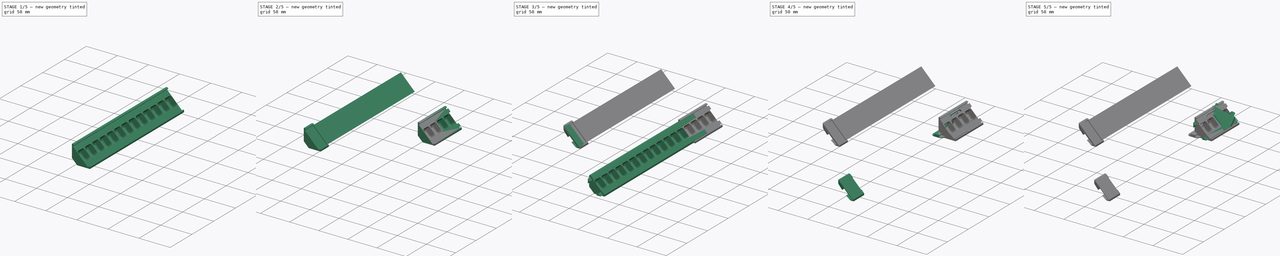
[diagram: build sequence overview — one tinted view per stage of 5, left to right]
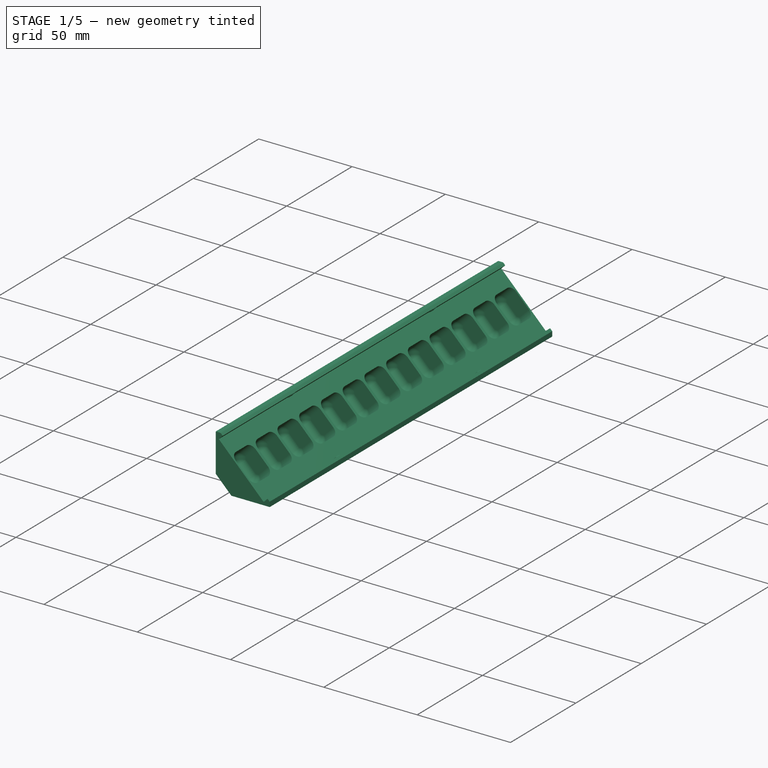
[diagram: stage 1 of 5 — iso view after this stage's code; geometry added in this stage tinted green]
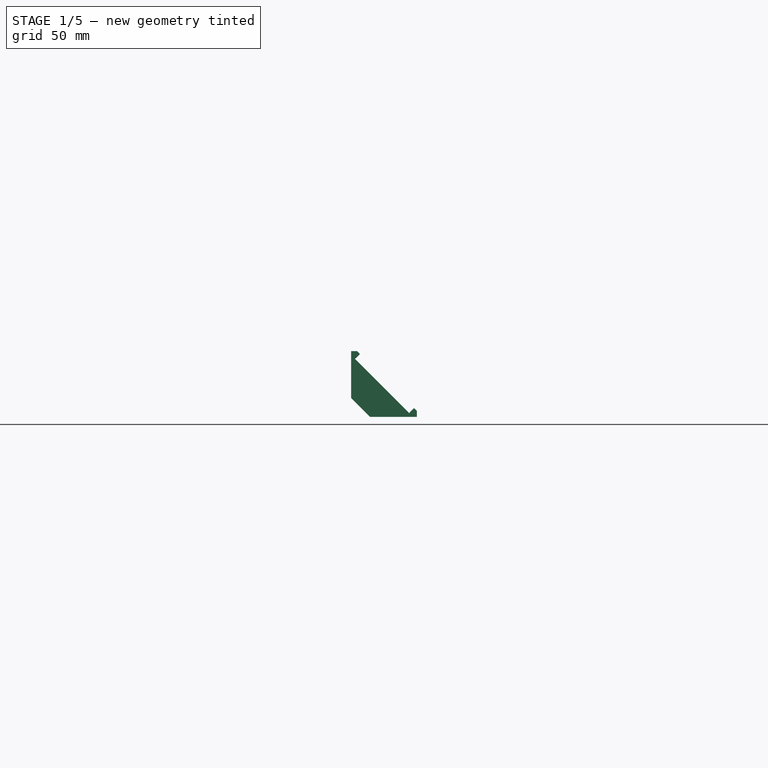
[diagram: stage 1 of 5 — front view after this stage's code; geometry added in this stage tinted green]
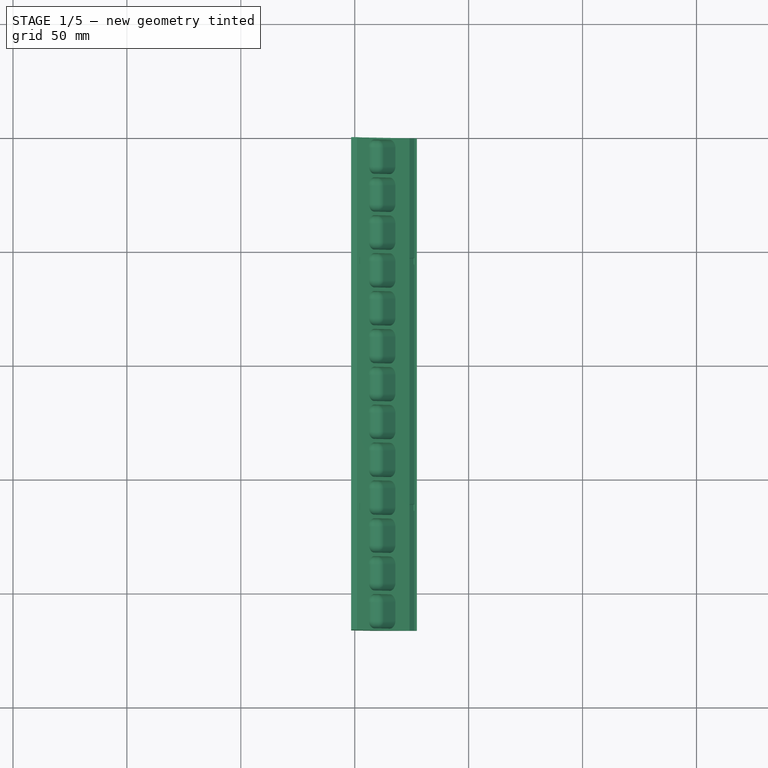
[diagram: stage 1 of 5 — top view after this stage's code; geometry added in this stage tinted green]
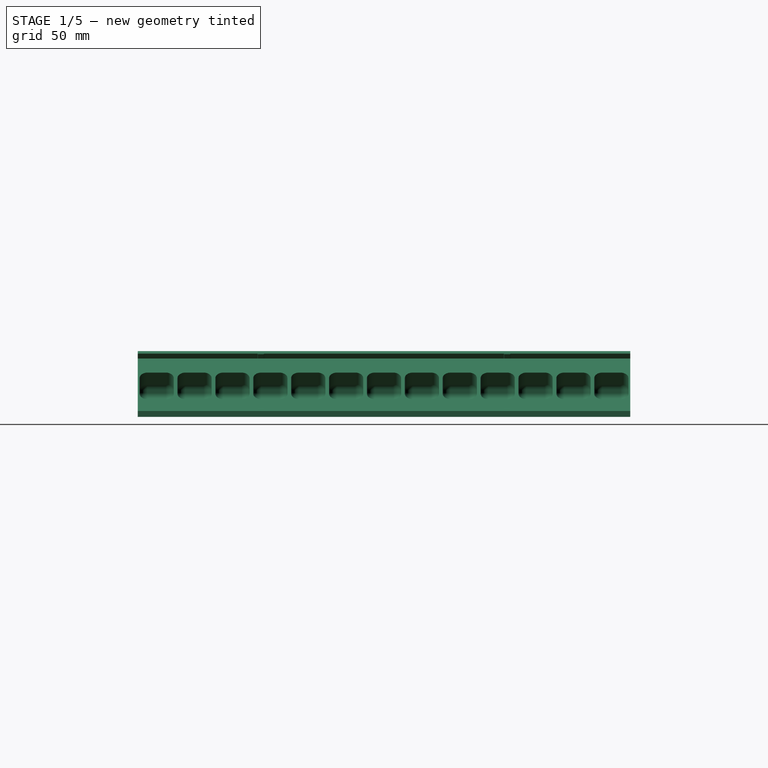
[diagram: stage 1 of 5 — right view after this stage's code; geometry added in this stage tinted green]
FCSTD DOCUMENT  (FreeCAD 1.1R20260325 (Git shallow))
Label: led-strip-mount-and-bracket-v3
License: All rights reserved
objects: Sketcher::SketchObject×45, PartDesign::Pad×23, PartDesign::Pocket×22, PartDesign::Chamfer×17, PartDesign::LinearPattern×13, App::Point×11, PartDesign::Body×11, PartDesign::Fillet×6, PartDesign::SubShapeBinder×4, PartDesign::Mirrored×4, Spreadsheet::Sheet×3, PartDesign::Plane×2, PartDesign::FeatureBase×2, PartDesign::MultiTransform×1
note: 351 computed .brp shape members not serialized (recipe doc carries the construction recipe); baked Part::Feature solids carry a one-line shape summary decoded from their .brp

FEATURE [PartDesign::Body] Body008  label="endcap-left-standard-clone"
  AllowCompound = false
  Group = -> [Clone]
  Origin = -> Origin016
  Placement = pos=(50,216.19,-50) rot=(0,0,1;0rad)
  Tip = -> Clone
  expr: .Placement.Base.y = 249.45 mm - <<globals001>>.led_count * <<globals001>>.led_cell_width
FEATURE [App::Point] Origin019
  Role = Origin
FEATURE [Sketcher::SketchObject] Sketch074
  ArcFitTolerance = 1e-06
  AttachmentSupport = -> [XZ_Plane009]
  ExternalTypes = [0]
  FullyConstrained = true
  MakeInternals = false
  MapMode = 5
  Placement = pos=(0,0,0) rot=(1,0,0;1.5708rad)
  _ExternalGeoVersion = 0
  sketch-geometry (21):
    g0: LineSegment StartX=0 StartY=11.6672 StartZ=0 EndX=0 EndY=7.42462 EndZ=0
    g1: GeomPoint [constr] X=0 Y=0 Z=0
    g2: LineSegment StartX=7.42462 StartY=0 StartZ=0 EndX=11.6673 EndY=0 EndZ=0
    g3: LineSegment StartX=-1.6 StartY=27.2943 StartZ=0 EndX=-1.6 EndY=6.76188 EndZ=0
    g4: LineSegment StartX=6.76188 StartY=-1.6 StartZ=0 EndX=27.2943 EndY=-1.6 EndZ=0
    g5: LineSegment StartX=0 StartY=7.42462 StartZ=0 EndX=7.42462 EndY=0 EndZ=0
    g6: LineSegment [constr] StartX=0 StartY=24.0416 StartZ=0 EndX=24.0416 EndY=0 EndZ=0
    g7: LineSegment [constr] StartX=0 StartY=24.0416 StartZ=0 EndX=2.12132 EndY=26.1629 EndZ=0
    g8: LineSegment [constr] StartX=2.12132 StartY=26.1629 StartZ=0 EndX=26.163 EndY=2.12132 EndZ=0
    g9: LineSegment [constr] StartX=26.163 StartY=2.12132 StartZ=0 EndX=24.0416 EndY=0 EndZ=0
    g10: LineSegment StartX=2.12132 StartY=26.1629 StartZ=0 EndX=0.989949 EndY=27.2943 EndZ=0
    g11: LineSegment StartX=0.989949 StartY=27.2943 StartZ=0 EndX=-1.6 EndY=27.2943 EndZ=0
    g12: LineSegment StartX=0 StartY=24.0416 StartZ=0 EndX=2.12132 EndY=26.1629 EndZ=0
    g13: LineSegment StartX=0 StartY=11.6672 StartZ=0 EndX=6.18719 EndY=17.8544 EndZ=0
    g14: LineSegment StartX=0 StartY=24.0416 StartZ=0 EndX=6.18719 EndY=17.8544 EndZ=0
    g15: LineSegment StartX=11.6673 StartY=0 StartZ=0 EndX=17.8545 EndY=6.18718 EndZ=0
    g16: LineSegment StartX=17.8545 StartY=6.18718 StartZ=0 EndX=24.0416 EndY=0 EndZ=0
    g17: LineSegment StartX=24.0416 StartY=0 StartZ=0 EndX=26.163 EndY=2.12132 EndZ=0
    g18: LineSegment StartX=26.163 StartY=2.12132 StartZ=0 EndX=27.2943 EndY=0.98995 EndZ=0
    g19: LineSegment StartX=27.2943 StartY=0.98995 StartZ=0 EndX=27.2943 EndY=-1.6 EndZ=0
    g20: LineSegment StartX=-1.6 StartY=6.76188 StartZ=0 EndX=6.76188 EndY=-1.6 EndZ=0
  constraints (57):
    c: Vertical(g0)
    c: Coincident(g1,g-1)
    c: Horizontal(g2)
    c: Vertical(g3)
    c: Horizontal(g4)
    c: Distance(g3,g0) = 1.6
    c: Distance(g4,g2) = 1.6
    c: Coincident(g0,g5)
    c: Coincident(g2,g5)
    c: Angle(g5,g-2,g0) = 2.35619
    c: PointOnObject(g2,g-1)
    c: PointOnObject(g0,g-2)
    c: Distance(g5,g5) = 10.5
    c: Parallel(g6,g5)
    c: Coincident(g6,g7)
    c: Coincident(g7,g8)
    c: Coincident(g8,g9)
    c: Coincident(g9,g6)
    c: Distance(g7,g7) = 3
    c: Equal(g7,g9)
    c: Equal(g8,g6)
    c: Angle(g7,g-2,g6) = 0.785398
    c: Coincident(g10,g11)
    c: Horizontal(g11)
    c: Coincident(g3,g11)
    c: Parallel(g10,g8)
    c: Coincident(g12,g10)
    c: Coincident(g10,g7)
    c: Coincident(g13,g0)
    c: PointOnObject(g13,g6)
    c: Coincident(g14,g12)
    c: Coincident(g14,g13)
    c: Perpendicular(g14,g13)
    c: Coincident(g12,g6)
    c: PointOnObject(g6,g-2)
    c: Coincident(g2,g15)
    c: PointOnObject(g15,g6)
    c: Coincident(g15,g16)
    c: PointOnObject(g16,g-1)
    c: Coincident(g16,g17)
    c: Coincident(g17,g8)
    c: Coincident(g17,g18)
    c: Coincident(g18,g19)
    c: Vertical(g19)
    c: Coincident(g19,g4)
    c: Coincident(g6,g16)
    c: Perpendicular(g15,g16)
    c: Parallel(g8,g18)
    c: Distance(g18,g18) = 1.6
    c: Coincident(g20,g3)
    c: Coincident(g20,g4)
    c: Parallel(g5,g20)
    c: Distance(g15,g13) = 16.5
    c: Equal(g14,g16)
    c: Distance(g20,g5) = 1.6
    c: Distance(g17,g12) = 34
    c: Equal(g10,g18)
FEATURE [PartDesign::Pad] Pad021  label="basic-bracket002"
  Direction = (0,-1,2e-16)
  Length = 215.67
  Length2 = 10
  Placement = pos=(0,0,0) rot=(1,0,0;1.5708rad)
  Profile = -> Sketch074
  ReferenceAxis = -> Sketch074 [N_Axis]
  Refine = true
  SideType = 0
  Suppressed = false
  Type = 0
  Type2 = 0
  expr: Length = <<globals-variant>>.led_cell_width * <<globals-variant>>.led_count
FEATURE [Sketcher::SketchObject] Sketch075
  ArcFitTolerance = 1e-06
  ExternalTypes = [0,0]
  FullyConstrained = true
  MakeInternals = false
  MapMode = 5
  Placement = pos=(3.71231,8e-16,3.71231) rot=(0.382683,0,0.92388;3.14159rad)
  _ExternalGeoVersion = 0
  sketch-geometry (8):
    g0: LineSegment StartX=-2.7 StartY=11.015 StartZ=0 EndX=-2.7 EndY=5.615 EndZ=0
    g1: LineSegment StartX=-2.7 StartY=5.615 StartZ=0 EndX=2.7 EndY=5.615 EndZ=0
    g2: LineSegment StartX=2.7 StartY=5.615 StartZ=0 EndX=2.7 EndY=11.015 EndZ=0
    g3: LineSegment StartX=2.7 StartY=11.015 StartZ=0 EndX=-2.7 EndY=11.015 EndZ=0
    g4: LineSegment [constr] StartX=-2.7 StartY=11.015 StartZ=0 EndX=-5.25 EndY=15.83 EndZ=0
    g5: LineSegment [constr] StartX=2.7 StartY=5.615 StartZ=0 EndX=5.25 EndY=0.8 EndZ=0
    g6: LineSegment [constr] StartX=2.7 StartY=11.015 StartZ=0 EndX=5.25 EndY=15.83 EndZ=0
    g7: LineSegment [constr] StartX=-2.7 StartY=5.615 StartZ=0 EndX=-5.25 EndY=0.8 EndZ=0
  constraints (20):
    c: Coincident(g0,g1)
    c: Coincident(g1,g2)
    c: Coincident(g2,g3)
    c: Coincident(g3,g0)
    c: Vertical(g0)
    c: Vertical(g2)
    c: Horizontal(g1)
    c: Horizontal(g3)
    c: DistanceX(g3,g3) = 5.4
    c: Equal(g3,g0)
    c: Coincident(g4,g0)
    c: Coincident(g5,g1)
    c: Coincident(g6,g2)
    c: Coincident(g7,g0)
    c: Equal(g4,g7)
    c: Coincident(g7,g-3)
    c: Coincident(g5,g-4)
    c: Coincident(g4,g-3)
    c: Coincident(g-4,g6)
    c: Equal(g7,g6)
FEATURE [Sketcher::SketchObject] Sketch077
  ArcFitTolerance = 1e-06
  AttachmentOffset = pos=(0,0,215.67) rot=(0,0,1;0rad)
  AttachmentSupport = -> [XZ_Plane009]
  ExternalTypes = [0]
  FullyConstrained = true
  MakeInternals = false
  MapMode = 5
  Placement = pos=(0,-215.67,4.79e-14) rot=(1,0,0;1.5708rad)
  _ExternalGeoVersion = 0
  expr: .AttachmentOffset.Base.z = <<globals-variant>>.led_cell_width * <<globals-variant>>.led_count
  expr: Constraints[14] = <<globals-variant>>.inner_wall_thickness
  expr: Constraints[15] = <<globals-variant>>.inner_wall_thickness
  expr: Constraints[16] = <<globals-variant>>.inner_wall_thickness
  expr: Constraints[17] = <<globals-variant>>.inner_wall_thickness
  expr: Constraints[30] = <<globals-variant>>.gap * 0.55
  expr: Constraints[31] = <<globals-variant>>.gap * 0.55
  expr: Constraints[32] = <<globals-variant>>.gap * 0.55
  expr: Constraints[33] = <<globals-variant>>.gap * 0.55
  expr: Constraints[34] = <<globals-variant>>.gap * 0.55
  expr: Constraints[35] = <<globals-variant>>.gap * 0.55
  sketch-geometry (12):
    g0: LineSegment [constr] StartX=0 StartY=22.1324 StartZ=0 EndX=4.10122 EndY=18.0312 EndZ=0
    g1: LineSegment [constr] StartX=4.10122 StartY=18.0312 StartZ=0 EndX=0 EndY=13.93 EndZ=0
    g2: LineSegment [constr] StartX=0 StartY=13.93 StartZ=0 EndX=0 EndY=22.1324 EndZ=0
    g3: LineSegment [constr] StartX=13.93 StartY=0 StartZ=0 EndX=18.0312 EndY=4.10122 EndZ=0
    g4: LineSegment [constr] StartX=18.0312 StartY=4.10122 StartZ=0 EndX=22.1324 EndY=0 EndZ=0
    g5: LineSegment [constr] StartX=22.1324 StartY=0 StartZ=0 EndX=13.93 EndY=0 EndZ=0
    g6: LineSegment StartX=0.11 StartY=21.8669 StartZ=0 EndX=0.11 EndY=14.1956 EndZ=0
    g7: LineSegment StartX=0.11 StartY=14.1956 StartZ=0 EndX=3.94566 EndY=18.0312 EndZ=0
    g8: LineSegment StartX=3.94566 StartY=18.0312 StartZ=0 EndX=0.11 EndY=21.8669 EndZ=0
    g9: LineSegment StartX=14.1956 StartY=0.11 StartZ=0 EndX=18.0312 EndY=3.94566 EndZ=0
    g10: LineSegment StartX=18.0312 StartY=3.94566 StartZ=0 EndX=21.8669 EndY=0.11 EndZ=0
    g11: LineSegment StartX=21.8669 StartY=0.11 StartZ=0 EndX=14.1956 EndY=0.11 EndZ=0
  constraints (36):
    c: PointOnObject(g0,g-2)
    c: Coincident(g0,g1)
    c: Coincident(g1,g2)
    c: Coincident(g2,g0)
    c: Vertical(g2)
    c: PointOnObject(g3,g-1)
    c: Coincident(g3,g4)
    c: PointOnObject(g4,g-1)
    c: Coincident(g4,g5)
    c: Coincident(g5,g3)
    c: Parallel(g-3,g0)
    c: Parallel(g-4,g1)
    c: Parallel(g3,g-5)
    c: Parallel(g4,g-6)
    c: Distance(g-3,g0) = 1.6
    c: Distance(g-4,g1) = 1.6
    c: Distance(g-5,g3) = 1.6
    c: Distance(g-6,g4) = 1.6
    c: Vertical(g6)
    c: Coincident(g6,g7)
    c: Coincident(g7,g8)
    c: Coincident(g8,g6)
    c: Coincident(g9,g10)
    c: Coincident(g10,g11)
    c: Coincident(g11,g9)
    c: Horizontal(g11)
    c: Parallel(g8,g0)
    c: Parallel(g7,g1)
    c: Parallel(g10,g4)
    c: Parallel(g9,g3)
    c: Distance(g0,g8) = 0.11
    c: Distance(g2,g6) = 0.11
    c: Distance(g1,g7) = 0.11
    c: Distance(g3,g9) = 0.11
    c: Distance(g4,g10) = 0.11
    c: Distance(g5,g11) = 0.11
FEATURE [Sketcher::SketchObject] Sketch078
  ArcFitTolerance = 1e-06
  AttachmentSupport = -> [Pad021]
  ExternalGeometry = -> [Pad021]
  ExternalTypes = [0,0]
  FullyConstrained = true
  MakeInternals = false
  MapMode = 5
  Placement = pos=(12.0208,2.7e-15,12.0208) rot=(0.382683,0,0.92388;3.14159rad)
  _ExternalGeoVersion = 1
  expr: Constraints[20] = <<globals-variant>>.led_cell_width
  sketch-geometry (8):
    g0: LineSegment StartX=8.24998 StartY=0 StartZ=0 EndX=8.24998 EndY=0.8 EndZ=0
    g1: LineSegment StartX=8.24998 StartY=0.8 StartZ=0 EndX=-8.25002 EndY=0.8 EndZ=0
    g2: LineSegment StartX=-8.25002 StartY=0.8 StartZ=0 EndX=-8.25002 EndY=0 EndZ=0
    g3: LineSegment StartX=-8.25002 StartY=0 StartZ=0 EndX=8.24998 EndY=0 EndZ=0
    g4: LineSegment StartX=8.24998 StartY=15.79 StartZ=0 EndX=8.24998 EndY=16.59 EndZ=0
    g5: LineSegment StartX=8.24998 StartY=16.59 StartZ=0 EndX=-8.25002 EndY=16.59 EndZ=0
    g6: LineSegment StartX=-8.25002 StartY=16.59 StartZ=0 EndX=-8.25002 EndY=15.79 EndZ=0
    g7: LineSegment StartX=-8.25002 StartY=15.79 StartZ=0 EndX=8.24998 EndY=15.79 EndZ=0
  constraints (24):
    c: Coincident(g0,g1)
    c: Coincident(g1,g2)
    c: Coincident(g2,g3)
    c: Coincident(g3,g0)
    c: Vertical(g0)
    c: Vertical(g2)
    c: Horizontal(g1)
    c: Horizontal(g3)
    c: DistanceY(g0,g0) = 0.8
    c: Coincident(g4,g5)
    c: Coincident(g5,g6)
    c: Coincident(g6,g7)
    c: Coincident(g7,g4)
    c: Vertical(g4)
    c: Vertical(g6)
    c: Horizontal(g5)
    c: Horizontal(g7)
    c: Equal(g0,g4)
    c: DistanceX(g5,g5) = 16.5
    c: PointOnObject(g0,g-1)
    c: Distance(g3,g5) = 16.59
    c: PointOnObject(g4,g-3)
    c: PointOnObject(g0,g-3)
    c: PointOnObject(g1,g-4)
FEATURE [PartDesign::Pad] Pad022  label="divider-wall002"
  BaseFeature = -> Pad021
  Direction = (0.707106,0,0.707107)
  Length = 1.6
  Length2 = 10
  Placement = pos=(0,0,0) rot=(1,0,0;1.5708rad)
  Profile = -> Sketch078
  ReferenceAxis = -> Sketch078 [N_Axis]
  Refine = true
  Reversed = true
  SideType = 0
  Suppressed = false
  Type = 2
  Type2 = 0
FEATURE [PartDesign::LinearPattern] LinearPattern007  label="wall-repeat002"
  BaseFeature = -> Pad022
  Direction = -> Y_Axis009
  Direction2 = -> Sketch078 [H_Axis]
  Length = 199.08
  Length2 = 100
  Mode = 1
  Mode2 = 0
  Occurrences = 13
  Occurrences2 = 1
  Offset = 16.59
  Offset2 = 100
  Originals = -> [Pad022]
  Placement = pos=(0,0,0) rot=(1,0,0;1.5708rad)
  Refine = true
  Reversed = true
  Reversed2 = false
  SpacingPattern = [16.63]
  SpacingPattern2 = [0]
  Spacings = [-1,-1,-1,-1,-1,-1,-1,-1,-1,-1,-1,-1]
  Suppressed = false
  TransformMode = 0
  expr: Occurrences = <<globals-variant>>.led_count
  expr: Offset = <<globals-variant>>.led_cell_width
FEATURE [PartDesign::Pocket] Pocket023  label="led-enclosure002"
  BaseFeature = -> LinearPattern007
  Direction = (-0.707107,0,-0.707107)
  Length = 5
  Length2 = 5
  Placement = pos=(0,0,0) rot=(1,0,0;1.5708rad)
  Profile = -> Sketch075
  ReferenceAxis = -> Sketch075 [N_Axis]
  Refine = true
  SideType = 0
  Suppressed = false
  Type = 1
  Type2 = 0
FEATURE [PartDesign::LinearPattern] LinearPattern006  label="led-enclosure-linear-pattern002"
  BaseFeature = -> Pocket023
  Direction = -> Y_Axis009
  Direction2 = -> Sketch075 [H_Axis]
  Length = 199.08
  Length2 = 100
  Mode = 1
  Mode2 = 0
  Occurrences = 13
  Occurrences2 = 1
  Offset = 16.59
  Offset2 = 100
  Originals = -> [Pocket023]
  Placement = pos=(0,0,0) rot=(1,0,0;1.5708rad)
  Refine = true
  Reversed = true
  Reversed2 = false
  SpacingPattern = [16.63]
  SpacingPattern2 = [0]
  Spacings = [-1,-1,-1,-1,-1,-1,-1,-1,-1,-1,-1,-1]
  Suppressed = false
  TransformMode = 0
  expr: Occurrences = <<globals-variant>>.led_count
  expr: Offset = <<globals-variant>>.led_cell_width
FEATURE [Sketcher::SketchObject] Sketch076
  ArcFitTolerance = 1e-06
  AttachmentSupport = -> [LinearPattern006]
  ExternalTypes = [0]
  FullyConstrained = true
  MakeInternals = false
  MapMode = 5
  Placement = pos=(0,2e-16,0) rot=(-1,0,0;1.5708rad)
  _ExternalGeoVersion = 0
  expr: Constraints[15] = <<globals-variant>>.inner_wall_thickness
  expr: Constraints[16] = <<globals-variant>>.inner_wall_thickness
  expr: Constraints[17] = <<globals-variant>>.inner_wall_thickness
  expr: Constraints[7] = <<globals-variant>>.inner_wall_thickness
  sketch-geometry (6):
    g0: LineSegment StartX=0 StartY=-13.93 StartZ=0 EndX=4.10122 EndY=-18.0312 EndZ=0
    g1: LineSegment StartX=4.10122 StartY=-18.0312 StartZ=0 EndX=0 EndY=-22.1324 EndZ=0
    g2: LineSegment StartX=0 StartY=-22.1324 StartZ=0 EndX=0 EndY=-13.93 EndZ=0
    g3: LineSegment StartX=13.93 StartY=0 StartZ=0 EndX=18.0312 EndY=-4.10122 EndZ=0
    g4: LineSegment StartX=18.0312 StartY=-4.10122 StartZ=0 EndX=22.1324 EndY=0 EndZ=0
    g5: LineSegment StartX=22.1324 StartY=0 StartZ=0 EndX=13.93 EndY=0 EndZ=0
  constraints (18):
    c: PointOnObject(g0,g-2)
    c: Coincident(g0,g1)
    c: PointOnObject(g1,g-2)
    c: Coincident(g1,g2)
    c: Coincident(g2,g0)
    c: Parallel(g-4,g0)
    c: Parallel(g1,g-3)
    c: Distance(g-3,g1) = 1.6
    c: PointOnObject(g3,g-1)
    c: Coincident(g3,g4)
    c: PointOnObject(g4,g-1)
    c: Coincident(g4,g5)
    c: Coincident(g5,g3)
    c: Parallel(g3,g-7)
    c: Parallel(g4,g-6)
    c: Distance(g3,g-7) = 1.6
    c: Distance(g-6,g4) = 1.6
    c: Distance(g0,g-4) = 1.6
FEATURE [PartDesign::Pocket] Pocket024  label="mating-hole002"
  BaseFeature = -> LinearPattern006
  Direction = (0,-1,-2e-16)
  Length = 7.5
  Length2 = 5
  Placement = pos=(0,0,0) rot=(1,0,0;1.5708rad)
  Profile = -> Sketch076
  ReferenceAxis = -> Sketch076 [N_Axis]
  Refine = true
  SideType = 0
  Suppressed = false
  Type = 0
  Type2 = 0
FEATURE [PartDesign::Pad] Pad023  label="mating-pin005"
  BaseFeature = -> Pocket024
  Direction = (0,-1,2e-16)
  Length = 6
  Length2 = 10
  Placement = pos=(0,0,0) rot=(1,0,0;1.5708rad)
  Profile = -> Sketch077
  ReferenceAxis = -> Sketch077 [N_Axis]
  Refine = true
  SideType = 0
  Suppressed = false
  Type = 0
  Type2 = 0
FEATURE [PartDesign::Chamfer] Chamfer019  label="mating-pin-chamfer005"
  Angle = 45
  Base = -> Pad023 [Edge455,Edge457,Edge458,Edge452,Edge449,Edge451]
  BaseFeature = -> Pad023
  ChamferType = 0
  FlipDirection = false
  Placement = pos=(0,0,0) rot=(1,0,0;1.5708rad)
  Refine = true
  Size = 0.6
  Size2 = 1
  SupportTransform = false
  Suppressed = false
  UseAllEdges = false
FEATURE [PartDesign::Chamfer] Chamfer020  label="mating-hole-chamfer002"
  Angle = 45
  Base = -> Chamfer019 [Edge286,Edge285,Edge287,Edge288,Edge289,Edge290]
  BaseFeature = -> Chamfer019
  ChamferType = 0
  FlipDirection = false
  Placement = pos=(0,0,0) rot=(1,0,0;1.5708rad)
  Refine = true
  Size = 1
  Size2 = 1
  SupportTransform = false
  Suppressed = false
  UseAllEdges = false
FEATURE [Sketcher::SketchObject] Sketch079
  ArcFitTolerance = 1e-06
  AttachmentSupport = -> [Origin018]
  ExternalTypes = [0,0,0,0]
  FullyConstrained = true
  MakeInternals = false
  MapMode = 5
  Placement = pos=(0,0,0) rot=(1,0,0;1.5708rad)
  _ExternalGeoVersion = 1
  sketch-geometry (6):
    g0: LineSegment StartX=-1.6 StartY=10.0673 StartZ=0 EndX=-1.6 EndY=9.02462 EndZ=0
    g1: LineSegment StartX=-1.6 StartY=9.02462 StartZ=0 EndX=-2.12132 EndY=9.54594 EndZ=0
    g2: LineSegment StartX=-2.12132 StartY=9.54594 StartZ=0 EndX=-1.6 EndY=10.0673 EndZ=0
    g3: LineSegment StartX=9.02462 StartY=-1.6 StartZ=0 EndX=10.0673 EndY=-1.6 EndZ=0
    g4: LineSegment StartX=10.0673 StartY=-1.6 StartZ=0 EndX=9.54594 EndY=-2.12132 EndZ=0
    g5: LineSegment StartX=9.54594 StartY=-2.12132 StartZ=0 EndX=9.02462 EndY=-1.6 EndZ=0
  constraints (12):
    c: Coincident(g-3,g0)
    c: Coincident(g0,g-4)
    c: Coincident(g0,g1)
    c: Coincident(g1,g-4)
    c: Coincident(g1,g2)
    c: Coincident(g2,g0)
    c: Coincident(g-5,g3)
    c: Coincident(g3,g-6)
    c: Coincident(g3,g4)
    c: Coincident(g4,g-6)
    c: Coincident(g4,g5)
    c: Coincident(g5,g3)
FEATURE [PartDesign::Pocket] Pocket025
  BaseFeature = -> Chamfer020
  Direction = (0,1,-2e-16)
  Length = 81
  Length2 = 5
  Placement = pos=(0,0,0) rot=(1,0,0;1.5708rad)
  Profile = -> Sketch079
  ReferenceAxis = -> Sketch079 [N_Axis]
  Refine = true
  Reversed = true
  SideType = 0
  Suppressed = false
  Type = 1
  Type2 = 0
FEATURE [Spreadsheet::Sheet] Spreadsheet002  label="globals-variant"
  cells = A1='Inner Wall Thickness; B1(inner_wall_thickness)==1.6 mm; A2='Outer Wall Thickness; B2(outer_wall_thickness)==3.2 mm; A3='Gap; B3(gap)==0.2 mm; A4='LED Cell Width; B4(led_cell_width)==16.59 mm; A5='LED Count; B5(led_count)=13; A6='Saddle Thickness; B6(saddle_thickness)==1.2 mm; A7='Has Mating Pin; B7(has_mating_pin)=0
FEATURE [PartDesign::Fillet] Fillet004
  Base = -> Pocket025 [Edge414,Edge415,Edge418,Edge417,Edge467,Edge410,Edge411,Edge412,Edge407,Edge409,Edge413,Edge468,Edge416,Edge408]
  BaseFeature = -> Pocket025
  Placement = pos=(0,0,0) rot=(1,0,0;1.5708rad)
  Radius = 3.5
  Refine = true
  SupportTransform = false
  Suppressed = false
  UseAllEdges = false
FEATURE [PartDesign::LinearPattern] LinearPattern008
  BaseFeature = -> Fillet004
  Direction = -> Y_Axis009
  Direction2 = -> X_Axis009
  Length = 199.08
  Length2 = 100
  Mode = 0
  Mode2 = 0
  Occurrences = 13
  Occurrences2 = 1
  Offset = 16.59
  Offset2 = 100
  Originals = -> [Fillet004]
  Placement = pos=(0,0,0) rot=(1,0,0;1.5708rad)
  Refine = true
  Reversed = true
  Reversed2 = false
  SpacingPattern = [0]
  SpacingPattern2 = [0]
  Spacings = [-1,-1,-1,-1,-1,-1,-1,-1,-1,-1,-1,-1]
  Suppressed = false
  TransformMode = 0
  expr: Length = <<globals-variant>>.led_cell_width * (<<globals-variant>>.led_count - 1)
  expr: Occurrences = <<globals-variant>>.led_count
FEATURE [Sketcher::SketchObject] Sketch081
  ArcFitTolerance = 1e-06
  ExternalTypes = [0,0]
  FullyConstrained = true
  MakeInternals = false
  MapMode = 5
  Placement = pos=(-1.6,0,0) rot=(0.707107,0,-0.707107;3.14159rad)
  _ExternalGeoVersion = 1
  expr: Constraints[2] = <<globals-variant>>.led_cell_width * 2
  sketch-geometry (1):
    g0: Circle CenterX=-17.7 CenterY=33.18 CenterZ=0 NormalX=0 NormalY=0 NormalZ=1 AngleXU=0 Radius=2.85
  constraints (3):
    c: Diameter(g0) = 5.7
    c: Distance(g0,g-2) = 17.7
    c: Distance(g0,g-1) = 33.18
FEATURE [PartDesign::Pocket] Pocket027
  BaseFeature = -> LinearPattern008
  Direction = (1,1e-16,2e-16)
  Length = 4
  Length2 = 5
  Placement = pos=(0,0,0) rot=(1,0,0;1.5708rad)
  Profile = -> Sketch081
  ReferenceAxis = -> Sketch081 [N_Axis]
  Refine = true
  SideType = 0
  Suppressed = false
  Type = 0
  Type2 = 0
FEATURE [PartDesign::Body] Body012  label="endcap-left-variant-clone"
  AllowCompound = false
  Group = -> [Clone001]
  Origin = -> Origin024
  Placement = pos=(-46,182.41,46) rot=(0,0,1;0rad)
  Tip = -> Clone001
FEATURE [Sketcher::SketchObject] Sketch091
  ArcFitTolerance = 1e-06
  AttachmentSupport = -> [Pocket027]
  ExternalGeometry = -> [Pocket027]
  ExternalTypes = [0,0]
  FullyConstrained = true
  MakeInternals = false
  MapMode = 5
  Placement = pos=(-12.0208,2.7e-15,12.0208) rot=(0.92388,0,0.382684;3.14159rad)
  _ExternalGeoVersion = 1
  expr: Constraints[17] = <<globals-variant>>.led_cell_width * <<globals-variant>>.led_count * 3 / 4
  expr: Constraints[35] = <<globals-variant>>.led_cell_width * <<globals-variant>>.led_count / 4
  sketch-geometry (14):
    g0: LineSegment StartX=17 StartY=163.252 StartZ=0 EndX=17 EndY=160.252 EndZ=0
    g1: LineSegment StartX=17 StartY=160.252 StartZ=0 EndX=20 EndY=160.252 EndZ=0
    g2: LineSegment StartX=20 StartY=160.252 StartZ=0 EndX=20 EndY=163.252 EndZ=0
    g3: LineSegment StartX=20 StartY=163.252 StartZ=0 EndX=17 EndY=163.252 EndZ=0
    g4: LineSegment [constr] StartX=17 StartY=163.252 StartZ=0 EndX=18.5 EndY=161.752 EndZ=0
    g5: LineSegment [constr] StartX=20 StartY=163.252 StartZ=0 EndX=18.5 EndY=161.752 EndZ=0
    g6: LineSegment [constr] StartX=17 StartY=160.252 StartZ=0 EndX=18.5 EndY=161.752 EndZ=0
    g7: LineSegment StartX=17 StartY=55.4175 StartZ=0 EndX=17 EndY=52.4175 EndZ=0
    g8: LineSegment StartX=17 StartY=52.4175 StartZ=0 EndX=20 EndY=52.4175 EndZ=0
    g9: LineSegment StartX=20 StartY=52.4175 StartZ=0 EndX=20 EndY=55.4175 EndZ=0
    g10: LineSegment StartX=20 StartY=55.4175 StartZ=0 EndX=17 EndY=55.4175 EndZ=0
    g11: LineSegment [constr] StartX=17 StartY=55.4175 StartZ=0 EndX=18.5 EndY=53.9175 EndZ=0
    g12: LineSegment [constr] StartX=20 StartY=55.4175 StartZ=0 EndX=18.5 EndY=53.9175 EndZ=0
    g13: LineSegment [constr] StartX=18.5 StartY=53.9175 StartZ=0 EndX=17 EndY=52.4175 EndZ=0
  constraints (38):
    c: Coincident(g0,g1)
    c: Coincident(g1,g2)
    c: Coincident(g2,g3)
    c: Coincident(g3,g0)
    c: Vertical(g0)
    c: Vertical(g2)
    c: Horizontal(g1)
    c: Horizontal(g3)
    c: PointOnObject(g0,g-3)
    c: PointOnObject(g2,g-4)
    c: Coincident(g4,g0)
    c: Coincident(g5,g2)
    c: Coincident(g5,g4)
    c: Coincident(g6,g0)
    c: Coincident(g6,g4)
    c: Equal(g4,g5)
    c: Equal(g4,g6)
    c: Distance(g4,g-1) = 161.752
    c: Coincident(g7,g8)
    c: Coincident(g8,g9)
    c: Coincident(g9,g10)
    c: Coincident(g10,g7)
    c: Vertical(g7)
    c: Vertical(g9)
    c: Horizontal(g8)
    c: Horizontal(g10)
    c: PointOnObject(g7,g-3)
    c: PointOnObject(g8,g-4)
    c: Coincident(g11,g7)
    c: Coincident(g12,g9)
    c: Coincident(g12,g11)
    c: Coincident(g13,g11)
    c: Coincident(g13,g7)
    c: Equal(g11,g12)
    c: Equal(g11,g13)
    c: Distance(g11,g-1) = 53.9175
    c: DistanceY(g9,g9) = 3
    c: Equal(g9,g2)
FEATURE [PartDesign::Pad] Pad029
  BaseFeature = -> Pocket027
  Direction = (0.707107,0,-0.707107)
  Length = 0.25
  Length2 = 10
  Placement = pos=(0,0,0) rot=(1,0,0;1.5708rad)
  Profile = -> Sketch091
  ReferenceAxis = -> Sketch091 [N_Axis]
  Refine = true
  SideType = 0
  Suppressed = false
  TaperAngle = -40
  Type = 0
  Type2 = 0
FEATURE [Sketcher::SketchObject] Sketch092
  ArcFitTolerance = 1e-06
  AttachmentSupport = -> [Pad029]
  ExternalGeometry = -> [Pad029]
  ExternalTypes = [0,0]
  FullyConstrained = true
  MakeInternals = false
  MapMode = 5
  Placement = pos=(12.0208,-2.7e-15,-12.0208) rot=(-0.382684,0,0.92388;3.14159rad)
  _ExternalGeoVersion = 1
  expr: Constraints[17] = <<globals-variant>>.led_cell_width * <<globals-variant>>.led_count * 3 / 4
  expr: Constraints[37] = <<globals-variant>>.led_cell_width * <<globals-variant>>.led_count / 4
  sketch-geometry (14):
    g0: LineSegment StartX=-20 StartY=163.252 StartZ=0 EndX=-20 EndY=160.252 EndZ=0
    g1: LineSegment StartX=-20 StartY=160.252 StartZ=0 EndX=-17 EndY=160.252 EndZ=0
    g2: LineSegment StartX=-17 StartY=160.252 StartZ=0 EndX=-17 EndY=163.252 EndZ=0
    g3: LineSegment StartX=-17 StartY=163.252 StartZ=0 EndX=-20 EndY=163.252 EndZ=0
    g4: LineSegment [constr] StartX=-20 StartY=163.252 StartZ=0 EndX=-18.5 EndY=161.752 EndZ=0
    g5: LineSegment [constr] StartX=-17 StartY=163.252 StartZ=0 EndX=-18.5 EndY=161.752 EndZ=0
    g6: LineSegment [constr] StartX=-18.5 StartY=161.752 StartZ=0 EndX=-20 EndY=160.252 EndZ=0
    g7: LineSegment StartX=-20 StartY=55.4175 StartZ=0 EndX=-20 EndY=52.4175 EndZ=0
    g8: LineSegment StartX=-20 StartY=52.4175 StartZ=0 EndX=-17 EndY=52.4175 EndZ=0
    g9: LineSegment StartX=-17 StartY=52.4175 StartZ=0 EndX=-17 EndY=55.4175 EndZ=0
    g10: LineSegment StartX=-17 StartY=55.4175 StartZ=0 EndX=-20 EndY=55.4175 EndZ=0
    g11: LineSegment [constr] StartX=-17 StartY=55.4175 StartZ=0 EndX=-18.5 EndY=53.9175 EndZ=0
    g12: LineSegment [constr] StartX=-20 StartY=55.4175 StartZ=0 EndX=-18.5 EndY=53.9175 EndZ=0
    g13: LineSegment [constr] StartX=-18.5 StartY=53.9175 StartZ=0 EndX=-20 EndY=52.4175 EndZ=0
  constraints (38):
    c: Coincident(g0,g1)
    c: Coincident(g1,g2)
    c: Coincident(g2,g3)
    c: Coincident(g3,g0)
    c: Vertical(g0)
    c: Vertical(g2)
    c: Horizontal(g1)
    c: Horizontal(g3)
    c: PointOnObject(g0,g-4)
    c: PointOnObject(g1,g-3)
    c: Coincident(g4,g0)
    c: Coincident(g5,g2)
    c: Coincident(g5,g4)
    c: Coincident(g6,g4)
    c: Coincident(g6,g0)
    c: Equal(g4,g5)
    c: Equal(g4,g6)
    c: Distance(g4,g-1) = 161.752
    c: DistanceY(g0,g0) = 3
    c: Coincident(g7,g8)
    c: Coincident(g8,g9)
    c: Coincident(g9,g10)
    c: Coincident(g10,g7)
    c: Vertical(g7)
    c: Vertical(g9)
    c: Horizontal(g8)
    c: Horizontal(g10)
    c: Distance(g8,g10) = 3
    c: PointOnObject(g7,g-4)
    c: PointOnObject(g8,g-3)
    c: Coincident(g11,g9)
    c: Coincident(g12,g7)
    c: Coincident(g12,g11)
    c: Coincident(g13,g11)
    c: Coincident(g13,g7)
    c: Equal(g12,g11)
    c: Equal(g12,g13)
    c: Distance(g11,g-1) = 53.9175
FEATURE [PartDesign::Pad] Pad030
  BaseFeature = -> Pad029
  Direction = (-0.707107,0,0.707107)
  Length = 0.25
  Length2 = 10
  Placement = pos=(0,0,0) rot=(1,0,0;1.5708rad)
  Profile = -> Sketch092
  ReferenceAxis = -> Sketch092 [N_Axis]
  Refine = true
  SideType = 0
  Suppressed = false
  TaperAngle = -40
  Type = 0
  Type2 = 0
FEATURE [PartDesign::Body] Body013  label="diffuser"
  AllowCompound = false
  Group = -> [Binder004,Sketch094,Pad031]
  Origin = -> Origin026
  Tip = -> Pad031
FEATURE [Sketcher::SketchObject] Sketch095
  ArcFitTolerance = 1e-06
  AttachmentSupport = -> [Pad030]
  ExternalGeometry = -> [Pad030]
  ExternalTypes = [0]
  FullyConstrained = true
  MakeInternals = false
  MapMode = 5
  Placement = pos=(12.0208,2.7e-15,12.0208) rot=(0.382683,0,0.92388;3.14159rad)
  _ExternalGeoVersion = 1
  expr: Constraints[13] = 10 mm * <<globals-variant>>.has_mating_pin
  sketch-geometry (5):
    g0: LineSegment StartX=-17 StartY=215.67 StartZ=0 EndX=17 EndY=215.67 EndZ=0
    g1: LineSegment StartX=17 StartY=215.67 StartZ=0 EndX=17 EndY=225.67 EndZ=0
    g2: LineSegment StartX=17 StartY=225.67 StartZ=0 EndX=-17 EndY=225.67 EndZ=0
    g3: LineSegment StartX=-17 StartY=225.67 StartZ=0 EndX=-17 EndY=215.67 EndZ=0
    g4: LineSegment [constr] StartX=-17 StartY=215.67 StartZ=0 EndX=-17 EndY=215.67 EndZ=0
  constraints (14):
    c: Coincident(g0,g1)
    c: Coincident(g1,g2)
    c: Coincident(g2,g3)
    c: Coincident(g3,g0)
    c: Horizontal(g2)
    c: Vertical(g1)
    c: Vertical(g3)
    c: DistanceY(g3,g3) = 10
    c: Horizontal(g0)
    c: Vertical(g-3,g0)
    c: Vertical(g-3,g0)
    c: Coincident(g4,g0)
    c: Coincident(g4,g-3)
    c: DistanceY(g4,g4) = 0
FEATURE [PartDesign::Pocket] Pocket033
  BaseFeature = -> Pad030
  Direction = (-0.707106,0,-0.707107)
  Length = 5
  Length2 = 5
  Placement = pos=(0,0,0) rot=(1,0,0;1.5708rad)
  Profile = -> Sketch095
  ReferenceAxis = -> Sketch095 [N_Axis]
  Refine = true
  SideType = 0
  Suppressed = false
  Type = 1
  Type2 = 0
FEATURE [PartDesign::LinearPattern] LinearPattern012
  BaseFeature = -> Pocket033
  Direction = -> Y_Axis009
  Direction2 = -> Sketch081 [V_Axis]
  Length = 33.18
  Length2 = 100
  Mode = 1
  Mode2 = 0
  Occurrences = 6
  Occurrences2 = 1
  Offset = 33.18
  Offset2 = 100
  Placement = pos=(0,0,0) rot=(1,0,0;1.5708rad)
  Refine = true
  Reversed = true
  Reversed2 = false
  SpacingPattern = [33.26]
  SpacingPattern2 = [0]
  Spacings = [-1,-1,-1,-1,-1]
  Suppressed = false
  TransformMode = 0
  expr: Length = <<globals-variant>>.led_cell_width * 2
  expr: Occurrences = floor(<<globals-variant>>.led_count / 2)
  expr: Offset = <<globals-variant>>.led_cell_width * 2
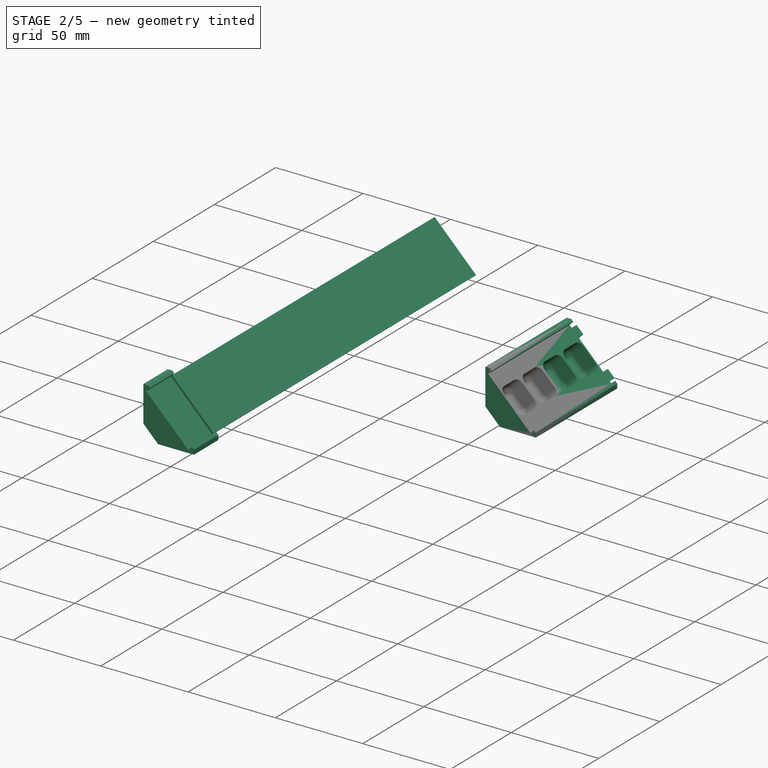
[diagram: stage 2 of 5 — iso view after this stage's code; geometry added in this stage tinted green]
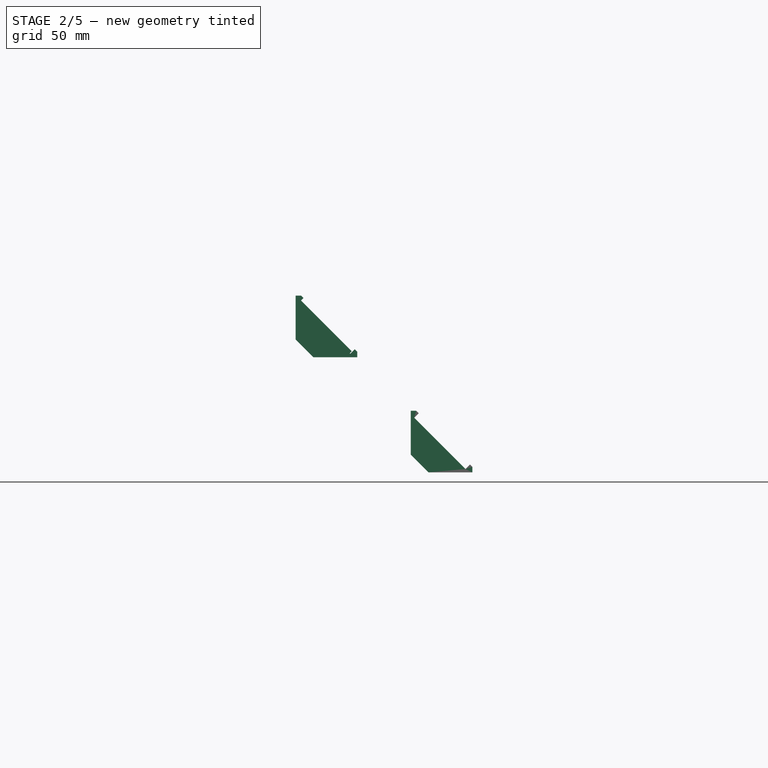
[diagram: stage 2 of 5 — front view after this stage's code; geometry added in this stage tinted green]
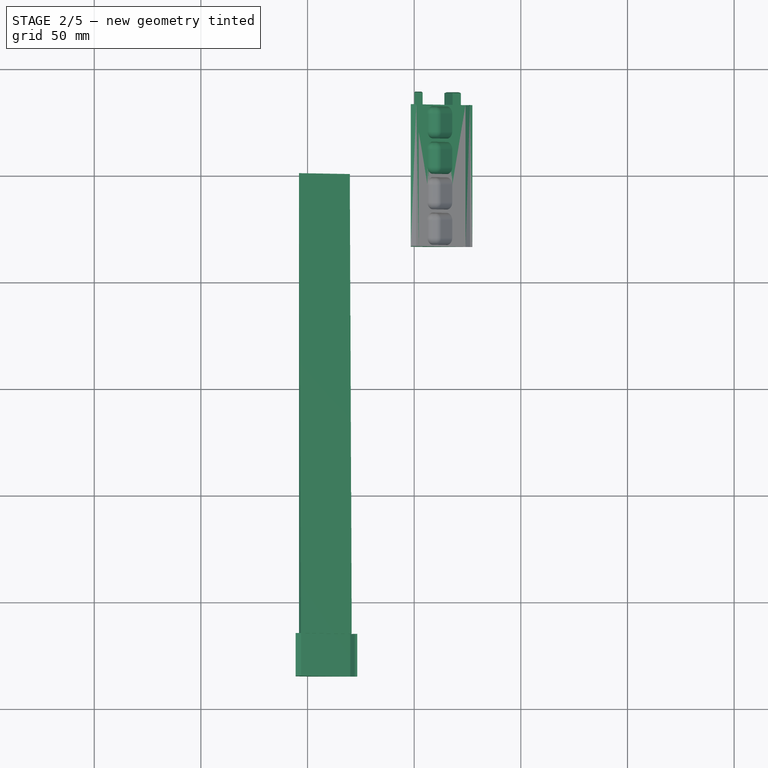
[diagram: stage 2 of 5 — top view after this stage's code; geometry added in this stage tinted green]
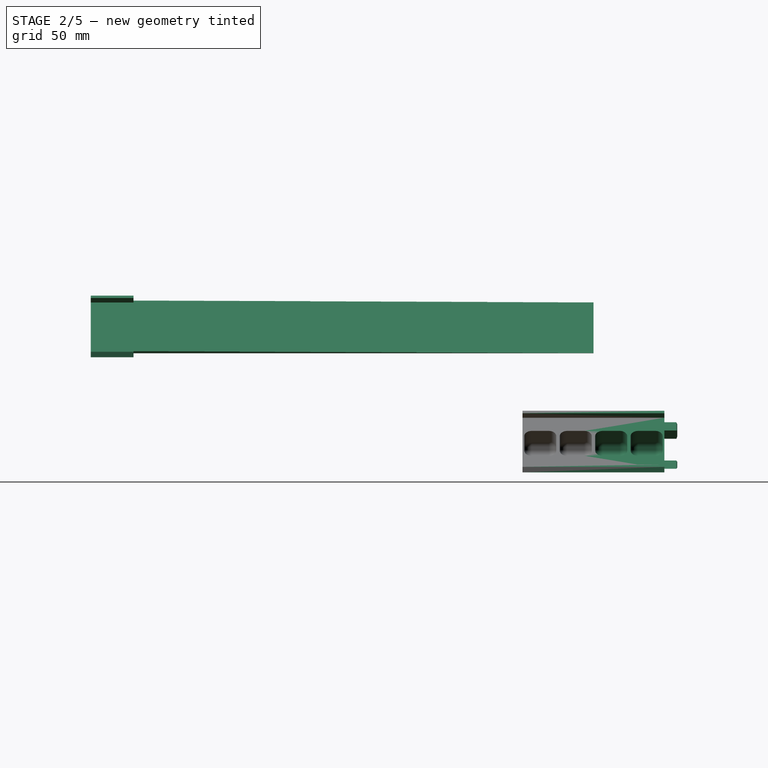
[diagram: stage 2 of 5 — right view after this stage's code; geometry added in this stage tinted green]
FEATURE [App::Point] Origin021  label="Origin024"
  Role = Origin
FEATURE [PartDesign::SubShapeBinder] Binder003
  BindCopyOnChange = 0
  BindMode = 0
  ClaimChildren = false
  Context = -> Body010 [Binder003.]
  Fuse = false
  MakeFace = true
  OffsetFill = false
  OffsetIntersection = false
  OffsetJoinType = 0
  OffsetOpenResult = false
  PartialLoad = false
  Refine = true
  Relative = true
  Support = -> [Body009]
  _Version = 2
FEATURE [Sketcher::SketchObject] Sketch082
  ArcFitTolerance = 1e-06
  AttachmentSupport = -> [Binder003]
  ExternalGeometry = -> [Binder003]
  ExternalTypes = [0,0,0,0,0]
  FullyConstrained = true
  MakeInternals = false
  MapMode = 5
  Placement = pos=(0,-215.67,-4.79e-14) rot=(1,0,0;1.5708rad)
  _ExternalGeoVersion = 1
  sketch-geometry (10):
    g0: LineSegment StartX=-29.9584 StartY=54 StartZ=0 EndX=-27.837 EndY=56.1213 EndZ=0
    g1: LineSegment StartX=-27.837 StartY=56.1213 StartZ=0 EndX=-26.7057 EndY=54.99 EndZ=0
    g2: LineSegment StartX=-26.7057 StartY=54.99 StartZ=0 EndX=-26.7057 EndY=52.4 EndZ=0
    g3: LineSegment StartX=-26.7057 StartY=52.4 StartZ=0 EndX=-47.2381 EndY=52.4 EndZ=0
    g4: LineSegment StartX=-47.2381 StartY=52.4 StartZ=0 EndX=-55.6 EndY=60.7619 EndZ=0
    g5: LineSegment StartX=-55.6 StartY=60.7619 StartZ=0 EndX=-55.6 EndY=81.2943 EndZ=0
    g6: LineSegment StartX=-55.6 StartY=81.2943 StartZ=0 EndX=-53.0101 EndY=81.2943 EndZ=0
    g7: LineSegment StartX=-53.0101 StartY=81.2943 StartZ=0 EndX=-51.8787 EndY=80.1629 EndZ=0
    g8: LineSegment StartX=-51.8787 StartY=80.1629 StartZ=0 EndX=-54 EndY=78.0416 EndZ=0
    g9: LineSegment StartX=-54 StartY=78.0416 StartZ=0 EndX=-29.9584 EndY=54 EndZ=0
  constraints (20):
    c: Coincident(g-3,g0)
    c: Coincident(g0,g-7)
    c: Coincident(g0,g1)
    c: Coincident(g1,g-7)
    c: Coincident(g1,g2)
    c: Coincident(g2,g-6)
    c: Coincident(g2,g3)
    c: Coincident(g3,g-6)
    c: Coincident(g3,g4)
    c: Coincident(g4,g-5)
    c: Coincident(g4,g5)
    c: Coincident(g5,g-5)
    c: Coincident(g5,g6)
    c: Coincident(g6,g-4)
    c: Coincident(g6,g7)
    c: Coincident(g7,g-4)
    c: Coincident(g7,g8)
    c: Coincident(g8,g-3)
    c: Coincident(g8,g9)
    c: Coincident(g9,g0)
FEATURE [PartDesign::Pad] Pad024
  Direction = (0,-1,2e-16)
  Length = 20
  Length2 = 10
  Profile = -> Sketch082
  ReferenceAxis = -> Sketch082 [N_Axis]
  Refine = true
  SideType = 0
  Suppressed = false
  Type = 0
  Type2 = 0
FEATURE [PartDesign::Body] Body010  label="endcap-left-variant"
  AllowCompound = false
  Group = -> [Binder003,Sketch082,Pad024,Sketch083,Pad025,Chamfer021,Sketch084,Pocket028,Chamfer022,Chamfer023]
  Origin = -> Origin020
  Tip = -> Chamfer023
FEATURE [App::Point] Origin023
  Role = Origin
FEATURE [Sketcher::SketchObject] Sketch085
  ArcFitTolerance = 1e-06
  AttachmentSupport = -> [XZ_Plane011]
  ExternalTypes = [0]
  FullyConstrained = true
  MakeInternals = false
  MapMode = 5
  Placement = pos=(0,0,0) rot=(1,0,0;1.5708rad)
  _ExternalGeoVersion = 0
  sketch-geometry (21):
    g0: LineSegment StartX=0 StartY=11.6672 StartZ=0 EndX=0 EndY=7.42462 EndZ=0
    g1: GeomPoint [constr] X=0 Y=0 Z=0
    g2: LineSegment StartX=7.42462 StartY=0 StartZ=0 EndX=11.6673 EndY=0 EndZ=0
    g3: LineSegment StartX=-1.6 StartY=27.2943 StartZ=0 EndX=-1.6 EndY=6.76188 EndZ=0
    g4: LineSegment StartX=6.76188 StartY=-1.6 StartZ=0 EndX=27.2943 EndY=-1.6 EndZ=0
    g5: LineSegment StartX=0 StartY=7.42462 StartZ=0 EndX=7.42462 EndY=9e-16 EndZ=0
    g6: LineSegment [constr] StartX=0 StartY=24.0416 StartZ=0 EndX=24.0416 EndY=0 EndZ=0
    g7: LineSegment [constr] StartX=0 StartY=24.0416 StartZ=0 EndX=2.12132 EndY=26.1629 EndZ=0
    g8: LineSegment [constr] StartX=2.12132 StartY=26.1629 StartZ=0 EndX=26.163 EndY=2.12132 EndZ=0
    g9: LineSegment [constr] StartX=26.163 StartY=2.12132 StartZ=0 EndX=24.0416 EndY=0 EndZ=0
    g10: LineSegment StartX=2.12132 StartY=26.1629 StartZ=0 EndX=0.989949 EndY=27.2943 EndZ=0
    g11: LineSegment StartX=0.989949 StartY=27.2943 StartZ=0 EndX=-1.6 EndY=27.2943 EndZ=0
    g12: LineSegment StartX=0 StartY=24.0416 StartZ=0 EndX=2.12132 EndY=26.1629 EndZ=0
    g13: LineSegment StartX=0 StartY=11.6672 StartZ=0 EndX=6.18719 EndY=17.8544 EndZ=0
    g14: LineSegment StartX=0 StartY=24.0416 StartZ=0 EndX=6.18719 EndY=17.8544 EndZ=0
    g15: LineSegment StartX=11.6673 StartY=0 StartZ=0 EndX=17.8545 EndY=6.18718 EndZ=0
    g16: LineSegment StartX=17.8545 StartY=6.18718 StartZ=0 EndX=24.0416 EndY=0 EndZ=0
    g17: LineSegment StartX=24.0416 StartY=0 StartZ=0 EndX=26.163 EndY=2.12132 EndZ=0
    g18: LineSegment StartX=26.163 StartY=2.12132 StartZ=0 EndX=27.2943 EndY=0.98995 EndZ=0
    g19: LineSegment StartX=27.2943 StartY=0.98995 StartZ=0 EndX=27.2943 EndY=-1.6 EndZ=0
    g20: LineSegment StartX=-1.6 StartY=6.76188 StartZ=0 EndX=6.76188 EndY=-1.6 EndZ=0
  constraints (57):
    c: Vertical(g0)
    c: Coincident(g1,g-1)
    c: Horizontal(g2)
    c: Vertical(g3)
    c: Horizontal(g4)
    c: Distance(g3,g0) = 1.6
    c: Distance(g4,g2) = 1.6
    c: Coincident(g0,g5)
    c: Coincident(g2,g5)
    c: Angle(g5,g-2,g0) = 2.35619
    c: PointOnObject(g2,g-1)
    c: PointOnObject(g0,g-2)
    c: Distance(g5,g5) = 10.5
    c: Parallel(g6,g5)
    c: Coincident(g6,g7)
    c: Coincident(g7,g8)
    c: Coincident(g8,g9)
    c: Coincident(g9,g6)
    c: Distance(g7,g7) = 3
    c: Equal(g7,g9)
    c: Equal(g8,g6)
    c: Angle(g7,g-2,g6) = 0.785398
    c: Coincident(g10,g11)
    c: Horizontal(g11)
    c: Coincident(g3,g11)
    c: Parallel(g10,g8)
    c: Coincident(g12,g10)
    c: Coincident(g10,g7)
    c: Coincident(g13,g0)
    c: PointOnObject(g13,g6)
    c: Coincident(g14,g12)
    c: Coincident(g14,g13)
    c: Perpendicular(g14,g13)
    c: Coincident(g12,g6)
    c: PointOnObject(g6,g-2)
    c: Coincident(g2,g15)
    c: PointOnObject(g15,g6)
    c: Coincident(g15,g16)
    c: PointOnObject(g16,g-1)
    c: Coincident(g16,g17)
    c: Coincident(g17,g8)
    c: Coincident(g17,g18)
    c: Coincident(g18,g19)
    c: Vertical(g19)
    c: Coincident(g19,g4)
    c: Coincident(g6,g16)
    c: Perpendicular(g15,g16)
    c: Parallel(g8,g18)
    c: Distance(g18,g18) = 1.6
    c: Coincident(g20,g3)
    c: Coincident(g20,g4)
    c: Parallel(g5,g20)
    c: Distance(g15,g13) = 16.5
    c: Equal(g14,g16)
    c: Distance(g20,g5) = 1.6
    c: Distance(g17,g12) = 34
    c: Equal(g10,g18)
FEATURE [PartDesign::Pad] Pad026  label="basic-bracket003"
  Direction = (0,-1,2e-16)
  Length = 33.26
  Length2 = 10
  Placement = pos=(0,0,0) rot=(1,0,0;1.5708rad)
  Profile = -> Sketch085
  ReferenceAxis = -> Sketch085 [N_Axis]
  Refine = true
  SideType = 0
  Suppressed = false
  Type = 0
  Type2 = 0
  expr: Length = <<globals001>>.led_cell_width * <<globals001>>.led_count
FEATURE [Sketcher::SketchObject] Sketch086
  ArcFitTolerance = 1e-06
  ExternalTypes = [0,0]
  FullyConstrained = true
  MakeInternals = false
  MapMode = 5
  Placement = pos=(3.71231,8e-16,3.71231) rot=(0.382683,0,0.92388;3.14159rad)
  _ExternalGeoVersion = 0
  sketch-geometry (8):
    g0: LineSegment StartX=-2.7 StartY=11.015 StartZ=0 EndX=-2.7 EndY=5.615 EndZ=0
    g1: LineSegment StartX=-2.7 StartY=5.615 StartZ=0 EndX=2.7 EndY=5.615 EndZ=0
    g2: LineSegment StartX=2.7 StartY=5.615 StartZ=0 EndX=2.7 EndY=11.015 EndZ=0
    g3: LineSegment StartX=2.7 StartY=11.015 StartZ=0 EndX=-2.7 EndY=11.015 EndZ=0
    g4: LineSegment [constr] StartX=-2.7 StartY=11.015 StartZ=0 EndX=-5.25 EndY=15.83 EndZ=0
    g5: LineSegment [constr] StartX=2.7 StartY=5.615 StartZ=0 EndX=5.25 EndY=0.8 EndZ=0
    g6: LineSegment [constr] StartX=2.7 StartY=11.015 StartZ=0 EndX=5.25 EndY=15.83 EndZ=0
    g7: LineSegment [constr] StartX=-2.7 StartY=5.615 StartZ=0 EndX=-5.25 EndY=0.8 EndZ=0
  constraints (20):
    c: Coincident(g0,g1)
    c: Coincident(g1,g2)
    c: Coincident(g2,g3)
    c: Coincident(g3,g0)
    c: Vertical(g0)
    c: Vertical(g2)
    c: Horizontal(g1)
    c: Horizontal(g3)
    c: DistanceX(g3,g3) = 5.4
    c: Equal(g3,g0)
    c: Coincident(g4,g0)
    c: Coincident(g5,g1)
    c: Coincident(g6,g2)
    c: Coincident(g7,g0)
    c: Equal(g4,g7)
    c: Coincident(g7,g-3)
    c: Coincident(g5,g-4)
    c: Coincident(g4,g-3)
    c: Coincident(g-4,g6)
    c: Equal(g7,g6)
FEATURE [Sketcher::SketchObject] Sketch089
  ArcFitTolerance = 1e-06
  AttachmentSupport = -> [Pad026]
  ExternalTypes = [0,0]
  FullyConstrained = true
  MakeInternals = false
  MapMode = 5
  Placement = pos=(12.0208,5.3e-15,12.0208) rot=(0.382683,0,0.92388;3.14159rad)
  _ExternalGeoVersion = 1
  expr: Constraints[20] = <<globals001>>.led_cell_width
  sketch-geometry (8):
    g0: LineSegment StartX=8.24998 StartY=0 StartZ=0 EndX=8.24998 EndY=0.8 EndZ=0
    g1: LineSegment StartX=8.24998 StartY=0.8 StartZ=0 EndX=-8.25002 EndY=0.8 EndZ=0
    g2: LineSegment StartX=-8.25002 StartY=0.8 StartZ=0 EndX=-8.25002 EndY=0 EndZ=0
    g3: LineSegment StartX=-8.25002 StartY=0 StartZ=0 EndX=8.24998 EndY=0 EndZ=0
    g4: LineSegment StartX=8.24998 StartY=15.83 StartZ=0 EndX=8.24998 EndY=16.63 EndZ=0
    g5: LineSegment StartX=8.24998 StartY=16.63 StartZ=0 EndX=-8.25002 EndY=16.63 EndZ=0
    g6: LineSegment StartX=-8.25002 StartY=16.63 StartZ=0 EndX=-8.25002 EndY=15.83 EndZ=0
    g7: LineSegment StartX=-8.25002 StartY=15.83 StartZ=0 EndX=8.24998 EndY=15.83 EndZ=0
  constraints (24):
    c: Coincident(g0,g1)
    c: Coincident(g1,g2)
    c: Coincident(g2,g3)
    c: Coincident(g3,g0)
    c: Vertical(g0)
    c: Vertical(g2)
    c: Horizontal(g1)
    c: Horizontal(g3)
    c: DistanceY(g0,g0) = 0.8
    c: Coincident(g4,g5)
    c: Coincident(g5,g6)
    c: Coincident(g6,g7)
    c: Coincident(g7,g4)
    c: Vertical(g4)
    c: Vertical(g6)
    c: Horizontal(g5)
    c: Horizontal(g7)
    c: Equal(g0,g4)
    c: DistanceX(g5,g5) = 16.5
    c: PointOnObject(g0,g-1)
    c: Distance(g3,g5) = 16.63
    c: PointOnObject(g4,g-3)
    c: PointOnObject(g0,g-3)
    c: PointOnObject(g1,g-4)
FEATURE [PartDesign::Pad] Pad027  label="divider-wall003"
  BaseFeature = -> Pad026
  Direction = (0.707106,0,0.707107)
  Length = 1.6
  Length2 = 10
  Placement = pos=(0,0,0) rot=(1,0,0;1.5708rad)
  Profile = -> Sketch089
  ReferenceAxis = -> Sketch089 [N_Axis]
  Refine = true
  Reversed = true
  SideType = 0
  Suppressed = false
  Type = 2
  Type2 = 0
FEATURE [PartDesign::LinearPattern] LinearPattern010  label="wall-repeat003"
  BaseFeature = -> Pad027
  Direction = -> Y_Axis011
  Direction2 = -> Sketch089 [H_Axis]
  Length = 16.63
  Length2 = 100
  Mode = 1
  Mode2 = 0
  Occurrences = 2
  Occurrences2 = 1
  Offset = 16.63
  Offset2 = 100
  Originals = -> [Pad027]
  Placement = pos=(0,0,0) rot=(1,0,0;1.5708rad)
  Refine = true
  Reversed = true
  Reversed2 = false
  SpacingPattern = [16.63]
  SpacingPattern2 = [0]
  Spacings = [-1]
  Suppressed = false
  TransformMode = 0
  expr: Occurrences = <<globals001>>.led_count
  expr: Offset = <<globals001>>.led_cell_width
FEATURE [PartDesign::Pocket] Pocket029  label="led-enclosure003"
  BaseFeature = -> LinearPattern010
  Direction = (-0.707107,0,-0.707107)
  Length = 5
  Length2 = 5
  Placement = pos=(0,0,0) rot=(1,0,0;1.5708rad)
  Profile = -> Sketch086
  ReferenceAxis = -> Sketch086 [N_Axis]
  Refine = true
  SideType = 0
  Suppressed = false
  Type = 1
  Type2 = 0
FEATURE [PartDesign::LinearPattern] LinearPattern009  label="led-enclosure-linear-pattern003"
  BaseFeature = -> Pocket029
  Direction = -> Y_Axis011
  Direction2 = -> Sketch086 [H_Axis]
  Length = 16.63
  Length2 = 100
  Mode = 1
  Mode2 = 0
  Occurrences = 2
  Occurrences2 = 1
  Offset = 16.63
  Offset2 = 100
  Originals = -> [Pocket029]
  Placement = pos=(0,0,0) rot=(1,0,0;1.5708rad)
  Refine = true
  Reversed = true
  Reversed2 = false
  SpacingPattern = [16.63]
  SpacingPattern2 = [0]
  Spacings = [-1]
  Suppressed = false
  TransformMode = 0
  expr: Occurrences = <<globals001>>.led_count
  expr: Offset = <<globals001>>.led_cell_width
FEATURE [Sketcher::SketchObject] Sketch087
  ArcFitTolerance = 1e-06
  AttachmentSupport = -> [LinearPattern009]
  ExternalTypes = [0]
  FullyConstrained = true
  MakeInternals = false
  MapMode = 5
  Placement = pos=(0,2e-16,0) rot=(-1,0,0;1.5708rad)
  _ExternalGeoVersion = 0
  expr: Constraints[15] = <<globals001>>.inner_wall_thickness
  expr: Constraints[16] = <<globals001>>.inner_wall_thickness
  expr: Constraints[17] = <<globals001>>.inner_wall_thickness
  expr: Constraints[7] = <<globals001>>.inner_wall_thickness
  sketch-geometry (6):
    g0: LineSegment StartX=0 StartY=-13.93 StartZ=0 EndX=4.10122 EndY=-18.0312 EndZ=0
    g1: LineSegment StartX=4.10122 StartY=-18.0312 StartZ=0 EndX=0 EndY=-22.1324 EndZ=0
    g2: LineSegment StartX=0 StartY=-22.1324 StartZ=0 EndX=0 EndY=-13.93 EndZ=0
    g3: LineSegment StartX=13.93 StartY=0 StartZ=0 EndX=18.0312 EndY=-4.10122 EndZ=0
    g4: LineSegment StartX=18.0312 StartY=-4.10122 StartZ=0 EndX=22.1324 EndY=0 EndZ=0
    g5: LineSegment StartX=22.1324 StartY=0 StartZ=0 EndX=13.93 EndY=0 EndZ=0
  constraints (18):
    c: PointOnObject(g0,g-2)
    c: Coincident(g0,g1)
    c: PointOnObject(g1,g-2)
    c: Coincident(g1,g2)
    c: Coincident(g2,g0)
    c: Parallel(g-4,g0)
    c: Parallel(g1,g-3)
    c: Distance(g-3,g1) = 1.6
    c: PointOnObject(g3,g-1)
    c: Coincident(g3,g4)
    c: PointOnObject(g4,g-1)
    c: Coincident(g4,g5)
    c: Coincident(g5,g3)
    c: Parallel(g3,g-7)
    c: Parallel(g4,g-6)
    c: Distance(g3,g-7) = 1.6
    c: Distance(g-6,g4) = 1.6
    c: Distance(g0,g-4) = 1.6
FEATURE [PartDesign::Pocket] Pocket030  label="mating-hole003"
  BaseFeature = -> LinearPattern009
  Direction = (0,-1,-2e-16)
  Length = 7.5
  Length2 = 5
  Placement = pos=(0,0,0) rot=(1,0,0;1.5708rad)
  Profile = -> Sketch087
  ReferenceAxis = -> Sketch087 [N_Axis]
  Refine = true
  SideType = 0
  Suppressed = false
  Type = 0
  Type2 = 0
FEATURE [Sketcher::SketchObject] Sketch088
  ArcFitTolerance = 1e-06
  AttachmentSupport = -> [Pocket030]
  ExternalTypes = [0]
  FullyConstrained = true
  MakeInternals = false
  MapMode = 5
  Placement = pos=(0,-33.26,1.63e-14) rot=(1,0,0;1.5708rad)
  _ExternalGeoVersion = 0
  expr: .Placement.Base.y = <<globals001>>.led_cell_width * <<globals001>>.led_count
  expr: Constraints[14] = <<globals001>>.inner_wall_thickness
  expr: Constraints[15] = <<globals001>>.inner_wall_thickness
  expr: Constraints[16] = <<globals001>>.inner_wall_thickness
  expr: Constraints[17] = <<globals001>>.inner_wall_thickness
  expr: Constraints[30] = <<globals001>>.gap / 2
  expr: Constraints[31] = <<globals001>>.gap / 2
  expr: Constraints[32] = <<globals001>>.gap / 2
  expr: Constraints[33] = <<globals001>>.gap / 2
  expr: Constraints[34] = <<globals001>>.gap / 2
  expr: Constraints[35] = <<globals001>>.gap / 2
  sketch-geometry (12):
    g0: LineSegment [constr] StartX=0 StartY=22.1324 StartZ=0 EndX=4.10122 EndY=18.0312 EndZ=0
    g1: LineSegment [constr] StartX=4.10122 StartY=18.0312 StartZ=0 EndX=0 EndY=13.93 EndZ=0
    g2: LineSegment [constr] StartX=0 StartY=13.93 StartZ=0 EndX=0 EndY=22.1324 EndZ=0
    g3: LineSegment [constr] StartX=13.93 StartY=0 StartZ=0 EndX=18.0312 EndY=4.10122 EndZ=0
    g4: LineSegment [constr] StartX=18.0312 StartY=4.10122 StartZ=0 EndX=22.1324 EndY=0 EndZ=0
    g5: LineSegment [constr] StartX=22.1324 StartY=0 StartZ=0 EndX=13.93 EndY=0 EndZ=0
    g6: LineSegment StartX=0.1 StartY=21.891 StartZ=0 EndX=0.1 EndY=14.1714 EndZ=0
    g7: LineSegment StartX=0.1 StartY=14.1714 StartZ=0 EndX=3.9598 EndY=18.0312 EndZ=0
    g8: LineSegment StartX=3.9598 StartY=18.0312 StartZ=0 EndX=0.1 EndY=21.891 EndZ=0
    g9: LineSegment StartX=14.1714 StartY=0.1 StartZ=0 EndX=18.0312 EndY=3.9598 EndZ=0
    g10: LineSegment StartX=18.0312 StartY=3.9598 StartZ=0 EndX=21.891 EndY=0.1 EndZ=0
    g11: LineSegment StartX=21.891 StartY=0.1 StartZ=0 EndX=14.1714 EndY=0.1 EndZ=0
  constraints (36):
    c: PointOnObject(g0,g-2)
    c: Coincident(g0,g1)
    c: Coincident(g1,g2)
    c: Coincident(g2,g0)
    c: Vertical(g2)
    c: PointOnObject(g3,g-1)
    c: Coincident(g3,g4)
    c: PointOnObject(g4,g-1)
    c: Coincident(g4,g5)
    c: Coincident(g5,g3)
    c: Parallel(g-3,g0)
    c: Parallel(g-4,g1)
    c: Parallel(g3,g-5)
    c: Parallel(g4,g-6)
    c: Distance(g-3,g0) = 1.6
    c: Distance(g-4,g1) = 1.6
    c: Distance(g-5,g3) = 1.6
    c: Distance(g-6,g4) = 1.6
    c: Vertical(g6)
    c: Coincident(g6,g7)
    c: Coincident(g7,g8)
    c: Coincident(g8,g6)
    c: Coincident(g9,g10)
    c: Coincident(g10,g11)
    c: Coincident(g11,g9)
    c: Horizontal(g11)
    c: Parallel(g8,g0)
    c: Parallel(g7,g1)
    c: Parallel(g10,g4)
    c: Parallel(g9,g3)
    c: Distance(g0,g8) = 0.1
    c: Distance(g2,g6) = 0.1
    c: Distance(g1,g7) = 0.1
    c: Distance(g3,g9) = 0.1
    c: Distance(g4,g10) = 0.1
    c: Distance(g5,g11) = 0.1
FEATURE [PartDesign::Pad] Pad028  label="mating-pin006"
  BaseFeature = -> Pocket030
  Direction = (0,-1,2e-16)
  Length = 6
  Length2 = 10
  Placement = pos=(0,0,0) rot=(1,0,0;1.5708rad)
  Profile = -> Sketch088
  ReferenceAxis = -> Sketch088 [N_Axis]
  Refine = true
  SideType = 0
  Suppressed = false
  Type = 0
  Type2 = 0
FEATURE [PartDesign::Chamfer] Chamfer024  label="mating-pin-chamfer006"
  Angle = 45
  Base = -> Pad028 [Edge150,Edge149,Edge147,Edge143,Edge144,Edge141]
  BaseFeature = -> Pad028
  ChamferType = 0
  FlipDirection = false
  Placement = pos=(0,0,0) rot=(1,0,0;1.5708rad)
  Refine = true
  Size = 0.4
  Size2 = 1
  SupportTransform = false
  Suppressed = false
  UseAllEdges = false
FEATURE [PartDesign::Chamfer] Chamfer025  label="mating-hole-chamfer003"
  Angle = 45
  Base = -> Chamfer024 [Edge111,Edge110,Edge109,Edge114,Edge113,Edge112]
  BaseFeature = -> Chamfer024
  ChamferType = 0
  FlipDirection = false
  Placement = pos=(0,0,0) rot=(1,0,0;1.5708rad)
  Refine = true
  Size = 0.4
  Size2 = 1
  SupportTransform = false
  Suppressed = false
  UseAllEdges = false
FEATURE [Sketcher::SketchObject] Sketch090
  ArcFitTolerance = 1e-06
  AttachmentSupport = -> [Origin022]
  ExternalTypes = [0,0,0,0]
  FullyConstrained = true
  MakeInternals = false
  MapMode = 5
  Placement = pos=(0,0,0) rot=(1,0,0;1.5708rad)
  _ExternalGeoVersion = 1
  sketch-geometry (6):
    g0: LineSegment StartX=-1.6 StartY=10.0673 StartZ=0 EndX=-1.6 EndY=9.02462 EndZ=0
    g1: LineSegment StartX=-1.6 StartY=9.02462 StartZ=0 EndX=-2.12132 EndY=9.54594 EndZ=0
    g2: LineSegment StartX=-2.12132 StartY=9.54594 StartZ=0 EndX=-1.6 EndY=10.0673 EndZ=0
    g3: LineSegment StartX=9.02462 StartY=-1.6 StartZ=0 EndX=10.0673 EndY=-1.6 EndZ=0
    g4: LineSegment StartX=10.0673 StartY=-1.6 StartZ=0 EndX=9.54594 EndY=-2.12132 EndZ=0
    g5: LineSegment StartX=9.54594 StartY=-2.12132 StartZ=0 EndX=9.02462 EndY=-1.6 EndZ=0
  constraints (12):
    c: Coincident(g-3,g0)
    c: Coincident(g0,g-4)
    c: Coincident(g0,g1)
    c: Coincident(g1,g-4)
    c: Coincident(g1,g2)
    c: Coincident(g2,g0)
    c: Coincident(g-5,g3)
    c: Coincident(g3,g-6)
    c: Coincident(g3,g4)
    c: Coincident(g4,g-6)
    c: Coincident(g4,g5)
    c: Coincident(g5,g3)
FEATURE [PartDesign::Pocket] Pocket031
  BaseFeature = -> Chamfer025
  Direction = (0,1,-2e-16)
  Length = 81
  Length2 = 5
  Placement = pos=(0,0,0) rot=(1,0,0;1.5708rad)
  Profile = -> Sketch090
  ReferenceAxis = -> Sketch090 [N_Axis]
  Refine = true
  Reversed = true
  SideType = 0
  Suppressed = false
  Type = 1
  Type2 = 0
FEATURE [PartDesign::Fillet] Fillet005
  Base = -> Pocket031 [Edge100,Edge101,Edge108,Edge138,Edge109,Edge110,Edge137,Edge99,Edge105,Edge104,Edge103,Edge106,Edge107,Edge102]
  BaseFeature = -> Pocket031
  Placement = pos=(0,0,0) rot=(1,0,0;1.5708rad)
  Radius = 3.5
  Refine = true
  SupportTransform = false
  Suppressed = false
  UseAllEdges = false
FEATURE [PartDesign::LinearPattern] LinearPattern011
  BaseFeature = -> Fillet005
  Direction = -> Y_Axis011
  Direction2 = -> X_Axis011
  Length = 16.63
  Length2 = 100
  Mode = 0
  Mode2 = 0
  Occurrences = 2
  Occurrences2 = 1
  Offset = 16.63
  Offset2 = 100
  Originals = -> [Fillet005]
  Placement = pos=(0,0,0) rot=(1,0,0;1.5708rad)
  Refine = true
  Reversed = true
  Reversed2 = false
  SpacingPattern = [0]
  SpacingPattern2 = [0]
  Spacings = [-1]
  Suppressed = false
  TransformMode = 0
  expr: Length = <<globals001>>.led_cell_width
  expr: Occurrences = <<globals001>>.led_count
FEATURE [PartDesign::Mirrored] Mirrored002
  BaseFeature = -> LinearPattern011
  MirrorPlane = -> XZ_Plane011
  Originals = -> [LinearPattern011]
  Placement = pos=(0,0,0) rot=(1,0,0;1.5708rad)
  Refine = true
  Suppressed = false
  TransformMode = 1
FEATURE [Sketcher::SketchObject] Sketch093
  ArcFitTolerance = 1e-06
  AttachmentSupport = -> [Mirrored002]
  ExternalGeometry = -> [Mirrored002]
  ExternalTypes = [0]
  FullyConstrained = false
  MakeInternals = false
  MapMode = 5
  Placement = pos=(0.1,0,0) rot=(0.707107,0,-0.707107;3.14159rad)
  _ExternalGeoVersion = 1
  sketch-geometry (4):
    g0: LineSegment StartX=-27.2943 StartY=33.26 StartZ=0 EndX=1.5238 EndY=33.26 EndZ=0
    g1: LineSegment StartX=1.5238 StartY=33.26 StartZ=0 EndX=1.5238 EndY=39.7568 EndZ=0
    g2: LineSegment StartX=1.5238 StartY=39.7568 StartZ=0 EndX=-27.2943 EndY=39.7568 EndZ=0
    g3: LineSegment StartX=-27.2943 StartY=39.7568 StartZ=0 EndX=-27.2943 EndY=33.26 EndZ=0
  constraints (9):
    c: Coincident(g0,g1)
    c: Coincident(g1,g2)
    c: Coincident(g2,g3)
    c: Coincident(g3,g0)
    c: Horizontal(g0)
    c: Horizontal(g2)
    c: Vertical(g1)
    c: Vertical(g3)
    c: Coincident(g0,g-3)
FEATURE [PartDesign::Pocket] Pocket032
  BaseFeature = -> Mirrored002
  Direction = (1,0,2e-16)
  Length = 5
  Length2 = 5
  Placement = pos=(0,0,0) rot=(1,0,0;1.5708rad)
  Profile = -> Sketch093
  ReferenceAxis = -> Sketch093 [N_Axis]
  Refine = true
  SideType = 0
  Suppressed = false
  Type = 1
  Type2 = 0
FEATURE [PartDesign::Body] Body011  label="bracket-mirrored-variant"
  AllowCompound = true
  Group = -> [Sketch085,Pad026,Sketch089,Pad027,LinearPattern010,Sketch086,Pocket029,LinearPattern009,Sketch087,Pocket030,Sketch088,Pad028,Chamfer024,Chamfer025,Sketch090,Pocket031,Fillet005,LinearPattern011,Mirrored002,Sketch093,Pocket032]
  Origin = -> Origin022
  Placement = pos=(-100,0,100) rot=(0,0,1;0rad)
  Tip = -> Pocket032
FEATURE [App::Point] Origin027  label="Origin031"
  Role = Origin
FEATURE [PartDesign::SubShapeBinder] Binder004
  BindCopyOnChange = 0
  BindMode = 0
  ClaimChildren = false
  Context = -> Body013 [Binder004.]
  Fuse = false
  MakeFace = true
  OffsetFill = false
  OffsetIntersection = false
  OffsetJoinType = 0
  OffsetOpenResult = false
  PartialLoad = false
  Refine = true
  Relative = true
  Support = -> [Body009]
  _Version = 2
FEATURE [Sketcher::SketchObject] Sketch094
  ArcFitTolerance = 1e-06
  AttachmentSupport = -> [Binder004]
  ExternalGeometry = -> [Binder004]
  ExternalTypes = [0,0]
  FullyConstrained = true
  MakeInternals = false
  MapMode = 5
  Placement = pos=(-66.0208,1.47e-14,66.0208) rot=(0.678598,0.678598,0.281085;2.59356rad)
  _ExternalGeoVersion = 1
  expr: Constraints[3] = <<globals-variant>>.led_cell_width
  sketch-geometry (28):
    g0: LineSegment StartX=-1.13e-14 StartY=17 StartZ=0 EndX=0 EndY=17.1 EndZ=0
    g1: LineSegment StartX=0 StartY=17.1 StartZ=0 EndX=-16.59 EndY=17.1 EndZ=0
    g2: LineSegment StartX=-1.13e-14 StartY=17 StartZ=0 EndX=-215.67 EndY=17 EndZ=0
    g3: LineSegment StartX=-16.59 StartY=17.1 StartZ=0 EndX=-16.59 EndY=17.2 EndZ=0
    g4: LineSegment StartX=-16.59 StartY=17.2 StartZ=0 EndX=-33.18 EndY=17.2 EndZ=0
    g5: LineSegment StartX=-33.18 StartY=17.2 StartZ=0 EndX=-33.18 EndY=17.3 EndZ=0
    g6: LineSegment StartX=-33.18 StartY=17.3 StartZ=0 EndX=-49.77 EndY=17.3 EndZ=0
    g7: LineSegment StartX=-49.77 StartY=17.3 StartZ=0 EndX=-49.77 EndY=17.4 EndZ=0
    g8: LineSegment StartX=-49.77 StartY=17.4 StartZ=0 EndX=-66.36 EndY=17.4 EndZ=0
    g9: LineSegment StartX=-66.36 StartY=17.4 StartZ=0 EndX=-66.36 EndY=17.5 EndZ=0
    g10: LineSegment StartX=-66.36 StartY=17.5 StartZ=0 EndX=-82.95 EndY=17.5 EndZ=0
    g11: LineSegment StartX=-82.95 StartY=17.5 StartZ=0 EndX=-82.95 EndY=17.6 EndZ=0
    g12: LineSegment StartX=-82.95 StartY=17.6 StartZ=0 EndX=-99.54 EndY=17.6 EndZ=0
    g13: LineSegment StartX=-99.54 StartY=17.6 StartZ=0 EndX=-99.54 EndY=17.7 EndZ=0
    g14: LineSegment StartX=-99.54 StartY=17.7 StartZ=0 EndX=-116.13 EndY=17.7 EndZ=0
    g15: LineSegment StartX=-116.13 StartY=17.7 StartZ=0 EndX=-116.13 EndY=17.8 EndZ=0
    g16: LineSegment StartX=-116.13 StartY=17.8 StartZ=0 EndX=-132.72 EndY=17.8 EndZ=0
    g17: LineSegment StartX=-132.72 StartY=17.8 StartZ=0 EndX=-132.72 EndY=17.9 EndZ=0
    g18: LineSegment StartX=-132.72 StartY=17.9 StartZ=0 EndX=-149.31 EndY=17.9 EndZ=0
    g19: LineSegment StartX=-149.31 StartY=17.9 StartZ=0 EndX=-149.31 EndY=18 EndZ=0
    g20: LineSegment StartX=-149.31 StartY=18 StartZ=0 EndX=-165.9 EndY=18 EndZ=0
    g21: LineSegment StartX=-165.9 StartY=18 StartZ=0 EndX=-165.9 EndY=18.1 EndZ=0
    g22: LineSegment StartX=-165.9 StartY=18.1 StartZ=0 EndX=-182.49 EndY=18.1 EndZ=0
    g23: LineSegment StartX=-182.49 StartY=18.1 StartZ=0 EndX=-182.49 EndY=18.2 EndZ=0
    g24: LineSegment StartX=-182.49 StartY=18.2 StartZ=0 EndX=-199.08 EndY=18.2 EndZ=0
    g25: LineSegment StartX=-199.08 StartY=18.2 StartZ=0 EndX=-199.08 EndY=18.3 EndZ=0
    g26: LineSegment StartX=-199.08 StartY=18.3 StartZ=0 EndX=-215.67 EndY=18.3 EndZ=0
    g27: LineSegment StartX=-215.67 StartY=18.3 StartZ=0 EndX=-215.67 EndY=17 EndZ=0
  constraints (82):
    c: Coincident(g0,g-3)
    c: PointOnObject(g0,g-2)
    c: Horizontal(g1)
    c: DistanceX(g1,g1) = 16.59
    c: Coincident(g2,g0)
    c: Coincident(g-4,g2)
    c: DistanceY(g0,g0) = 0.1
    c: Coincident(g1,g0)
    c: Coincident(g1,g3)
    c: Vertical(g3)
    c: Coincident(g4,g3)
    c: Horizontal(g4)
    c: Equal(g1,g4)
    c: Coincident(g5,g4)
    c: Coincident(g6,g5)
    c: Horizontal(g6)
    c: Equal(g5,g0)
    c: Equal(g0,g3)
    c: Equal(g4,g6)
    c: Vertical(g5)
    c: Coincident(g7,g6)
    c: Vertical(g7)
    c: Equal(g7,g5)
    c: Coincident(g8,g7)
    c: Horizontal(g8)
    c: Equal(g8,g6)
    c: Coincident(g9,g8)
    c: Vertical(g9)
    c: Equal(g9,g7)
    c: Coincident(g10,g9)
    c: Horizontal(g10)
    c: Equal(g8,g10)
    c: Coincident(g11,g10)
    c: Vertical(g11)
    c: Equal(g11,g9)
    c: Coincident(g12,g11)
    c: Horizontal(g12)
    c: Equal(g10,g12)
    c: Coincident(g13,g12)
    c: Vertical(g13)
    c: Equal(g13,g11)
    c: Coincident(g14,g13)
    c: Horizontal(g14)
    c: Equal(g12,g14)
    c: Coincident(g15,g14)
    c: Vertical(g15)
    c: Equal(g13,g15)
    c: Coincident(g16,g15)
    c: Horizontal(g16)
    c: Equal(g14,g16)
    c: Coincident(g17,g16)
    c: Vertical(g17)
    c: Equal(g17,g15)
    c: Coincident(g18,g17)
    c: Horizontal(g18)
    c: Equal(g16,g18)
    c: Coincident(g19,g18)
    c: Vertical(g19)
    c: Equal(g19,g15)
    c: Coincident(g20,g19)
    c: Horizontal(g20)
    c: Equal(g18,g20)
    c: Coincident(g21,g20)
    c: Vertical(g21)
    c: Equal(g21,g19)
    c: Coincident(g22,g21)
    c: Horizontal(g22)
    c: Equal(g22,g20)
    c: Coincident(g23,g22)
    c: Vertical(g23)
    c: Equal(g23,g21)
    c: Coincident(g24,g23)
    c: Horizontal(g24)
    c: Equal(g22,g24)
    c: Coincident(g25,g24)
    c: Vertical(g25)
    c: Equal(g25,g23)
    c: Coincident(g26,g25)
    c: Horizontal(g26)
    c: Equal(g24,g26)
    c: Coincident(g27,g26)
    c: Coincident(g27,g2)
FEATURE [PartDesign::Pad] Pad031
  Direction = (0.707107,1e-16,-0.707107)
  Length = 33.6
  Length2 = 10
  Profile = -> Sketch094
  ReferenceAxis = -> Sketch094 [N_Axis]
  Refine = true
  SideType = 0
  Suppressed = false
  Type = 0
  Type2 = 0
FEATURE [PartDesign::Plane] DatumPlane001
  AttachmentOffset = pos=(0,0,0) rot=(0,1,0;1.5708rad)
  AttachmentSupport = -> [Pocket033]
  Length = 82.6027
  MapMode = 5
  Placement = pos=(2.58094,6e-16,2.58094) rot=(0.923879,0,0.382684;3.14159rad)
  ResizeMode = 0
  Width = 61.8921
FEATURE [PartDesign::Mirrored] Mirror
  MirrorPlane = -> DatumPlane001
  Placement = pos=(0,0,0) rot=(1,0,0;1.5708rad)
  Refine = true
  Suppressed = false
  TransformMode = 0
FEATURE [PartDesign::MultiTransform] MultiTransform
  BaseFeature = -> Pocket033
  Originals = -> [Pocket027]
  Placement = pos=(0,0,0) rot=(1,0,0;1.5708rad)
  Refine = true
  Suppressed = false
  TransformMode = 0
  Transformations = -> [LinearPattern012,Mirror]
FEATURE [Sketcher::SketchObject] Sketch096
  ArcFitTolerance = 1e-06
  AttachmentSupport = -> [MultiTransform]
  ExternalGeometry = -> [MultiTransform]
  ExternalTypes = [0,0,0,0,0,0]
  FullyConstrained = true
  MakeInternals = false
  MapMode = 5
  Placement = pos=(0,-4e-16,-1.6) rot=(1,0,0;3.14159rad)
  _ExternalGeoVersion = 1
FEATURE [PartDesign::Pad] Pad032
  BaseFeature = -> MultiTransform
  Direction = (0,0,-1)
  Length = 4
  Length2 = 10
  Placement = pos=(0,0,0) rot=(1,0,0;1.5708rad)
  Profile = -> Sketch096
  ReferenceAxis = -> Sketch096 [N_Axis]
  Refine = true
  Reversed = true
  SideType = 0
  Suppressed = false
  Type = 0
  Type2 = 0
FEATURE [PartDesign::Body] Body009  label="bracket-variant"
  AllowCompound = true
  Group = -> [DatumPlane001,Sketch074,Pad021,Sketch078,Pad022,LinearPattern007,Sketch075,Pocket023,LinearPattern006,Sketch076,Pocket024,Sketch077,Pad023,Chamfer019,Chamfer020,Sketch079,Pocket025,Fillet004,LinearPattern008,Sketch081,Pocket027,Sketch091,Pad029,Sketch092,Pad030,Sketch095,Pocket033,Mirror,MultiTransform,LinearPattern012,Sketch096,Pad032]
  Origin = -> Origin018
  Placement = pos=(-54,0,54) rot=(0,0,1;0rad)
  Tip = -> Pad032
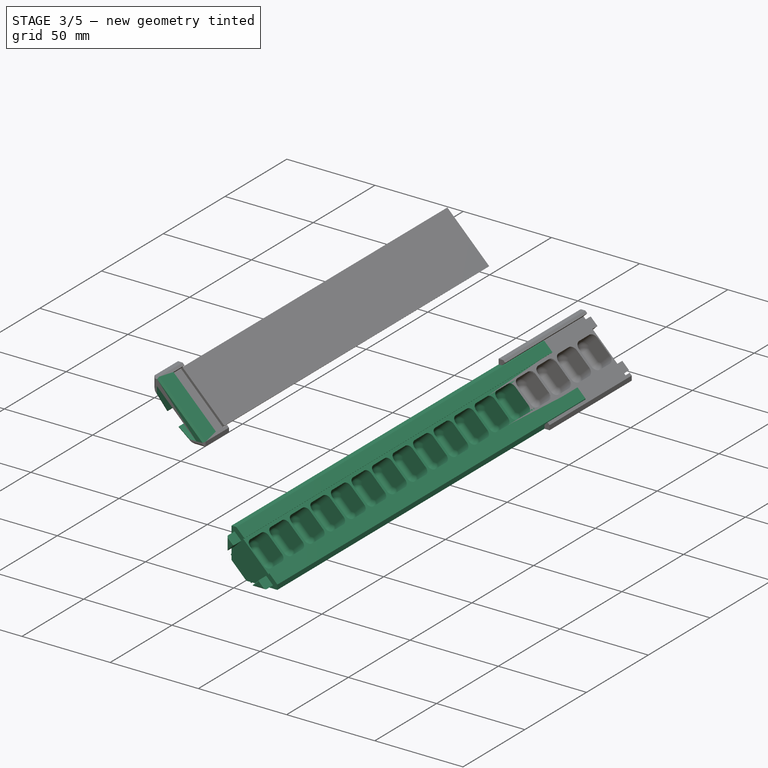
[diagram: stage 3 of 5 — iso view after this stage's code; geometry added in this stage tinted green]
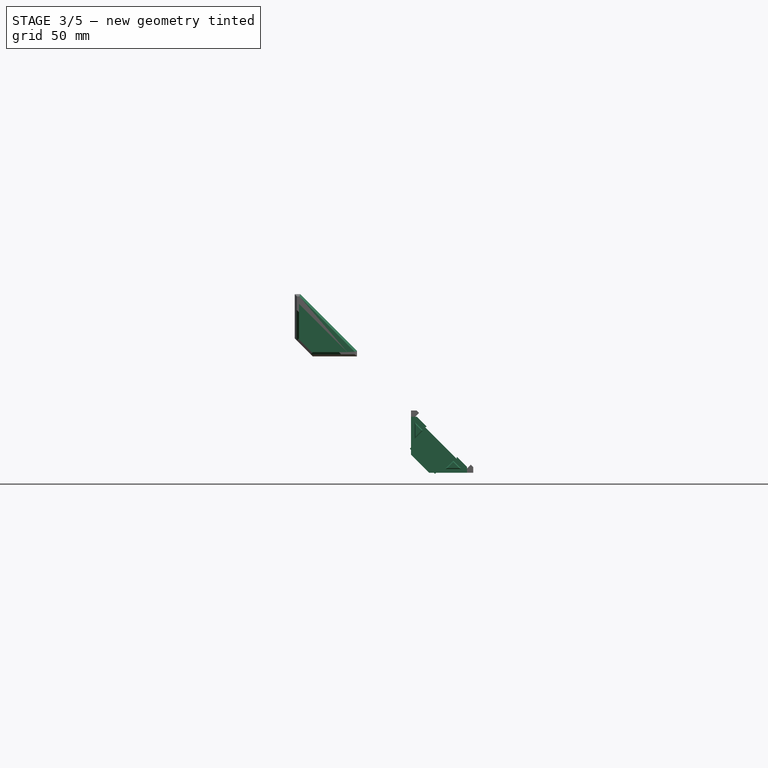
[diagram: stage 3 of 5 — front view after this stage's code; geometry added in this stage tinted green]
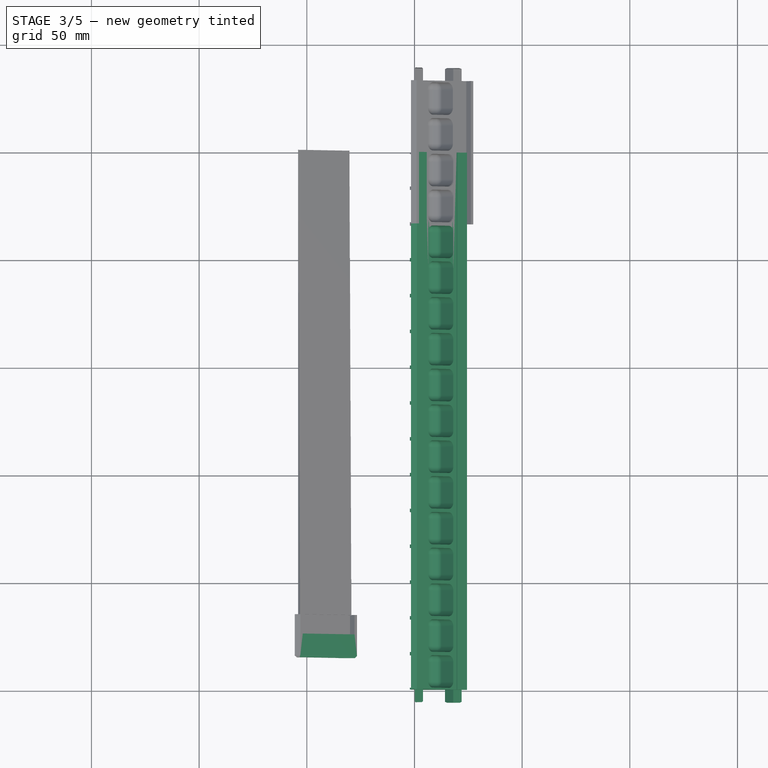
[diagram: stage 3 of 5 — top view after this stage's code; geometry added in this stage tinted green]
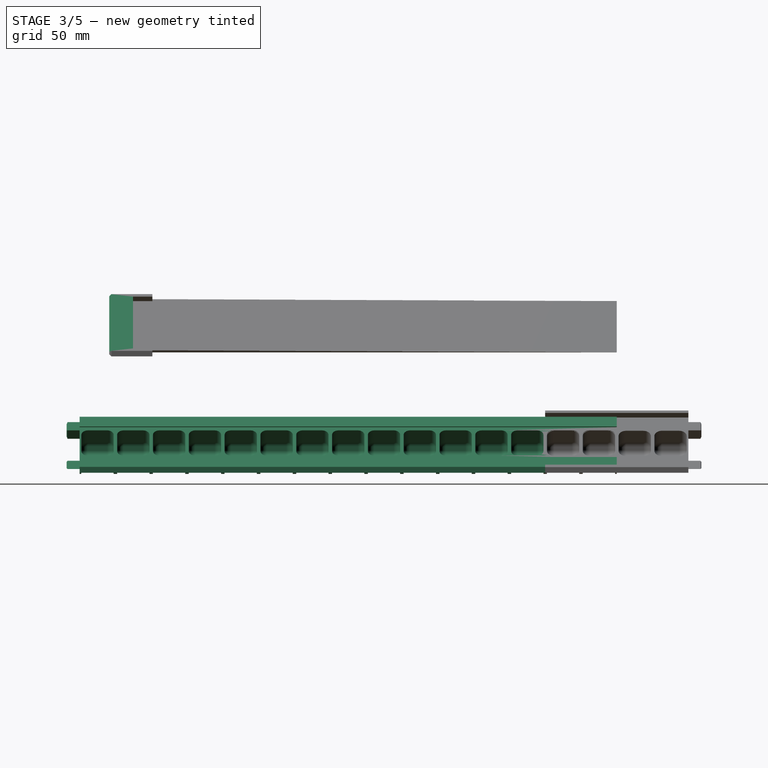
[diagram: stage 3 of 5 — right view after this stage's code; geometry added in this stage tinted green]
FEATURE [Spreadsheet::Sheet] Spreadsheet  label="globals"
  cells = A1='Inner Wall Thickness; B1(inner_wall_thickness)==1.6 mm; A2='Outer Wall Thickness; B2(outer_wall_thickness)==3.2 mm; A3='Gap; B3(gap)==0.2 mm; A4='LED Cell Width; B4(led_cell_width)==16.63 mm; A5='LED Count; B5(led_count)=15; A6='Saddle Thickness; B6(saddle_thickness)==1.2 mm
FEATURE [Sketcher::SketchObject] Sketch
  ArcFitTolerance = 1e-06
  AttachmentSupport = -> [XZ_Plane]
  ExternalTypes = [0]
  FullyConstrained = false
  MakeInternals = false
  MapMode = 5
  Placement = pos=(0,0,0) rot=(1,0,0;1.5708rad)
  _ExternalGeoVersion = 0
  expr: Constraints[22] = <<globals>>.inner_wall_thickness
  sketch-geometry (21):
    g0: LineSegment StartX=0 StartY=11.6673 StartZ=0 EndX=0 EndY=7.42462 EndZ=0
    g1: GeomPoint [constr] X=0 Y=0 Z=0
    g2: LineSegment StartX=7.42462 StartY=0 StartZ=0 EndX=11.6673 EndY=0 EndZ=0
    g3: LineSegment StartX=-1.6 StartY=24.3952 StartZ=0 EndX=-1.6 EndY=6.76188 EndZ=0
    g4: LineSegment StartX=0 StartY=7.42462 StartZ=0 EndX=7.42462 EndY=0 EndZ=0
    g5: LineSegment [constr] StartX=0 StartY=24.3952 StartZ=0 EndX=24.3952 EndY=0 EndZ=0
    g6: LineSegment StartX=0 StartY=11.6673 StartZ=0 EndX=6.36396 EndY=18.0312 EndZ=0
    g7: LineSegment StartX=11.6673 StartY=0 StartZ=0 EndX=18.0312 EndY=6.36396 EndZ=0
    g8: LineSegment StartX=-1.6 StartY=6.76188 StartZ=0 EndX=6.76188 EndY=-1.6 EndZ=0
    g9: LineSegment StartX=-1.6 StartY=24.3952 StartZ=0 EndX=1.12 EndY=24.3952 EndZ=0
    g10: LineSegment StartX=1.12 StartY=24.3952 StartZ=0 EndX=5.67377 EndY=19.8414 EndZ=0
    g11: LineSegment StartX=5.38877 StartY=19.5564 StartZ=0 EndX=5.67377 EndY=19.8414 EndZ=0
    g12: LineSegment StartX=5.38877 StartY=19.5564 StartZ=0 EndX=4.83877 EndY=19.5564 EndZ=0
    g13: LineSegment StartX=4.83877 StartY=19.5564 StartZ=0 EndX=6.36396 EndY=18.0312 EndZ=0
    g14: LineSegment [constr] StartX=0 StartY=0 StartZ=0 EndX=21.3391 EndY=21.3391 EndZ=0
    g15: LineSegment StartX=24.3952 StartY=-1.6 StartZ=0 EndX=6.76188 EndY=-1.6 EndZ=0
    g16: LineSegment StartX=24.3952 StartY=-1.6 StartZ=0 EndX=24.3952 EndY=1.12 EndZ=0
    g17: LineSegment StartX=24.3952 StartY=1.12 StartZ=0 EndX=19.8414 EndY=5.67377 EndZ=0
    g18: LineSegment StartX=19.5564 StartY=5.38877 StartZ=0 EndX=19.8414 EndY=5.67377 EndZ=0
    g19: LineSegment StartX=19.5564 StartY=5.38877 StartZ=0 EndX=19.5564 EndY=4.83877 EndZ=0
    g20: LineSegment StartX=19.5564 StartY=4.83877 StartZ=0 EndX=18.0312 EndY=6.36396 EndZ=0
  constraints (55):
    c: Vertical(g0)
    c: Coincident(g1,g-1)
    c: Horizontal(g2)
    c: Distance(g8,g2) = 1.6
    c: Coincident(g0,g4)
    c: Coincident(g2,g4)
    c: Angle(g4,g-2,g0) = 2.35619
    c: PointOnObject(g2,g-1)
    c: PointOnObject(g0,g-2)
    c: Distance(g4,g4) = 10.5
    c: Parallel(g5,g4)
    c: Distance(g4,g5) = 12
    c: Coincident(g6,g0)
    c: PointOnObject(g6,g5)
    c: Coincident(g13,g6)
    c: PointOnObject(g5,g-2)
    c: Coincident(g2,g7)
    c: PointOnObject(g7,g5)
    c: PointOnObject(g5,g-1)
    c: Coincident(g8,g3)
    c: Parallel(g4,g8)
    c: Distance(g7,g6) = 16.5
    c: Distance(g8,g4) = 1.6
    c: Horizontal(g9)
    c: Coincident(g10,g9)
    c: Coincident(g11,g10)
    c: Perpendicular(g11,g10)
    c: Coincident(g12,g11)
    c: Horizontal(g12)
    c: Vertical(g3)
    c: Coincident(g9,g3)
    c: Perpendicular(g13,g6)
    c: Coincident(g12,g13)
    c: Parallel(g4,g10)
    c: Coincident(g14,g1)
    c: Symmetric(g3,g15,g14)
    c: Symmetric(g3,g15,g14)
    c: Symmetric(g9,g16,g14)
    c: Symmetric(g9,g16,g14)
    c: Symmetric(g10,g17,g14)
    c: Symmetric(g10,g17,g14)
    c: Symmetric(g11,g18,g14)
    c: Symmetric(g11,g18,g14)
    c: Symmetric(g12,g19,g14)
    c: Symmetric(g12,g19,g14)
    c: Symmetric(g13,g20,g14)
    c: Symmetric(g13,g20,g14)
    c: PointOnObject(g5,g9)
    c: PointOnObject(g20,g7)
    c: Coincident(g8,g15)
    c: PointOnObject(g12,g5)
    c: Parallel(g6,g7)
    c: Distance(g10,g10) = 6.44
    c: Distance(g9,g9) = 2.72
    c: DistanceX(g12,g12) = 0.55
FEATURE [PartDesign::Pad] Pad  label="basic-bracket"
  Direction = (0,-1,2e-16)
  Length = 249.45
  Length2 = 10
  Placement = pos=(0,0,0) rot=(1,0,0;1.5708rad)
  Profile = -> Sketch
  ReferenceAxis = -> Sketch [N_Axis]
  Refine = true
  SideType = 0
  Suppressed = false
  Type = 0
  Type2 = 0
  expr: Length = <<globals>>.led_cell_width * <<globals>>.led_count
FEATURE [App::Point] Origin009  label="Origin011"
  Role = Origin
FEATURE [Sketcher::SketchObject] Sketch033
  ArcFitTolerance = 1e-06
  AttachmentOffset = pos=(0,0,-248.7) rot=(0,0,1;0rad)
  ExternalTypes = [0]
  FullyConstrained = true
  MakeInternals = false
  MapMode = 5
  Placement = pos=(0,0,-5e-16) rot=(1,0,0;1.5708rad)
  _ExternalGeoVersion = 0
  expr: Constraints[14] = <<globals>>.inner_wall_thickness
  expr: Constraints[15] = <<globals>>.inner_wall_thickness
  expr: Constraints[16] = <<globals>>.inner_wall_thickness
  expr: Constraints[17] = <<globals>>.inner_wall_thickness
  expr: Constraints[30] = <<globals>>.gap / 2
  expr: Constraints[31] = <<globals>>.gap / 2
  expr: Constraints[32] = <<globals>>.gap / 2
  expr: Constraints[33] = <<globals>>.gap / 2
  expr: Constraints[34] = <<globals>>.gap / 2
  expr: Constraints[35] = <<globals>>.gap / 2
  sketch-geometry (12):
    g0: LineSegment [constr] StartX=0 StartY=22.1324 StartZ=0 EndX=4.10122 EndY=18.0312 EndZ=0
    g1: LineSegment [constr] StartX=4.10122 StartY=18.0312 StartZ=0 EndX=0 EndY=13.93 EndZ=0
    g2: LineSegment [constr] StartX=0 StartY=13.93 StartZ=0 EndX=0 EndY=22.1324 EndZ=0
    g3: LineSegment [constr] StartX=13.93 StartY=0 StartZ=0 EndX=18.0312 EndY=4.10122 EndZ=0
    g4: LineSegment [constr] StartX=18.0312 StartY=4.10122 StartZ=0 EndX=22.1324 EndY=0 EndZ=0
    g5: LineSegment [constr] StartX=22.1324 StartY=0 StartZ=0 EndX=13.93 EndY=0 EndZ=0
    g6: LineSegment StartX=0.1 StartY=21.891 StartZ=0 EndX=0.1 EndY=14.1714 EndZ=0
    g7: LineSegment StartX=0.1 StartY=14.1714 StartZ=0 EndX=3.9598 EndY=18.0312 EndZ=0
    g8: LineSegment StartX=3.9598 StartY=18.0312 StartZ=0 EndX=0.1 EndY=21.891 EndZ=0
    g9: LineSegment StartX=14.1714 StartY=0.1 StartZ=0 EndX=18.0312 EndY=3.9598 EndZ=0
    g10: LineSegment StartX=18.0312 StartY=3.9598 StartZ=0 EndX=21.891 EndY=0.1 EndZ=0
    g11: LineSegment StartX=21.891 StartY=0.1 StartZ=0 EndX=14.1714 EndY=0.1 EndZ=0
  constraints (36):
    c: PointOnObject(g0,g-2)
    c: Coincident(g0,g1)
    c: Coincident(g1,g2)
    c: Coincident(g2,g0)
    c: Vertical(g2)
    c: PointOnObject(g3,g-1)
    c: Coincident(g3,g4)
    c: PointOnObject(g4,g-1)
    c: Coincident(g4,g5)
    c: Coincident(g5,g3)
    c: Parallel(g-3,g0)
    c: Parallel(g-4,g1)
    c: Parallel(g3,g-5)
    c: Parallel(g4,g-6)
    c: Distance(g-3,g0) = 1.6
    c: Distance(g-4,g1) = 1.6
    c: Distance(g-5,g3) = 1.6
    c: Distance(g-6,g4) = 1.6
    c: Vertical(g6)
    c: Coincident(g6,g7)
    c: Coincident(g7,g8)
    c: Coincident(g8,g6)
    c: Coincident(g9,g10)
    c: Coincident(g10,g11)
    c: Coincident(g11,g9)
    c: Horizontal(g11)
    c: Parallel(g8,g0)
    c: Parallel(g7,g1)
    c: Parallel(g10,g4)
    c: Parallel(g9,g3)
    c: Distance(g0,g8) = 0.1
    c: Distance(g2,g6) = 0.1
    c: Distance(g1,g7) = 0.1
    c: Distance(g3,g9) = 0.1
    c: Distance(g4,g10) = 0.1
    c: Distance(g5,g11) = 0.1
FEATURE [PartDesign::Plane] DatumPlane
  AttachmentOffset = pos=(0,20,0) rot=(1,0,1;-0.392699rad)
  Length = 62.0844
  MapMode = 5
  Placement = pos=(0,16,0) rot=(1,0,0;-1.1781rad)
  ResizeMode = 0
  Width = 85.1012
FEATURE [Sketcher::SketchObject] Sketch048
  ArcFitTolerance = 1e-06
  ExternalGeometry = -> [Pad]
  ExternalTypes = [0]
  FullyConstrained = false
  MakeInternals = false
  MapMode = 5
  Placement = pos=(12.1976,2.7e-15,12.1976) rot=(0.382683,0,0.92388;3.14159rad)
  _ExternalGeoVersion = 1
  expr: Constraints[20] = <<globals>>.led_cell_width
  sketch-geometry (8):
    g0: LineSegment StartX=8.25 StartY=0 StartZ=0 EndX=8.25 EndY=0.8 EndZ=0
    g1: LineSegment StartX=8.25 StartY=0.8 StartZ=0 EndX=-8.25 EndY=0.8 EndZ=0
    g2: LineSegment StartX=-8.25 StartY=0.8 StartZ=0 EndX=-8.25 EndY=0 EndZ=0
    g3: LineSegment StartX=-8.25 StartY=0 StartZ=0 EndX=8.25 EndY=0 EndZ=0
    g4: LineSegment StartX=8.25 StartY=15.83 StartZ=0 EndX=8.25 EndY=16.63 EndZ=0
    g5: LineSegment StartX=8.25 StartY=16.63 StartZ=0 EndX=-8.25 EndY=16.63 EndZ=0
    g6: LineSegment StartX=-8.25 StartY=16.63 StartZ=0 EndX=-8.25 EndY=15.83 EndZ=0
    g7: LineSegment StartX=-8.25 StartY=15.83 StartZ=0 EndX=8.25 EndY=15.83 EndZ=0
  constraints (21):
    c: Coincident(g0,g1)
    c: Coincident(g1,g2)
    c: Coincident(g2,g3)
    c: Coincident(g3,g0)
    c: Vertical(g0)
    c: Vertical(g2)
    c: Horizontal(g1)
    c: Horizontal(g3)
    c: DistanceY(g0,g0) = 0.8
    c: Coincident(g4,g5)
    c: Coincident(g5,g6)
    c: Coincident(g6,g7)
    c: Coincident(g7,g4)
    c: Vertical(g4)
    c: Vertical(g6)
    c: Horizontal(g5)
    c: Horizontal(g7)
    c: Equal(g0,g4)
    c: DistanceX(g5,g5) = 16.5
    c: PointOnObject(g0,g-1)
    c: Distance(g3,g5) = 16.63
FEATURE [PartDesign::Pad] Pad003  label="divider-wall"
  BaseFeature = -> Pad
  Direction = (0.707107,0,0.707107)
  Length = 1.6
  Length2 = 10
  Placement = pos=(0,0,0) rot=(1,0,0;1.5708rad)
  Profile = -> Sketch048
  ReferenceAxis = -> Sketch048 [N_Axis]
  Refine = true
  Reversed = true
  SideType = 0
  Suppressed = false
  Type = 2
  Type2 = 0
FEATURE [PartDesign::LinearPattern] LinearPattern001  label="wall-repeat"
  BaseFeature = -> Pad003
  Direction = -> Y_Axis
  Direction2 = -> Sketch048 [H_Axis]
  Length = 232.82
  Length2 = 100
  Mode = 1
  Mode2 = 0
  Occurrences = 15
  Occurrences2 = 1
  Offset = 16.63
  Offset2 = 100
  Originals = -> [Pad003]
  Placement = pos=(0,0,0) rot=(1,0,0;1.5708rad)
  Refine = true
  Reversed = true
  Reversed2 = false
  SpacingPattern = [16.63]
  SpacingPattern2 = [0]
  Spacings = [-1,-1,-1,-1,-1,-1,-1,-1,-1,-1,-1,-1,-1,-1]
  Suppressed = false
  TransformMode = 0
  expr: Occurrences = <<globals>>.led_count
  expr: Offset = <<globals>>.led_cell_width
FEATURE [Sketcher::SketchObject] Sketch005
  ArcFitTolerance = 1e-06
  ExternalGeometry = -> [LinearPattern001]
  ExternalTypes = [0,0]
  FullyConstrained = true
  MakeInternals = false
  MapMode = 5
  Placement = pos=(3.71231,8e-16,3.71231) rot=(0.382683,0,0.92388;3.14159rad)
  _ExternalGeoVersion = 0
  sketch-geometry (8):
    g0: LineSegment StartX=-2.7 StartY=11.015 StartZ=0 EndX=-2.7 EndY=5.615 EndZ=0
    g1: LineSegment StartX=-2.7 StartY=5.615 StartZ=0 EndX=2.7 EndY=5.615 EndZ=0
    g2: LineSegment StartX=2.7 StartY=5.615 StartZ=0 EndX=2.7 EndY=11.015 EndZ=0
    g3: LineSegment StartX=2.7 StartY=11.015 StartZ=0 EndX=-2.7 EndY=11.015 EndZ=0
    g4: LineSegment [constr] StartX=-2.7 StartY=11.015 StartZ=0 EndX=-5.25 EndY=15.83 EndZ=0
    g5: LineSegment [constr] StartX=2.7 StartY=5.615 StartZ=0 EndX=5.25 EndY=0.8 EndZ=0
    g6: LineSegment [constr] StartX=2.7 StartY=11.015 StartZ=0 EndX=5.25 EndY=15.83 EndZ=0
    g7: LineSegment [constr] StartX=-2.7 StartY=5.615 StartZ=0 EndX=-5.25 EndY=0.8 EndZ=0
  constraints (20):
    c: Coincident(g0,g1)
    c: Coincident(g1,g2)
    c: Coincident(g2,g3)
    c: Coincident(g3,g0)
    c: Vertical(g0)
    c: Vertical(g2)
    c: Horizontal(g1)
    c: Horizontal(g3)
    c: DistanceX(g3,g3) = 5.4
    c: Equal(g3,g0)
    c: Coincident(g4,g0)
    c: Coincident(g5,g1)
    c: Coincident(g6,g2)
    c: Coincident(g7,g0)
    c: Equal(g4,g7)
    c: Coincident(g7,g-3)
    c: Coincident(g5,g-4)
    c: Coincident(g4,g-3)
    c: Coincident(g-4,g6)
    c: Equal(g7,g6)
FEATURE [PartDesign::Pocket] Pocket  label="led-enclosure"
  BaseFeature = -> LinearPattern001
  Direction = (-0.707107,0,-0.707107)
  Length = 5
  Length2 = 5
  Placement = pos=(0,0,0) rot=(1,0,0;1.5708rad)
  Profile = -> Sketch005
  ReferenceAxis = -> Sketch005 [N_Axis]
  Refine = true
  SideType = 0
  Suppressed = false
  Type = 1
  Type2 = 0
FEATURE [PartDesign::LinearPattern] LinearPattern  label="led-enclosure-linear-pattern"
  BaseFeature = -> Pocket
  Direction = -> Y_Axis
  Direction2 = -> Sketch005 [H_Axis]
  Length = 232.82
  Length2 = 100
  Mode = 1
  Mode2 = 0
  Occurrences = 15
  Occurrences2 = 1
  Offset = 16.63
  Offset2 = 100
  Originals = -> [Pocket]
  Placement = pos=(0,0,0) rot=(1,0,0;1.5708rad)
  Refine = true
  Reversed = true
  Reversed2 = false
  SpacingPattern = [16.63]
  SpacingPattern2 = [0]
  Spacings = [-1,-1,-1,-1,-1,-1,-1,-1,-1,-1,-1,-1,-1,-1]
  Suppressed = false
  TransformMode = 0
  expr: Occurrences = <<globals>>.led_count
  expr: Offset = <<globals>>.led_cell_width
FEATURE [PartDesign::Pocket] Pocket001  label="mating-hole"
  BaseFeature = -> LinearPattern
  Direction = (0,-1,-2e-16)
  Length = 7.5
  Length2 = 5
  Placement = pos=(0,0,0) rot=(1,0,0;1.5708rad)
  Profile = -> Sketch006
  ReferenceAxis = -> Sketch006 [N_Axis]
  Refine = true
  SideType = 0
  Suppressed = false
  Type = 0
  Type2 = 0
FEATURE [PartDesign::Pad] Pad004  label="mating-pin"
  BaseFeature = -> Pocket001
  Direction = (0,-1,2e-16)
  Length = 6
  Length2 = 10
  Placement = pos=(0,0,0) rot=(1,0,0;1.5708rad)
  Profile = -> Sketch007
  ReferenceAxis = -> Sketch007 [N_Axis]
  Refine = true
  SideType = 0
  Suppressed = false
  Type = 0
  Type2 = 0
FEATURE [PartDesign::Chamfer] Chamfer  label="mating-pin-chamfer"
  Angle = 45
  Base = -> Pad004 [Edge519,Edge520,Edge517,Edge514,Edge513,Edge511]
  BaseFeature = -> Pad004
  ChamferType = 0
  FlipDirection = false
  Placement = pos=(0,0,0) rot=(1,0,0;1.5708rad)
  Refine = true
  Size = 0.4
  Size2 = 1
  SupportTransform = false
  Suppressed = false
  UseAllEdges = false
FEATURE [PartDesign::Chamfer] Chamfer001  label="mating-hole-chamfer"
  Angle = 45
  Base = -> Chamfer [Edge324,Edge323,Edge325,Edge326,Edge327,Edge328]
  BaseFeature = -> Chamfer
  ChamferType = 0
  FlipDirection = false
  Placement = pos=(0,0,0) rot=(1,0,0;1.5708rad)
  Refine = true
  Size = 0.4
  Size2 = 1
  SupportTransform = false
  Suppressed = false
  UseAllEdges = false
FEATURE [PartDesign::Fillet] Fillet
  Base = -> Chamfer001 [Edge498,Edge499,Edge506,Edge821,Edge507,Edge497,Edge503,Edge502,Edge504,Edge505,Edge508,Edge822,Edge501,Edge500]
  BaseFeature = -> Chamfer001
  Placement = pos=(0,0,0) rot=(1,0,0;1.5708rad)
  Radius = 3
  Refine = true
  SupportTransform = false
  Suppressed = false
  UseAllEdges = false
FEATURE [PartDesign::LinearPattern] LinearPattern002
  BaseFeature = -> Fillet
  Direction = -> Y_Axis
  Direction2 = -> X_Axis
  Length = 232.82
  Length2 = 100
  Mode = 0
  Mode2 = 0
  Occurrences = 15
  Occurrences2 = 1
  Offset = 16.63
  Offset2 = 100
  Originals = -> [Fillet]
  Placement = pos=(0,0,0) rot=(1,0,0;1.5708rad)
  Refine = true
  Reversed = true
  Reversed2 = false
  SpacingPattern = [0]
  SpacingPattern2 = [0]
  Spacings = [-1,-1,-1,-1,-1,-1,-1,-1,-1,-1,-1,-1,-1,-1]
  Suppressed = false
  TransformMode = 0
  expr: Length = <<globals>>.led_cell_width * (<<globals>>.led_count - 1)
  expr: Occurrences = <<globals>>.led_count
FEATURE [Sketcher::SketchObject] Sketch083
  ArcFitTolerance = 1e-06
  AttachmentSupport = -> [Pad024]
  ExternalGeometry = -> [Pad024]
  ExternalTypes = [0,0]
  FullyConstrained = true
  MakeInternals = false
  MapMode = 5
  Placement = pos=(0,-235.67,2.878e-13) rot=(1,0,0;1.5708rad)
  _ExternalGeoVersion = 1
  sketch-geometry (4):
    g0: LineSegment StartX=-51.8787 StartY=80.1629 StartZ=0 EndX=-27.837 EndY=56.1213 EndZ=0
    g1: LineSegment StartX=-27.837 StartY=56.1213 StartZ=0 EndX=-29.9584 EndY=54 EndZ=0
    g2: LineSegment StartX=-29.9584 StartY=54 StartZ=0 EndX=-54 EndY=78.0416 EndZ=0
    g3: LineSegment StartX=-54 StartY=78.0416 StartZ=0 EndX=-51.8787 EndY=80.1629 EndZ=0
  constraints (8):
    c: Coincident(g-3,g0)
    c: Coincident(g0,g-4)
    c: Coincident(g0,g1)
    c: Coincident(g1,g-4)
    c: Coincident(g1,g2)
    c: Coincident(g2,g-3)
    c: Coincident(g2,g3)
    c: Coincident(g3,g0)
FEATURE [PartDesign::Pad] Pad025
  BaseFeature = -> Pad024
  Direction = (0,-1,1.4e-15)
  Length = 11
  Length2 = 10
  Profile = -> Sketch083
  ReferenceAxis = -> Sketch083 [N_Axis]
  Refine = true
  Reversed = true
  SideType = 0
  Suppressed = false
  Type = 0
  Type2 = 0
FEATURE [PartDesign::Chamfer] Chamfer021
  Angle = 45
  Base = -> Pad025 [Edge24]
  BaseFeature = -> Pad025
  ChamferType = 0
  FlipDirection = false
  Refine = true
  Size = 10
  Size2 = 1
  SupportTransform = false
  Suppressed = false
  UseAllEdges = false
FEATURE [Sketcher::SketchObject] Sketch084
  ArcFitTolerance = 1e-06
  AttachmentOffset = pos=(0,0,-4) rot=(0,0,1;0rad)
  AttachmentSupport = -> [Chamfer021]
  ExternalGeometry = -> [Chamfer021]
  ExternalTypes = [0,0,0,0,0]
  FullyConstrained = true
  MakeInternals = false
  MapMode = 5
  Placement = pos=(0,-219.67,2.69e-13) rot=(0,0.707107,0.707107;3.14159rad)
  _ExternalGeoVersion = 1
  sketch-geometry (8):
    g0: LineSegment StartX=48.2381 StartY=53.4 StartZ=0 EndX=47.2381 EndY=54.4 EndZ=0
    g1: LineSegment StartX=47.2381 StartY=54.4 StartZ=0 EndX=31.2069 EndY=54.4 EndZ=0
    g2: LineSegment StartX=31.2069 StartY=54.4 StartZ=0 EndX=53.6 EndY=76.7931 EndZ=0
    g3: LineSegment StartX=53.6 StartY=76.7931 StartZ=0 EndX=53.6 EndY=60.7619 EndZ=0
    g4: LineSegment StartX=53.6 StartY=60.7619 StartZ=0 EndX=54.6 EndY=59.7619 EndZ=0
    g5: LineSegment StartX=48.2381 StartY=53.4 StartZ=0 EndX=54.6 EndY=59.7619 EndZ=0
    g6: LineSegment [constr] StartX=48.2381 StartY=53.4 StartZ=0 EndX=47.2381 EndY=52.4 EndZ=0
    g7: LineSegment [constr] StartX=54.6 StartY=59.7619 StartZ=0 EndX=55.6 EndY=60.7619 EndZ=0
  constraints (22):
    c: Coincident(g0,g1)
    c: Horizontal(g1)
    c: Coincident(g1,g2)
    c: Coincident(g2,g3)
    c: Vertical(g3)
    c: Coincident(g3,g4)
    c: Parallel(g-3,g2)
    c: Distance(g-5,g1) = 2
    c: Distance(g-7,g3) = 2
    c: Coincident(g5,g0)
    c: Coincident(g5,g4)
    c: Coincident(g6,g0)
    c: Coincident(g6,g-6)
    c: Coincident(g7,g4)
    c: Coincident(g7,g-7)
    c: Equal(g6,g7)
    c: Parallel(g6,g2)
    c: Parallel(g6,g7)
    c: Perpendicular(g0,g2)
    c: Perpendicular(g4,g2)
    c: Vertical(g6,g0)
    c: Distance(g-3,g2) = 3.6
FEATURE [PartDesign::Pocket] Pocket028
  BaseFeature = -> Chamfer021
  Direction = (0,-1,1.4e-15)
  Length = 5
  Length2 = 5
  Profile = -> Sketch084
  ReferenceAxis = -> Sketch084 [N_Axis]
  Refine = true
  SideType = 0
  Suppressed = false
  Type = 1
  Type2 = 0
FEATURE [PartDesign::Chamfer] Chamfer022
  Angle = 45
  Base = -> Pocket028 [Edge2,Edge4,Edge27,Edge26,Edge33,Edge24,Edge25]
  BaseFeature = -> Pocket028
  ChamferType = 0
  FlipDirection = false
  Refine = true
  Size = 1
  Size2 = 1
  SupportTransform = false
  Suppressed = false
  UseAllEdges = false
FEATURE [PartDesign::Chamfer] Chamfer023
  Angle = 45
  Base = -> Chamfer022 [Edge12]
  BaseFeature = -> Chamfer022
  ChamferType = 1
  FlipDirection = false
  Refine = true
  Size = 3.99
  Size2 = 1
  SupportTransform = false
  Suppressed = false
  UseAllEdges = false
FEATURE [App::Point] Origin025  label="Origin028"
  Role = Origin
FEATURE [PartDesign::FeatureBase] Clone001
  BaseFeature = -> Body010
  Suppressed = false
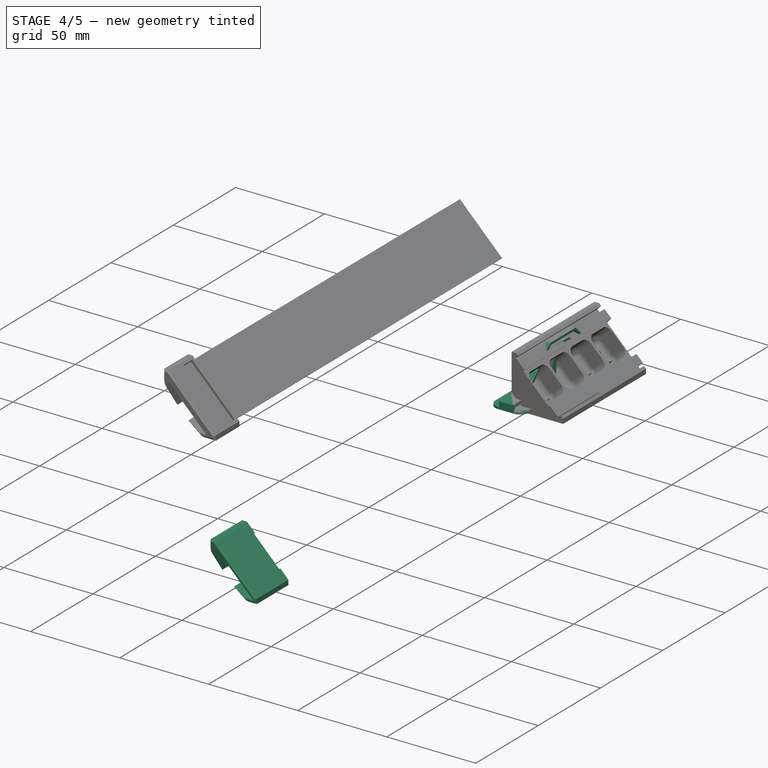
[diagram: stage 4 of 5 — iso view after this stage's code; geometry added in this stage tinted green]
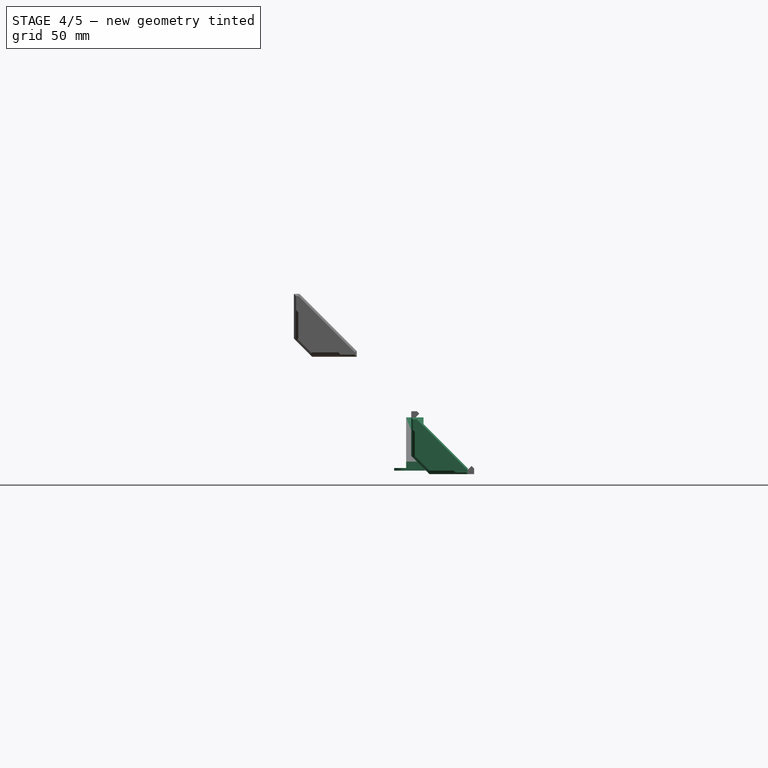
[diagram: stage 4 of 5 — front view after this stage's code; geometry added in this stage tinted green]
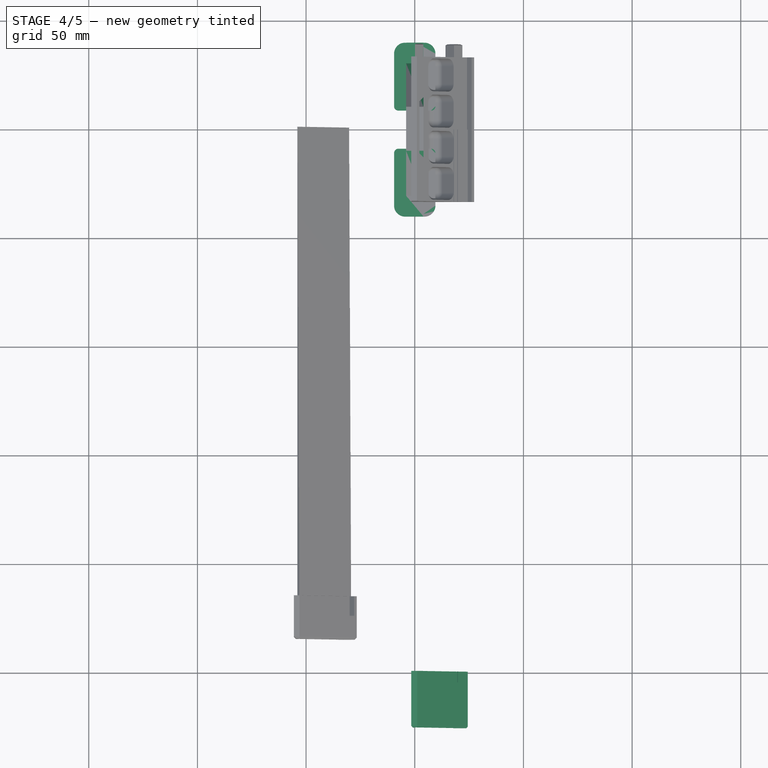
[diagram: stage 4 of 5 — top view after this stage's code; geometry added in this stage tinted green]
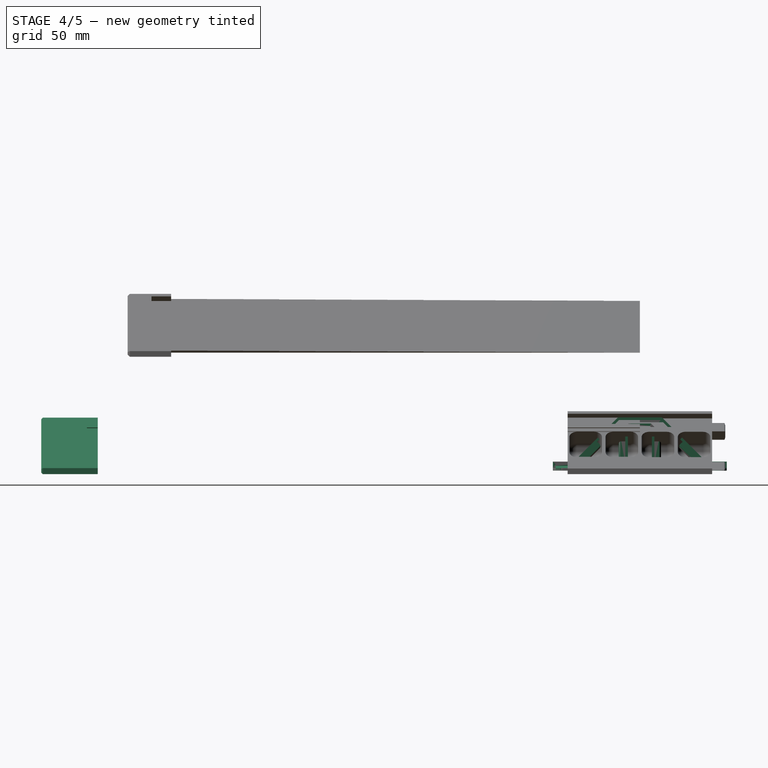
[diagram: stage 4 of 5 — right view after this stage's code; geometry added in this stage tinted green]
FEATURE [Sketcher::SketchObject] Sketch006
  ArcFitTolerance = 1e-06
  AttachmentSupport = -> [Pad]
  ExternalGeometry = -> [Pad]
  ExternalTypes = [0]
  FullyConstrained = true
  MakeInternals = false
  MapMode = 5
  Placement = pos=(0,1.7e-15,0) rot=(-1,0,0;1.5708rad)
  _ExternalGeoVersion = 0
  expr: Constraints[15] = <<globals>>.inner_wall_thickness
  expr: Constraints[16] = <<globals>>.inner_wall_thickness
  expr: Constraints[17] = <<globals>>.inner_wall_thickness
  expr: Constraints[7] = <<globals>>.inner_wall_thickness
  sketch-geometry (6):
    g0: LineSegment StartX=0 StartY=-13.93 StartZ=0 EndX=4.10122 EndY=-18.0312 EndZ=0
    g1: LineSegment StartX=4.10122 StartY=-18.0312 StartZ=0 EndX=0 EndY=-22.1324 EndZ=0
    g2: LineSegment StartX=0 StartY=-22.1324 StartZ=0 EndX=0 EndY=-13.93 EndZ=0
    g3: LineSegment StartX=13.93 StartY=0 StartZ=0 EndX=18.0312 EndY=-4.10122 EndZ=0
    g4: LineSegment StartX=18.0312 StartY=-4.10122 StartZ=0 EndX=22.1324 EndY=0 EndZ=0
    g5: LineSegment StartX=22.1324 StartY=0 StartZ=0 EndX=13.93 EndY=0 EndZ=0
  constraints (18):
    c: PointOnObject(g0,g-2)
    c: Coincident(g0,g1)
    c: PointOnObject(g1,g-2)
    c: Coincident(g1,g2)
    c: Coincident(g2,g0)
    c: Parallel(g-4,g0)
    c: Parallel(g1,g-3)
    c: Distance(g-3,g1) = 1.6
    c: PointOnObject(g3,g-1)
    c: Coincident(g3,g4)
    c: PointOnObject(g4,g-1)
    c: Coincident(g4,g5)
    c: Coincident(g5,g3)
    c: Parallel(g3,g-7)
    c: Parallel(g4,g-6)
    c: Distance(g3,g-7) = 1.6
    c: Distance(g-6,g4) = 1.6
    c: Distance(g0,g-4) = 1.6
FEATURE [Sketcher::SketchObject] Sketch007
  ArcFitTolerance = 1e-06
  AttachmentOffset = pos=(0,0,249.45) rot=(0,0,1;0rad)
  AttachmentSupport = -> [XZ_Plane001]
  ExternalTypes = [0]
  FullyConstrained = true
  MakeInternals = false
  MapMode = 5
  Placement = pos=(0,-249.45,5.54e-14) rot=(1,0,0;1.5708rad)
  _ExternalGeoVersion = 0
  expr: .AttachmentOffset.Base.z = <<globals>>.led_cell_width * <<globals>>.led_count
  expr: Constraints[14] = <<globals>>.inner_wall_thickness
  expr: Constraints[15] = <<globals>>.inner_wall_thickness
  expr: Constraints[16] = <<globals>>.inner_wall_thickness
  expr: Constraints[17] = <<globals>>.inner_wall_thickness
  expr: Constraints[30] = <<globals>>.gap / 2
  expr: Constraints[31] = <<globals>>.gap / 2
  expr: Constraints[32] = <<globals>>.gap / 2
  expr: Constraints[33] = <<globals>>.gap / 2
  expr: Constraints[34] = <<globals>>.gap / 2
  expr: Constraints[35] = <<globals>>.gap / 2
  sketch-geometry (12):
    g0: LineSegment [constr] StartX=0 StartY=22.1324 StartZ=0 EndX=4.10122 EndY=18.0312 EndZ=0
    g1: LineSegment [constr] StartX=4.10122 StartY=18.0312 StartZ=0 EndX=0 EndY=13.93 EndZ=0
    g2: LineSegment [constr] StartX=0 StartY=13.93 StartZ=0 EndX=0 EndY=22.1324 EndZ=0
    g3: LineSegment [constr] StartX=13.93 StartY=0 StartZ=0 EndX=18.0312 EndY=4.10122 EndZ=0
    g4: LineSegment [constr] StartX=18.0312 StartY=4.10122 StartZ=0 EndX=22.1324 EndY=0 EndZ=0
    g5: LineSegment [constr] StartX=22.1324 StartY=0 StartZ=0 EndX=13.93 EndY=0 EndZ=0
    g6: LineSegment StartX=0.1 StartY=21.891 StartZ=0 EndX=0.1 EndY=14.1714 EndZ=0
    g7: LineSegment StartX=0.1 StartY=14.1714 StartZ=0 EndX=3.9598 EndY=18.0312 EndZ=0
    g8: LineSegment StartX=3.9598 StartY=18.0312 StartZ=0 EndX=0.1 EndY=21.891 EndZ=0
    g9: LineSegment StartX=14.1714 StartY=0.1 StartZ=0 EndX=18.0312 EndY=3.9598 EndZ=0
    g10: LineSegment StartX=18.0312 StartY=3.9598 StartZ=0 EndX=21.891 EndY=0.1 EndZ=0
    g11: LineSegment StartX=21.891 StartY=0.1 StartZ=0 EndX=14.1714 EndY=0.1 EndZ=0
  constraints (36):
    c: PointOnObject(g0,g-2)
    c: Coincident(g0,g1)
    c: Coincident(g1,g2)
    c: Coincident(g2,g0)
    c: Vertical(g2)
    c: PointOnObject(g3,g-1)
    c: Coincident(g3,g4)
    c: PointOnObject(g4,g-1)
    c: Coincident(g4,g5)
    c: Coincident(g5,g3)
    c: Parallel(g-3,g0)
    c: Parallel(g-4,g1)
    c: Parallel(g3,g-5)
    c: Parallel(g4,g-6)
    c: Distance(g-3,g0) = 1.6
    c: Distance(g-4,g1) = 1.6
    c: Distance(g-5,g3) = 1.6
    c: Distance(g-6,g4) = 1.6
    c: Vertical(g6)
    c: Coincident(g6,g7)
    c: Coincident(g7,g8)
    c: Coincident(g8,g6)
    c: Coincident(g9,g10)
    c: Coincident(g10,g11)
    c: Coincident(g11,g9)
    c: Horizontal(g11)
    c: Parallel(g8,g0)
    c: Parallel(g7,g1)
    c: Parallel(g10,g4)
    c: Parallel(g9,g3)
    c: Distance(g0,g8) = 0.1
    c: Distance(g2,g6) = 0.1
    c: Distance(g1,g7) = 0.1
    c: Distance(g3,g9) = 0.1
    c: Distance(g4,g10) = 0.1
    c: Distance(g5,g11) = 0.1
FEATURE [App::Point] Origin001  label="Origin"
  Role = Origin
FEATURE [App::Point] Origin003
  Role = Origin
FEATURE [PartDesign::SubShapeBinder] Binder  label="bracker-reference-binder"
  BindCopyOnChange = 0
  BindMode = 0
  ClaimChildren = false
  Context = -> Body001 [Binder.]
  Fuse = false
  MakeFace = true
  OffsetFill = false
  OffsetIntersection = false
  OffsetJoinType = 0
  OffsetOpenResult = false
  PartialLoad = false
  Refine = true
  Relative = true
  Support = -> [Body]
  _Version = 2
FEATURE [Sketcher::SketchObject] Sketch008
  ArcFitTolerance = 1e-06
  AttachmentOffset = pos=(0,249.45,0) rot=(0,0,1;0rad)
  AttachmentSupport = -> [XZ_Plane001]
  ExternalGeometry = -> [Binder]
  ExternalTypes = [0,0,0,0,0,0,0]
  FullyConstrained = true
  MakeInternals = false
  MapMode = 5
  Placement = pos=(0,5.54e-14,249.45) rot=(1,0,0;1.5708rad)
  _ExternalGeoVersion = 1
  expr: .AttachmentOffset.Base.y = <<globals>>.led_cell_width * <<globals>>.led_count
  expr: .Placement.Base.y = -<<globals>>.led_cell_width * <<globals>>.led_count
  sketch-geometry (8):
    g0: LineSegment StartX=-1.6 StartY=-225.055 StartZ=0 EndX=1.12 EndY=-225.055 EndZ=0
    g1: LineSegment StartX=1.12 StartY=-225.055 StartZ=0 EndX=5.67377 EndY=-229.609 EndZ=0
    g2: LineSegment StartX=5.67377 StartY=-229.609 StartZ=0 EndX=19.8414 EndY=-243.776 EndZ=0
    g3: LineSegment StartX=19.8414 StartY=-243.776 StartZ=0 EndX=24.3952 EndY=-248.33 EndZ=0
    g4: LineSegment StartX=-1.6 StartY=-225.055 StartZ=0 EndX=-1.6 EndY=-242.688 EndZ=0
    g5: LineSegment StartX=-1.6 StartY=-242.688 StartZ=0 EndX=6.76188 EndY=-251.05 EndZ=0
    g6: LineSegment StartX=6.76188 StartY=-251.05 StartZ=0 EndX=24.3952 EndY=-251.05 EndZ=0
    g7: LineSegment StartX=24.3952 StartY=-248.33 StartZ=0 EndX=24.3952 EndY=-251.05 EndZ=0
  constraints (16):
    c: Coincident(g-4,g0)
    c: Coincident(g0,g-5)
    c: Coincident(g0,g1)
    c: Coincident(g1,g-5)
    c: Coincident(g1,g2)
    c: Coincident(g2,g-6)
    c: Coincident(g2,g3)
    c: Coincident(g3,g-7)
    c: Coincident(g4,g0)
    c: Coincident(g4,g-3)
    c: Coincident(g5,g4)
    c: Coincident(g5,g-3)
    c: Coincident(g6,g5)
    c: Coincident(g6,g-7)
    c: Coincident(g7,g3)
    c: Coincident(g7,g6)
FEATURE [PartDesign::Pad] Pad005  label="endcap-shape"
  Direction = (0,-1,2e-16)
  Length = 26
  Length2 = 10
  Placement = pos=(0,0,0) rot=(1,0,0;1.5708rad)
  Profile = -> Sketch008
  ReferenceAxis = -> Sketch008 [N_Axis]
  Refine = true
  SideType = 0
  Suppressed = false
  Type = 0
  Type2 = 0
FEATURE [Sketcher::SketchObject] Sketch050
  ArcFitTolerance = 1e-06
  AttachmentOffset = pos=(0,249.45,0) rot=(0,0,1;0rad)
  AttachmentSupport = -> [XZ_Plane]
  ExternalGeometry = -> [Binder]
  ExternalTypes = [0,0,0,0]
  FullyConstrained = true
  MakeInternals = false
  MapMode = 5
  Placement = pos=(0,5.54e-14,249.45) rot=(1,0,0;1.5708rad)
  _ExternalGeoVersion = 1
  expr: .AttachmentOffset.Base.y = <<globals>>.led_cell_width * <<globals>>.led_count
  sketch-geometry (6):
    g0: LineSegment StartX=5.67377 StartY=-229.609 StartZ=0 EndX=5.38877 EndY=-229.894 EndZ=0
    g1: LineSegment StartX=5.38877 StartY=-229.894 StartZ=0 EndX=4.83877 EndY=-229.894 EndZ=0
    g2: LineSegment StartX=4.83877 StartY=-229.894 StartZ=0 EndX=19.5564 EndY=-244.611 EndZ=0
    g3: LineSegment StartX=19.5564 StartY=-244.611 StartZ=0 EndX=19.5564 EndY=-244.061 EndZ=0
    g4: LineSegment StartX=19.5564 StartY=-244.061 StartZ=0 EndX=19.8414 EndY=-243.776 EndZ=0
    g5: LineSegment StartX=19.8414 StartY=-243.776 StartZ=0 EndX=5.67377 EndY=-229.609 EndZ=0
  constraints (12):
    c: Coincident(g-3,g0)
    c: Coincident(g0,g-5)
    c: Coincident(g0,g1)
    c: Coincident(g1,g-5)
    c: Coincident(g1,g2)
    c: Coincident(g2,g-6)
    c: Coincident(g2,g3)
    c: Coincident(g3,g-6)
    c: Coincident(g3,g4)
    c: Coincident(g4,g-4)
    c: Coincident(g4,g5)
    c: Coincident(g5,g0)
FEATURE [PartDesign::Pocket] Pocket008
  BaseFeature = -> Pad005
  Direction = (0,1,-2e-16)
  Length = 5
  Length2 = 5
  Placement = pos=(0,0,0) rot=(1,0,0;1.5708rad)
  Profile = -> Sketch050
  ReferenceAxis = -> Sketch050 [N_Axis]
  Refine = true
  Reversed = true
  SideType = 0
  Suppressed = false
  Type = 0
  Type2 = 0
FEATURE [Sketcher::SketchObject] Sketch052
  ArcFitTolerance = 1e-06
  AttachmentSupport = -> [Origin]
  ExternalTypes = [0,0,0,0]
  FullyConstrained = true
  MakeInternals = false
  MapMode = 5
  Placement = pos=(0,0,0) rot=(1,0,0;1.5708rad)
  _ExternalGeoVersion = 1
  sketch-geometry (6):
    g0: LineSegment StartX=-1.6 StartY=10.0673 StartZ=0 EndX=-1.6 EndY=9.02462 EndZ=0
    g1: LineSegment StartX=-1.6 StartY=9.02462 StartZ=0 EndX=-2.12132 EndY=9.54594 EndZ=0
    g2: LineSegment StartX=-2.12132 StartY=9.54594 StartZ=0 EndX=-1.6 EndY=10.0673 EndZ=0
    g3: LineSegment StartX=9.02462 StartY=-1.6 StartZ=0 EndX=10.0673 EndY=-1.6 EndZ=0
    g4: LineSegment StartX=10.0673 StartY=-1.6 StartZ=0 EndX=9.54594 EndY=-2.12132 EndZ=0
    g5: LineSegment StartX=9.54594 StartY=-2.12132 StartZ=0 EndX=9.02462 EndY=-1.6 EndZ=0
  constraints (12):
    c: Coincident(g-3,g0)
    c: Coincident(g0,g-4)
    c: Coincident(g0,g1)
    c: Coincident(g1,g-4)
    c: Coincident(g1,g2)
    c: Coincident(g2,g0)
    c: Coincident(g-5,g3)
    c: Coincident(g3,g-6)
    c: Coincident(g3,g4)
    c: Coincident(g4,g-6)
    c: Coincident(g4,g5)
    c: Coincident(g5,g3)
FEATURE [PartDesign::Pocket] Pocket009
  BaseFeature = -> LinearPattern002
  Direction = (0,1,-2e-16)
  Length = 81
  Length2 = 5
  Placement = pos=(0,0,0) rot=(1,0,0;1.5708rad)
  Profile = -> Sketch052
  ReferenceAxis = -> Sketch052 [N_Axis]
  Refine = true
  Reversed = true
  SideType = 0
  Suppressed = false
  Type = 1
  Type2 = 0
FEATURE [PartDesign::Body] Body  label="bracket-standard"
  AllowCompound = true
  Group = -> [Sketch,Pad,Sketch048,Pad003,LinearPattern001,Sketch005,Pocket,LinearPattern,Sketch006,Pocket001,Sketch007,Pad004,Chamfer,Chamfer001,Fillet,LinearPattern002,Sketch052,Pocket009]
  Origin = -> Origin
  Tip = -> Pocket009
FEATURE [Sketcher::SketchObject] Sketch059
  ArcFitTolerance = 1e-06
  AttachmentOffset = pos=(0,0,-5.8) rot=(0,0,1;0rad)
  ExternalTypes = [0,0,0]
  FullyConstrained = false
  MakeInternals = false
  MapMode = 5
  Placement = pos=(0,-6.2,-1.3e-15) rot=(-1,0,0;1.5708rad)
  _ExternalGeoVersion = 1
  sketch-geometry (8):
    g0: LineSegment StartX=22.9268 StartY=-6.91e-14 StartZ=0 EndX=6.76188 EndY=-6.91e-14 EndZ=0
    g1: LineSegment StartX=22.9268 StartY=-6.91e-14 StartZ=0 EndX=0 EndY=-22.9268 EndZ=0
    g2: LineSegment StartX=0 StartY=-22.9268 StartZ=0 EndX=0 EndY=-6.76188 EndZ=0
    g3: LineSegment StartX=6.76188 StartY=-6.91e-14 StartZ=0 EndX=5.96188 EndY=0.8 EndZ=0
    g4: LineSegment StartX=5.96188 StartY=0.8 StartZ=0 EndX=-0.8 EndY=-5.96188 EndZ=0
    g5: LineSegment StartX=-0.8 StartY=-5.96188 StartZ=0 EndX=0 EndY=-6.76188 EndZ=0
    g6: LineSegment [constr] StartX=5.96188 StartY=0.8 StartZ=0 EndX=6.76188 EndY=1.6 EndZ=0
    g7: LineSegment [constr] StartX=-0.8 StartY=-5.96188 StartZ=0 EndX=-1.6 EndY=-6.76188 EndZ=0
  constraints (21):
    c: Coincident(g2,g1)
    c: Coincident(g0,g1)
    c: Vertical(g2)
    c: Horizontal(g0)
    c: Coincident(g3,g0)
    c: PointOnObject(g3,g-3)
    c: PointOnObject(g4,g-3)
    c: Coincident(g2,g5)
    c: Perpendicular(g4,g3)
    c: Perpendicular(g4,g5)
    c: Equal(g3,g5)
    c: Coincident(g4,g3)
    c: Coincident(g5,g4)
    c: Equal(g0,g2)
    c: Coincident(g6,g3)
    c: Coincident(g6,g-3)
    c: Coincident(g7,g4)
    c: Coincident(g7,g-3)
    c: Equal(g6,g7)
    c: Vertical(g6,g0)
    c: PointOnObject(g1,g-2)
FEATURE [PartDesign::Chamfer] Chamfer011
  Angle = 45
  Base = -> Pocket008 [Edge25]
  BaseFeature = -> Pocket008
  ChamferType = 0
  FlipDirection = false
  Placement = pos=(0,0,0) rot=(1,0,0;1.5708rad)
  Refine = true
  Size = 9
  Size2 = 1
  SupportTransform = false
  Suppressed = false
  UseAllEdges = false
FEATURE [PartDesign::Pocket] Pocket013
  BaseFeature = -> Chamfer011
  Direction = (0,-1,0)
  Length = 16
  Length2 = 5
  Placement = pos=(0,0,0) rot=(1,0,0;1.5708rad)
  Profile = -> Sketch059
  ReferenceAxis = -> Sketch059 [N_Axis]
  Refine = true
  SideType = 0
  Suppressed = false
  Type = 1
  Type2 = 0
FEATURE [PartDesign::Chamfer] Chamfer012
  Angle = 45
  Base = -> Pocket013 [Edge28,Edge27,Edge26,Edge35,Edge29,Edge4,Edge2]
  BaseFeature = -> Pocket013
  ChamferType = 0
  FlipDirection = false
  Placement = pos=(0,0,0) rot=(1,0,0;1.5708rad)
  Refine = true
  Size = 0.75
  Size2 = 1
  SupportTransform = false
  Suppressed = false
  UseAllEdges = false
FEATURE [PartDesign::Body] Body004  label="endcap-joint-standard"
  AllowCompound = false
  Group = -> [Binder002,Sketch031,Pad012,Pocket014,Sketch033,Pad014,Chamfer006,DatumPlane,Mirrored,Sketch051]
  Origin = -> Origin008
  Tip = -> Mirrored
FEATURE [PartDesign::Chamfer] Chamfer013
  Angle = 45
  Base = -> Chamfer012 [Edge12]
  BaseFeature = -> Chamfer012
  ChamferType = 1
  FlipDirection = false
  Placement = pos=(0,0,0) rot=(1,0,0;1.5708rad)
  Refine = true
  Size = 6.19
  Size2 = 1.13
  SupportTransform = false
  Suppressed = false
  UseAllEdges = false
FEATURE [PartDesign::Body] Body001  label="endcap-left-standard"
  AllowCompound = true
  Group = -> [Binder,Sketch008,Pad005,Sketch050,Pocket008,Chamfer011,Sketch059,Pocket013,Chamfer012,Chamfer013]
  Origin = -> Origin002
  Placement = pos=(0,-249.45,0) rot=(0,0,1;0rad)
  Tip = -> Chamfer013
  expr: .Placement.Base.y = -<<globals>>.led_cell_width * <<globals>>.led_count
FEATURE [App::Point] Origin011  label="Origin013"
  Role = Origin
FEATURE [Sketcher::SketchObject] Sketch060
  ArcFitTolerance = 1e-06
  AttachmentSupport = -> [XZ_Plane005]
  ExternalTypes = [0]
  FullyConstrained = false
  MakeInternals = false
  MapMode = 5
  Placement = pos=(0,0,0) rot=(1,0,0;1.5708rad)
  _ExternalGeoVersion = 0
  expr: Constraints[22] = <<globals001>>.inner_wall_thickness
  sketch-geometry (21):
    g0: LineSegment StartX=0 StartY=11.6673 StartZ=0 EndX=0 EndY=7.42462 EndZ=0
    g1: GeomPoint [constr] X=0 Y=0 Z=0
    g2: LineSegment StartX=7.42462 StartY=9e-16 StartZ=0 EndX=11.6673 EndY=9e-16 EndZ=0
    g3: LineSegment StartX=-1.6 StartY=24.3952 StartZ=0 EndX=-1.6 EndY=6.76188 EndZ=0
    g4: LineSegment StartX=0 StartY=7.42462 StartZ=0 EndX=7.42462 EndY=9e-16 EndZ=0
    g5: LineSegment [constr] StartX=0 StartY=24.3952 StartZ=0 EndX=24.3952 EndY=0 EndZ=0
    g6: LineSegment StartX=0 StartY=11.6673 StartZ=0 EndX=6.36396 EndY=18.0312 EndZ=0
    g7: LineSegment StartX=11.6673 StartY=9e-16 StartZ=0 EndX=18.0312 EndY=6.36396 EndZ=0
    g8: LineSegment StartX=-1.6 StartY=6.76188 StartZ=0 EndX=6.76188 EndY=-1.6 EndZ=0
    g9: LineSegment StartX=-1.6 StartY=24.3952 StartZ=0 EndX=1.12 EndY=24.3952 EndZ=0
    g10: LineSegment StartX=1.12 StartY=24.3952 StartZ=0 EndX=5.67377 EndY=19.8414 EndZ=0
    g11: LineSegment StartX=5.38877 StartY=19.5564 StartZ=0 EndX=5.67377 EndY=19.8414 EndZ=0
    g12: LineSegment StartX=5.38877 StartY=19.5564 StartZ=0 EndX=4.83877 EndY=19.5564 EndZ=0
    g13: LineSegment StartX=4.83877 StartY=19.5564 StartZ=0 EndX=6.36396 EndY=18.0312 EndZ=0
    g14: LineSegment [constr] StartX=0 StartY=0 StartZ=0 EndX=21.3391 EndY=21.3391 EndZ=0
    g15: LineSegment StartX=24.3952 StartY=-1.6 StartZ=0 EndX=6.76188 EndY=-1.6 EndZ=0
    g16: LineSegment StartX=24.3952 StartY=-1.6 StartZ=0 EndX=24.3952 EndY=1.12 EndZ=0
    g17: LineSegment StartX=24.3952 StartY=1.12 StartZ=0 EndX=19.8414 EndY=5.67377 EndZ=0
    g18: LineSegment StartX=19.5564 StartY=5.38877 StartZ=0 EndX=19.8414 EndY=5.67377 EndZ=0
    g19: LineSegment StartX=19.5564 StartY=5.38877 StartZ=0 EndX=19.5564 EndY=4.83877 EndZ=0
    g20: LineSegment StartX=19.5564 StartY=4.83877 StartZ=0 EndX=18.0312 EndY=6.36396 EndZ=0
  constraints (55):
    c: Vertical(g0)
    c: Coincident(g1,g-1)
    c: Horizontal(g2)
    c: Distance(g8,g2) = 1.6
    c: Coincident(g0,g4)
    c: Coincident(g2,g4)
    c: Angle(g4,g-2,g0) = 2.35619
    c: PointOnObject(g2,g-1)
    c: PointOnObject(g0,g-2)
    c: Distance(g4,g4) = 10.5
    c: Parallel(g5,g4)
    c: Distance(g4,g5) = 12
    c: Coincident(g6,g0)
    c: PointOnObject(g6,g5)
    c: Coincident(g13,g6)
    c: PointOnObject(g5,g-2)
    c: Coincident(g2,g7)
    c: PointOnObject(g7,g5)
    c: PointOnObject(g5,g-1)
    c: Coincident(g8,g3)
    c: Parallel(g4,g8)
    c: Distance(g7,g6) = 16.5
    c: Distance(g8,g4) = 1.6
    c: Horizontal(g9)
    c: Coincident(g10,g9)
    c: Coincident(g11,g10)
    c: Perpendicular(g11,g10)
    c: Coincident(g12,g11)
    c: Horizontal(g12)
    c: Vertical(g3)
    c: Coincident(g9,g3)
    c: Perpendicular(g13,g6)
    c: Coincident(g12,g13)
    c: Parallel(g4,g10)
    c: Coincident(g14,g1)
    c: Symmetric(g3,g15,g14)
    c: Symmetric(g3,g15,g14)
    c: Symmetric(g9,g16,g14)
    c: Symmetric(g9,g16,g14)
    c: Symmetric(g10,g17,g14)
    c: Symmetric(g10,g17,g14)
    c: Symmetric(g11,g18,g14)
    c: Symmetric(g11,g18,g14)
    c: Symmetric(g12,g19,g14)
    c: Symmetric(g12,g19,g14)
    c: Symmetric(g13,g20,g14)
    c: Symmetric(g13,g20,g14)
    c: PointOnObject(g5,g9)
    c: PointOnObject(g20,g7)
    c: Coincident(g8,g15)
    c: PointOnObject(g12,g5)
    c: Parallel(g6,g7)
    c: Distance(g9,g9) = 2.72
    c: Distance(g10,g10) = 6.44
    c: DistanceX(g12,g12) = 0.55
FEATURE [PartDesign::Pad] Pad015  label="basic-bracket001"
  Direction = (0,-1,2e-16)
  Length = 33.26
  Length2 = 10
  Placement = pos=(0,0,0) rot=(1,0,0;1.5708rad)
  Profile = -> Sketch060
  ReferenceAxis = -> Sketch060 [N_Axis]
  Refine = true
  SideType = 0
  Suppressed = false
  Type = 0
  Type2 = 0
  expr: Length = <<globals001>>.led_cell_width * <<globals001>>.led_count
FEATURE [PartDesign::Body] Body005  label="bracket-mirrored-standard"
  AllowCompound = true
  Group = -> [Sketch060,Pad015,Sketch064,Pad016,LinearPattern004,Sketch061,Pocket015,LinearPattern003,Sketch062,Pocket016,Sketch063,Pad017,Chamfer014,Chamfer015,Fillet001,LinearPattern005,Sketch065,Pocket017,Mirrored001]
  Origin = -> Origin010
  Placement = pos=(50,0,-50) rot=(0,0,1;0rad)
  Tip = -> Mirrored001
FEATURE [App::Point] Origin015  label="Origin017"
  Role = Origin
FEATURE [Sketcher::SketchObject] Sketch069
  ArcFitTolerance = 1e-06
  ExternalTypes = [0]
  FullyConstrained = false
  MakeInternals = false
  MapMode = 5
  Placement = pos=(0,0,0) rot=(0.57735,0.57735,0.57735;2.0944rad)
  _ExternalGeoVersion = 1
  sketch-geometry (22):
    g0: LineSegment StartX=40 StartY=0 StartZ=0 EndX=6.40627 EndY=0 EndZ=0
    g1: LineSegment StartX=5.5 StartY=0.906271 StartZ=0 EndX=5.5 EndY=19.5937 EndZ=0
    g2: ArcOfCircle [constr] CenterX=4.59373 CenterY=19.5937 CenterZ=0 NormalX=0 NormalY=0 NormalZ=1 AngleXU=0 Radius=0.906271 StartAngle=0 EndAngle=1.5708
    g3: LineSegment StartX=5.5 StartY=19.5937 StartZ=0 EndX=4.59373 EndY=20.5 EndZ=0
    g4: ArcOfCircle [constr] CenterX=6.40627 CenterY=0.906271 CenterZ=0 NormalX=0 NormalY=0 NormalZ=1 AngleXU=0 Radius=0.906271 StartAngle=3.14159 EndAngle=4.71239
    g5: GeomPoint [constr] X=3.5875 Y=0 Z=0
    g6: LineSegment StartX=5.5 StartY=0.906271 StartZ=0 EndX=6.40627 EndY=0 EndZ=0
    g7: LineSegment StartX=40 StartY=4.15221 StartZ=0 EndX=40 EndY=0 EndZ=0
    g8: LineSegment StartX=30.4534 StartY=4.15221 StartZ=0 EndX=10.1056 EndY=24.5 EndZ=0
    g9: LineSegment StartX=40 StartY=4.15221 StartZ=0 EndX=30.4534 EndY=4.15221 EndZ=0
    g10: LineSegment StartX=-40 StartY=0 StartZ=0 EndX=-6.40627 EndY=0 EndZ=0
    g11: LineSegment StartX=-5.5 StartY=0.906271 StartZ=0 EndX=-5.5 EndY=19.5937 EndZ=0
    g12: ArcOfCircle [constr] CenterX=-4.59373 CenterY=19.5937 CenterZ=0 NormalX=0 NormalY=0 NormalZ=1 AngleXU=0 Radius=0.906271 StartAngle=1.5708 EndAngle=3.14159
    g13: LineSegment StartX=-5.5 StartY=19.5937 StartZ=0 EndX=-4.59373 EndY=20.5 EndZ=0
    g14: ArcOfCircle [constr] CenterX=-6.40627 CenterY=0.906271 CenterZ=0 NormalX=0 NormalY=0 NormalZ=1 AngleXU=0 Radius=0.906271 StartAngle=4.71239 EndAngle=6.28319
    g15: GeomPoint [constr] X=-3.5875 Y=0 Z=0
    g16: LineSegment StartX=-5.5 StartY=0.906271 StartZ=0 EndX=-6.40627 EndY=-1e-16 EndZ=0
    g17: LineSegment StartX=-40 StartY=4.15221 StartZ=0 EndX=-40 EndY=0 EndZ=0
    g18: LineSegment StartX=-30.4534 StartY=4.15221 StartZ=0 EndX=-10.1056 EndY=24.5 EndZ=0
    g19: LineSegment StartX=-40 StartY=4.15221 StartZ=0 EndX=-30.4534 EndY=4.15221 EndZ=0
    g20: LineSegment StartX=-4.59373 StartY=20.5 StartZ=0 EndX=4.59373 EndY=20.5 EndZ=0
    g21: LineSegment StartX=-10.1056 StartY=24.5 StartZ=0 EndX=10.1056 EndY=24.5 EndZ=0
  constraints (45):
    c: Coincident(g3,g1)
    c: Vertical(g1)
    c: Horizontal(g0)
    c: Horizontal(g9)
    c: Vertical(g7)
    c: Angle(g9,g8) = 2.35619
    c: Coincident(g3,g2)
    c: Coincident(g2,g1)
    c: Coincident(g6,g1)
    c: Coincident(g4,g1)
    c: Horizontal(g4,g1)
    c: Vertical(g4,g4)
    c: Coincident(g6,g4)
    c: PointOnObject(g0,g-1)
    c: Coincident(g0,g4)
    c: Vertical(g2,g3)
    c: Horizontal(g2,g1)
    c: Equal(g3,g6)
    c: Distance(g-2,g1) = 5.5
    c: Coincident(g8,g9)
    c: Coincident(g9,g7)
    c: Coincident(g7,g0)
    c: Distance(g-2,g7) = 40
    c: Coincident(g13,g11)
    c: Vertical(g11)
    c: Horizontal(g10)
    c: Horizontal(g19)
    c: Vertical(g17)
    c: Angle(g19,g18) = -2.35619
    c: Coincident(g13,g12)
    c: Coincident(g12,g11)
    c: Coincident(g16,g11)
    c: Coincident(g14,g11)
    c: Coincident(g16,g14)
    c: Coincident(g10,g14)
    c: Equal(g13,g16)
    c: Coincident(g18,g19)
    c: Coincident(g19,g17)
    c: Coincident(g17,g10)
    c: Coincident(g20,g12)
    c: Tangent(g20,g2) = 1.5708
    c: Coincident(g21,g18)
    c: Coincident(g21,g8)
    c: Horizontal(g21)
    c: Distance(g-2,g17) = 40
FEATURE [PartDesign::Pad] Pad019
  Direction = (1,1e-16,-1e-16)
  Length = 3.6
  Length2 = 10
  Placement = pos=(0,0,0) rot=(0.57735,0.57735,0.57735;2.0944rad)
  Profile = -> Sketch069
  ReferenceAxis = -> Sketch069 [N_Axis]
  Refine = true
  SideType = 2
  Suppressed = false
  Type = 0
  Type2 = 0
  expr: Length = <<globals>>.saddle_thickness * 3
FEATURE [Sketcher::SketchObject] Sketch070
  ArcFitTolerance = 1e-06
  AttachmentSupport = -> [YZ_Plane007]
  ExternalGeometry = -> [Pad019]
  ExternalTypes = [0,0,0,0,0,0,0,0,0]
  FullyConstrained = false
  MakeInternals = false
  MapMode = 5
  Placement = pos=(0,0,0) rot=(0.57735,0.57735,0.57735;2.0944rad)
  _ExternalGeoVersion = 1
  expr: .AttachmentOffset.Base.z = 0 mm
  expr: Constraints[11] = <<globals>>.saddle_thickness
  expr: Constraints[12] = <<globals>>.saddle_thickness
  expr: Constraints[13] = <<globals>>.saddle_thickness
  expr: Constraints[43] = <<globals>>.saddle_thickness
  expr: Constraints[44] = <<globals>>.saddle_thickness
  expr: Constraints[48] = <<globals>>.saddle_thickness
  sketch-geometry (23):
    g0: LineSegment StartX=29.9563 StartY=2.95221 StartZ=0 EndX=38.8 EndY=2.95221 EndZ=0
    g1: LineSegment StartX=38.8 StartY=2.95221 StartZ=0 EndX=38.8 EndY=1.2 EndZ=0
    g2: LineSegment StartX=38.8 StartY=1.2 StartZ=0 EndX=8.76947 EndY=1.2 EndZ=0
    g3: LineSegment StartX=8.76947 StartY=1.2 StartZ=0 EndX=6.7 EndY=3.26947 EndZ=0
    g4: LineSegment StartX=6.7 StartY=3.26947 StartZ=0 EndX=6.7 EndY=20.0908 EndZ=0
    g5: LineSegment StartX=6.7 StartY=20.0908 StartZ=0 EndX=5.122 EndY=21.6688 EndZ=0
    g6: LineSegment StartX=9.60648 StartY=23.3021 StartZ=0 EndX=-9.60648 EndY=23.3021 EndZ=0
    g7: LineSegment StartX=-9.60648 StartY=23.3021 StartZ=0 EndX=-29.9563 EndY=2.95221 EndZ=0
    g8: LineSegment StartX=-29.9563 StartY=2.95221 StartZ=0 EndX=-38.8 EndY=2.95221 EndZ=0
    g9: LineSegment StartX=-38.8 StartY=2.95221 StartZ=0 EndX=-38.8 EndY=1.2 EndZ=0
    g10: LineSegment StartX=-38.8 StartY=1.2 StartZ=0 EndX=-8.76947 EndY=1.2 EndZ=0
    g11: LineSegment StartX=-8.76947 StartY=1.2 StartZ=0 EndX=-6.7 EndY=3.26947 EndZ=0
    g12: LineSegment StartX=-6.7 StartY=3.26947 StartZ=0 EndX=-6.7 EndY=20.0908 EndZ=0
    g13: LineSegment StartX=-6.7 StartY=20.0908 StartZ=0 EndX=-5.122 EndY=21.6688 EndZ=0
    g14: LineSegment StartX=-5.122 StartY=21.6688 StartZ=0 EndX=5.122 EndY=21.6688 EndZ=0
    g15: LineSegment StartX=-5.5 StartY=19.5937 StartZ=0 EndX=-4.59373 EndY=20.5 EndZ=0
    g16: LineSegment StartX=-5.5 StartY=0.906271 StartZ=0 EndX=-6.40627 EndY=2.2e-15 EndZ=0
    g17: LineSegment StartX=-5.5 StartY=0.906271 StartZ=0 EndX=-5.5 EndY=19.5937 EndZ=0
    g18: LineSegment StartX=-40 StartY=1.73e-14 StartZ=0 EndX=-6.40627 EndY=2.3e-15 EndZ=0
    g19: LineSegment StartX=-40 StartY=4.15221 StartZ=0 EndX=-40 EndY=1.69e-14 EndZ=0
    g20: LineSegment StartX=-40 StartY=4.15221 StartZ=0 EndX=-30.4534 EndY=4.15221 EndZ=0
    g21: LineSegment StartX=-30.4534 StartY=4.15221 StartZ=0 EndX=-10.1056 EndY=24.5 EndZ=0
    g22: LineSegment StartX=9.60648 StartY=23.3021 StartZ=0 EndX=29.9563 EndY=2.95221 EndZ=0
  constraints (50):
    c: Horizontal(g0)
    c: Coincident(g0,g1)
    c: Vertical(g1)
    c: Coincident(g1,g2)
    c: Horizontal(g2)
    c: Coincident(g2,g3)
    c: Coincident(g3,g4)
    c: Vertical(g4)
    c: Coincident(g4,g5)
    c: Parallel(g3,g-7)
    c: Parallel(g5,g-8)
    c: Distance(g-5,g2) = 1.2
    c: Distance(g0,g-3) = 1.2
    c: Distance(g-4,g1) = 1.2
    c: Symmetric(g-8,g15,g-2)
    c: Symmetric(g-8,g15,g-2)
    c: Symmetric(g-7,g16,g-2)
    c: Symmetric(g-7,g16,g-2)
    c: Symmetric(g-6,g17,g-2)
    c: Symmetric(g-6,g17,g-2)
    c: Symmetric(g-5,g18,g-2)
    c: Symmetric(g-5,g18,g-2)
    c: Symmetric(g-4,g19,g-2)
    c: Symmetric(g-4,g19,g-2)
    c: Symmetric(g-3,g20,g-2)
    c: Symmetric(g-3,g20,g-2)
    c: Symmetric(g6,g6,g-2)
    c: Symmetric(g6,g7,g-2)
    c: Symmetric(g0,g7,g-2)
    c: Symmetric(g0,g8,g-2)
    c: Symmetric(g0,g8,g-2)
    c: Symmetric(g1,g9,g-2)
    c: Symmetric(g1,g9,g-2)
    c: Symmetric(g2,g10,g-2)
    c: Symmetric(g2,g10,g-2)
    c: Symmetric(g3,g11,g-2)
    c: Symmetric(g3,g11,g-2)
    c: Symmetric(g4,g12,g-2)
    c: Symmetric(g4,g12,g-2)
    c: Symmetric(g5,g13,g-2)
    c: Symmetric(g5,g13,g-2)
    c: Symmetric(g5,g14,g-2)
    c: Coincident(g5,g14)
    c: Distance(g-6,g4) = 1.2
    c: Distance(g5,g-8) = 1.2
    c: Coincident(g22,g6)
    c: Coincident(g22,g0)
    c: Parallel(g22,g-9)
    c: Distance(g-9,g22) = 1.2
    c: Distance(g21,g7) = 1.2
FEATURE [PartDesign::Pad] Pad020
  BaseFeature = -> Pad019
  Direction = (1,0,0)
  Length = 19
  Length2 = 10
  Placement = pos=(0,0,0) rot=(0.57735,0.57735,0.57735;2.0944rad)
  Profile = -> Sketch070
  ReferenceAxis = -> Sketch070 [N_Axis]
  Refine = true
  SideType = 2
  Suppressed = false
  Type = 0
  Type2 = 0
FEATURE [Sketcher::SketchObject] Sketch071
  ArcFitTolerance = 1e-06
  AttachmentSupport = -> [Pad020]
  ExternalGeometry = -> [Pad020]
  ExternalTypes = [0,0]
  FullyConstrained = false
  MakeInternals = false
  MapMode = 5
  Placement = pos=(9.5,0,0) rot=(0.57735,0.57735,0.57735;2.0944rad)
  _ExternalGeoVersion = 1
  sketch-geometry (8):
    g0: LineSegment StartX=-41.4287 StartY=1.2 StartZ=0 EndX=-41.4287 EndY=25.276 EndZ=0
    g1: LineSegment StartX=-41.4287 StartY=25.276 StartZ=0 EndX=41.8916 EndY=25.276 EndZ=0
    g2: LineSegment StartX=41.8916 StartY=25.276 StartZ=0 EndX=41.8916 EndY=1.2 EndZ=0
    g3: LineSegment StartX=41.8916 StartY=1.2 StartZ=0 EndX=8.76947 EndY=1.2 EndZ=0
    g4: LineSegment StartX=-8.76947 StartY=1.2 StartZ=0 EndX=-8.76947 EndY=-0.421245 EndZ=0
    g5: LineSegment StartX=-8.76947 StartY=-0.421245 StartZ=0 EndX=8.76947 EndY=-0.421245 EndZ=0
    g6: LineSegment StartX=8.76947 StartY=-0.421245 StartZ=0 EndX=8.76947 EndY=1.2 EndZ=0
    g7: LineSegment StartX=-8.76947 StartY=1.2 StartZ=0 EndX=-41.4287 EndY=1.2 EndZ=0
  constraints (18):
    c: Vertical(g0)
    c: Coincident(g0,g1)
    c: Horizontal(g1)
    c: Coincident(g1,g2)
    c: Coincident(g-3,g4)
    c: Vertical(g4)
    c: Coincident(g4,g5)
    c: Horizontal(g5)
    c: Coincident(g5,g6)
    c: Coincident(g6,g-4)
    c: Vertical(g6)
    c: Coincident(g3,g6)
    c: Coincident(g7,g4)
    c: Vertical(g2)
    c: Coincident(g0,g7)
    c: Coincident(g2,g3)
    c: Horizontal(g3)
    c: Horizontal(g7)
FEATURE [PartDesign::Pocket] Pocket020
  BaseFeature = -> Pad020
  Direction = (-1,0,0)
  Length = 5.5
  Length2 = 5
  Placement = pos=(0,0,0) rot=(0.57735,0.57735,0.57735;2.0944rad)
  Profile = -> Sketch071
  ReferenceAxis = -> Sketch071 [N_Axis]
  Refine = true
  SideType = 0
  Suppressed = false
  Type = 0
  Type2 = 0
FEATURE [Sketcher::SketchObject] Sketch072
  ArcFitTolerance = 1e-06
  AttachmentSupport = -> [Pocket020]
  ExternalGeometry = -> [Pad020]
  ExternalTypes = [0,0]
  FullyConstrained = false
  MakeInternals = false
  MapMode = 5
  Placement = pos=(-9.5,0,0) rot=(0.57735,0.57735,-0.57735;4.18879rad)
  _ExternalGeoVersion = 1
  sketch-geometry (10):
    g0: LineSegment StartX=-38.8 StartY=-1.2 StartZ=0 EndX=-8.76947 EndY=-1.2 EndZ=0
    g1: LineSegment StartX=-43.7263 StartY=-1.2 StartZ=0 EndX=-43.7263 EndY=-44.1659 EndZ=0
    g2: LineSegment StartX=-43.7263 StartY=-44.1659 StartZ=0 EndX=45.3921 EndY=-44.1659 EndZ=0
    g3: LineSegment StartX=45.3921 StartY=-44.1659 StartZ=0 EndX=45.5651 EndY=-1.2 EndZ=0
    g4: LineSegment StartX=45.5651 StartY=-1.2 StartZ=0 EndX=8.76947 EndY=-1.2 EndZ=0
    g5: LineSegment StartX=-8.76947 StartY=-1.2 StartZ=0 EndX=-8.76947 EndY=1.00226 EndZ=0
    g6: LineSegment StartX=-8.76947 StartY=1.00226 StartZ=0 EndX=8.76947 EndY=1.00226 EndZ=0
    g7: LineSegment StartX=8.76947 StartY=1.00226 StartZ=0 EndX=8.76947 EndY=-1.2 EndZ=0
    g8: LineSegment StartX=-8.76947 StartY=-1.2 StartZ=0 EndX=-38.8 EndY=-1.2 EndZ=0
    g9: LineSegment StartX=-8.76947 StartY=-1.2 StartZ=0 EndX=-43.7263 EndY=-1.2 EndZ=0
  constraints (21):
    c: Coincident(g0,g-3)
    c: Coincident(g9,g1)
    c: Vertical(g1)
    c: Coincident(g1,g2)
    c: Horizontal(g2)
    c: Coincident(g2,g3)
    c: Coincident(g3,g4)
    c: Coincident(g8,g0)
    c: Coincident(g-3,g5)
    c: Vertical(g5)
    c: Coincident(g5,g6)
    c: Horizontal(g6)
    c: Coincident(g6,g7)
    c: Coincident(g7,g-4)
    c: Vertical(g7)
    c: Coincident(g8,g5)
    c: Horizontal(g9)
    c: Coincident(g0,g5)
    c: Coincident(g0,g9)
    c: Horizontal(g4)
    c: Coincident(g4,g7)
FEATURE [PartDesign::Pocket] Pocket021
  BaseFeature = -> Pocket020
  Direction = (1,0,0)
  Length = 5.5
  Length2 = 5
  Placement = pos=(0,0,0) rot=(0.57735,0.57735,0.57735;2.0944rad)
  Profile = -> Sketch072
  ReferenceAxis = -> Sketch072 [N_Axis]
  Refine = true
  SideType = 0
  Suppressed = false
  Type = 0
  Type2 = 0
FEATURE [PartDesign::Fillet] Fillet002
  Base = -> Pocket021 [Edge58,Edge142,Edge114,Edge4]
  BaseFeature = -> Pocket021
  Placement = pos=(0,0,0) rot=(0.57735,0.57735,0.57735;2.0944rad)
  Radius = 2
  Refine = true
  SupportTransform = false
  Suppressed = false
  UseAllEdges = false
FEATURE [Sketcher::SketchObject] Sketch073
  ArcFitTolerance = 1e-06
  AttachmentSupport = -> [Fillet002]
  ExternalGeometry = -> [Fillet002]
  ExternalTypes = [0,0,0,0,0,0,0]
  FullyConstrained = false
  MakeInternals = false
  MapMode = 5
  Placement = pos=(1.8,8e-16,0) rot=(0.57735,0.57735,0.57735;2.0944rad)
  _ExternalGeoVersion = 1
  sketch-geometry (17):
    g0: LineSegment StartX=9.7 StartY=16.3163 StartZ=0 EndX=9.7 EndY=5.34749 EndZ=0
    g1: LineSegment StartX=10.7975 StartY=4.25 StartZ=0 EndX=21.7663 EndY=4.25 EndZ=0
    g2: LineSegment StartX=22.5424 StartY=6.12353 StartZ=0 EndX=11.5735 EndY=17.0924 EndZ=0
    g3: ArcOfCircle CenterX=10.7975 CenterY=16.3163 CenterZ=0 NormalX=0 NormalY=0 NormalZ=1 AngleXU=0 Radius=1.09749 StartAngle=0.785398 EndAngle=3.14159
    g4: GeomPoint [constr] X=9.7 Y=18.9659 Z=0
    g5: ArcOfCircle CenterX=10.7975 CenterY=5.34749 CenterZ=0 NormalX=0 NormalY=0 NormalZ=1 AngleXU=0 Radius=1.09749 StartAngle=3.14159 EndAngle=4.71239
    g6: GeomPoint [constr] X=9.7 Y=4.25 Z=0
    g7: ArcOfCircle CenterX=21.7663 CenterY=5.34749 CenterZ=0 NormalX=0 NormalY=0 NormalZ=1 AngleXU=0 Radius=1.09749 StartAngle=4.71239 EndAngle=7.06858
    g8: GeomPoint [constr] X=24.4159 Y=4.25 Z=0
    g9: LineSegment StartX=-9.7 StartY=16.3163 StartZ=0 EndX=-9.7 EndY=5.34749 EndZ=0
    g10: LineSegment StartX=-10.7975 StartY=4.25 StartZ=0 EndX=-21.7663 EndY=4.25 EndZ=0
    g11: LineSegment StartX=-22.5424 StartY=6.12353 StartZ=0 EndX=-11.5735 EndY=17.0924 EndZ=0
    g12: ArcOfCircle CenterX=-10.7975 CenterY=16.3163 CenterZ=0 NormalX=0 NormalY=0 NormalZ=1 AngleXU=0 Radius=1.09749 StartAngle=0 EndAngle=2.35619
    g13: ArcOfCircle CenterX=-10.7975 CenterY=5.34749 CenterZ=0 NormalX=0 NormalY=0 NormalZ=1 AngleXU=0 Radius=1.09749 StartAngle=4.71239 EndAngle=6.28319
    g14: GeomPoint [constr] X=-9.7 Y=4.25 Z=0
    g15: ArcOfCircle CenterX=-21.7663 CenterY=5.34749 CenterZ=0 NormalX=0 NormalY=0 NormalZ=1 AngleXU=0 Radius=1.09749 StartAngle=2.35619 EndAngle=4.71239
    g16: GeomPoint [constr] X=-24.4159 Y=4.25 Z=0
  constraints (38):
    c: Vertical(g0)
    c: Horizontal(g1)
    c: PointOnObject(g4,g0)
    c: PointOnObject(g4,g2)
    c: Tangent(g0,g3) = -1.5708
    c: Tangent(g2,g3) = -1.5708
    c: PointOnObject(g6,g0)
    c: PointOnObject(g6,g1)
    c: Tangent(g0,g5) = -1.5708
    c: Tangent(g1,g5) = -1.5708
    c: PointOnObject(g8,g1)
    c: PointOnObject(g8,g2)
    c: Tangent(g1,g7) = -1.5708
    c: Tangent(g2,g7) = -1.5708
    c: Equal(g3,g5)
    c: Equal(g3,g7)
    c: Vertical(g9)
    c: Horizontal(g10)
    c: Tangent(g9,g12) = 1.5708
    c: Tangent(g11,g12) = 1.5708
    c: PointOnObject(g14,g9)
    c: PointOnObject(g14,g10)
    c: Tangent(g9,g13) = 1.5708
    c: Tangent(g10,g13) = 1.5708
    c: PointOnObject(g16,g10)
    c: PointOnObject(g16,g11)
    c: Tangent(g10,g15) = 1.5708
    c: Tangent(g11,g15) = 1.5708
    c: Equal(g12,g13)
    c: Equal(g12,g15)
    c: Horizontal(g13,g5)
    c: Horizontal(g12,g3)
    c: Distance(g-1,g10) = 4.25
    c: Symmetric(g14,g6,g-2)
    c: Parallel(g-5,g11)
    c: Parallel(g-6,g2)
    c: Distance(g-5,g11) = 3
    c: Distance(g9,g-7) = 3
FEATURE [PartDesign::Pocket] Pocket022
  BaseFeature = -> Fillet002
  Direction = (-1,-2.2e-15,0)
  Length = 5
  Length2 = 5
  Placement = pos=(0,0,0) rot=(0.57735,0.57735,0.57735;2.0944rad)
  Profile = -> Sketch073
  ReferenceAxis = -> Sketch073 [N_Axis]
  Refine = true
  SideType = 0
  Suppressed = false
  Type = 1
  Type2 = 0
FEATURE [PartDesign::Fillet] Fillet003
  Base = -> Pocket022 [Edge3,Edge19,Edge171,Edge172]
  BaseFeature = -> Pocket022
  Placement = pos=(0,0,0) rot=(0.57735,0.57735,0.57735;2.0944rad)
  Radius = 5
  Refine = true
  SupportTransform = false
  Suppressed = false
  UseAllEdges = false
FEATURE [PartDesign::Chamfer] Chamfer017
  Angle = 45
  Base = -> Fillet003 [Edge111,Edge206,Edge106,Edge197]
  BaseFeature = -> Fillet003
  ChamferType = 0
  FlipDirection = false
  Placement = pos=(0,0,0) rot=(0.57735,0.57735,0.57735;2.0944rad)
  Refine = true
  Size = 0.6
  Size2 = 1
  SupportTransform = false
  Suppressed = false
  UseAllEdges = false
FEATURE [PartDesign::Chamfer] Chamfer018
  Angle = 45
  Base = -> Chamfer017 [Edge19,Edge10,Edge233,Edge197]
  BaseFeature = -> Chamfer017
  ChamferType = 0
  FlipDirection = false
  Placement = pos=(0,0,0) rot=(0.57735,0.57735,0.57735;2.0944rad)
  Refine = true
  Size = 1
  Size2 = 1
  SupportTransform = false
  Suppressed = false
  UseAllEdges = false
FEATURE [PartDesign::Body] Body007  label="saddle"
  AllowCompound = false
  Group = -> [Sketch069,Pad019,Sketch070,Pad020,Sketch071,Pocket020,Pocket021,Sketch072,Fillet002,Sketch073,Pocket022,Fillet003,Chamfer017,Chamfer018]
  Origin = -> Origin014
  Placement = pos=(153,-126,-36) rot=(0,0,1;0rad)
  Tip = -> Chamfer018
FEATURE [App::Point] Origin017  label="Origin020"
  Role = Origin
FEATURE [PartDesign::FeatureBase] Clone
  BaseFeature = -> Body001
  Placement = pos=(0,-249.45,0) rot=(0,0,1;0rad)
  Suppressed = false
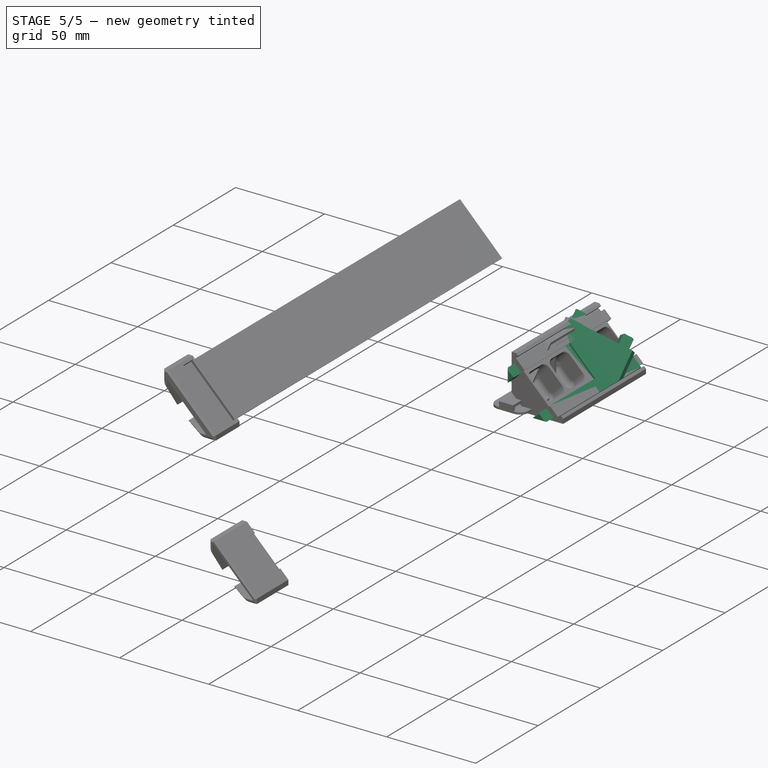
[diagram: stage 5 of 5 — iso view after this stage's code; geometry added in this stage tinted green]
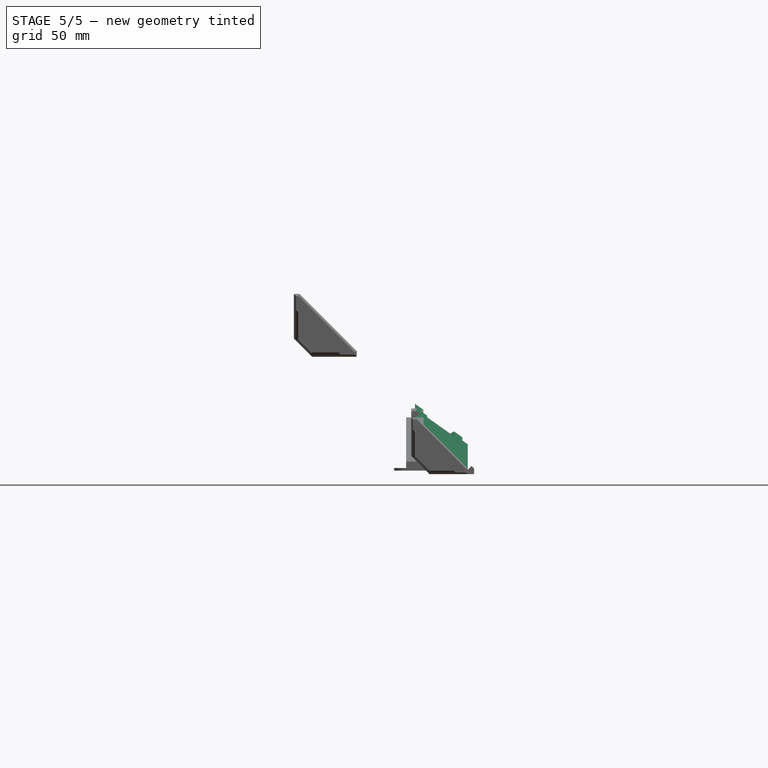
[diagram: stage 5 of 5 — front view after this stage's code; geometry added in this stage tinted green]
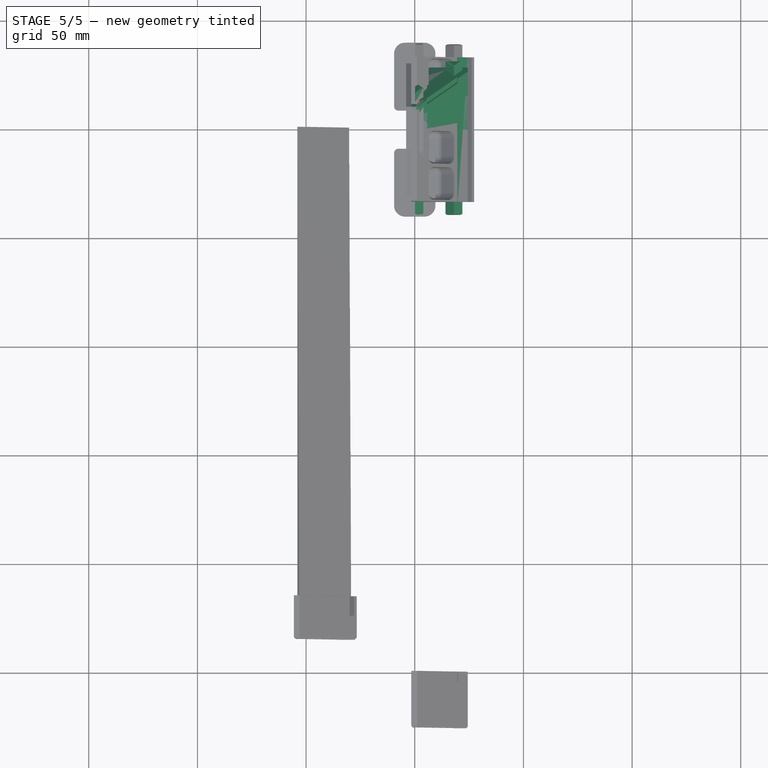
[diagram: stage 5 of 5 — top view after this stage's code; geometry added in this stage tinted green]
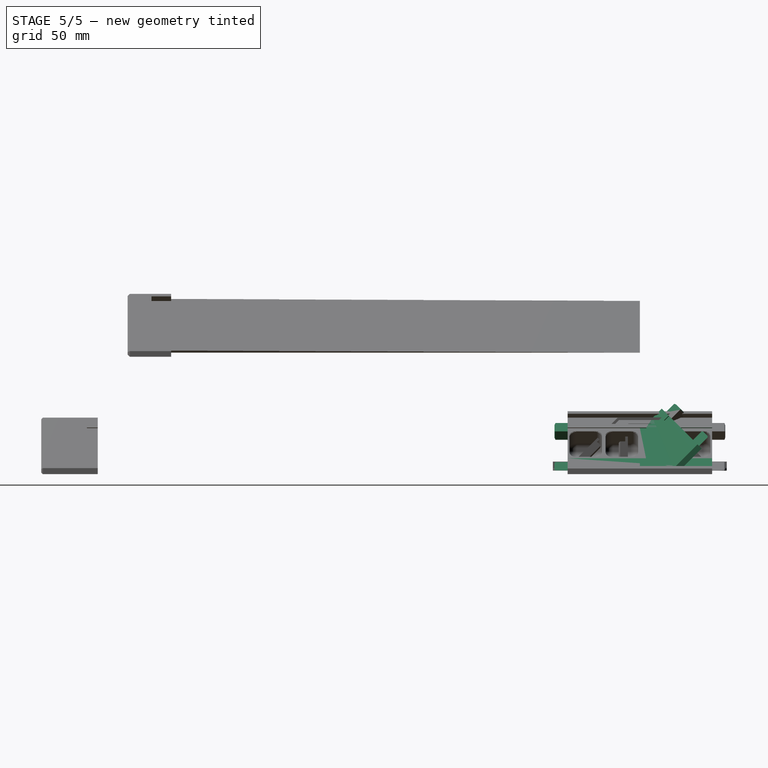
[diagram: stage 5 of 5 — right view after this stage's code; geometry added in this stage tinted green]
FEATURE [PartDesign::SubShapeBinder] Binder002
  BindCopyOnChange = 0
  BindMode = 0
  ClaimChildren = false
  Context = -> Body004 [Binder002.]
  Fuse = false
  MakeFace = true
  OffsetFill = false
  OffsetIntersection = false
  OffsetJoinType = 0
  OffsetOpenResult = false
  PartialLoad = false
  Refine = true
  Relative = true
  Support = -> [Body]
  _Version = 2
FEATURE [Sketcher::SketchObject] Sketch031
  ArcFitTolerance = 1e-06
  AttachmentSupport = -> [Origin008]
  ExternalGeometry = -> [Binder002]
  ExternalTypes = [0,0,0,0,0]
  FullyConstrained = false
  MakeInternals = false
  MapMode = 5
  Placement = pos=(0,0,0) rot=(1,0,0;1.5708rad)
  _ExternalGeoVersion = 1
  sketch-geometry (8):
    g0: LineSegment StartX=-1.6 StartY=6.76188 StartZ=0 EndX=6.76188 EndY=-1.6 EndZ=0
    g1: LineSegment StartX=-1.6 StartY=6.76188 StartZ=0 EndX=-1.6 EndY=24.3952 EndZ=0
    g2: LineSegment StartX=-1.6 StartY=24.3952 StartZ=0 EndX=1.12 EndY=24.3952 EndZ=0
    g3: LineSegment StartX=1.12 StartY=24.3952 StartZ=0 EndX=5.67377 EndY=19.8414 EndZ=0
    g4: LineSegment StartX=5.67377 StartY=19.8414 StartZ=0 EndX=19.8414 EndY=5.67377 EndZ=0
    g5: LineSegment StartX=19.8414 StartY=5.67377 StartZ=0 EndX=24.3952 EndY=1.12 EndZ=0
    g6: LineSegment StartX=24.3952 StartY=1.12 StartZ=0 EndX=24.3952 EndY=-1.6 EndZ=0
    g7: LineSegment StartX=6.76188 StartY=-1.6 StartZ=0 EndX=24.3952 EndY=-1.6 EndZ=0
  constraints (16):
    c: Coincident(g0,g1)
    c: Coincident(g1,g-3)
    c: Vertical(g1)
    c: Coincident(g1,g2)
    c: Coincident(g2,g-4)
    c: Coincident(g2,g3)
    c: Coincident(g3,g-4)
    c: Coincident(g3,g4)
    c: Coincident(g4,g-5)
    c: Coincident(g4,g5)
    c: Coincident(g5,g-5)
    c: Coincident(g5,g6)
    c: Coincident(g6,g-6)
    c: Coincident(g7,g0)
    c: Coincident(g7,g6)
    c: Horizontal(g7)
FEATURE [PartDesign::Pad] Pad012  label="endcap-shape002"
  Direction = (0,-1,2e-16)
  Length = 200
  Length2 = 10
  Profile = -> Sketch031
  ReferenceAxis = -> Sketch031 [N_Axis]
  Refine = true
  Reversed = true
  SideType = 0
  Suppressed = false
  Type = 3
  Type2 = 0
  UpToFace = -> DatumPlane [Plane]
FEATURE [Sketcher::SketchObject] Sketch051
  ArcFitTolerance = 1e-06
  AttachmentOffset = pos=(0,0,-3) rot=(0,0,1;0rad)
  AttachmentSupport = -> [Origin008]
  ExternalGeometry = -> [Binder002]
  ExternalTypes = [0,0,0,0]
  FullyConstrained = true
  MakeInternals = false
  MapMode = 5
  Placement = pos=(0,3,-7e-16) rot=(1,0,0;1.5708rad)
  _ExternalGeoVersion = 1
  sketch-geometry (6):
    g0: LineSegment StartX=19.8414 StartY=5.67377 StartZ=0 EndX=19.5564 EndY=5.38877 EndZ=0
    g1: LineSegment StartX=19.5564 StartY=5.38877 StartZ=0 EndX=19.5564 EndY=4.83877 EndZ=0
    g2: LineSegment StartX=19.5564 StartY=4.83877 StartZ=0 EndX=4.83877 EndY=19.5564 EndZ=0
    g3: LineSegment StartX=4.83877 StartY=19.5564 StartZ=0 EndX=5.38877 EndY=19.5564 EndZ=0
    g4: LineSegment StartX=5.38877 StartY=19.5564 StartZ=0 EndX=5.67377 EndY=19.8414 EndZ=0
    g5: LineSegment StartX=5.67377 StartY=19.8414 StartZ=0 EndX=19.8414 EndY=5.67377 EndZ=0
  constraints (12):
    c: Coincident(g-5,g0)
    c: Coincident(g0,g-6)
    c: Coincident(g0,g1)
    c: Coincident(g1,g-6)
    c: Coincident(g1,g2)
    c: Coincident(g2,g-4)
    c: Coincident(g2,g3)
    c: Coincident(g3,g-4)
    c: Coincident(g3,g4)
    c: Coincident(g4,g-3)
    c: Coincident(g4,g5)
    c: Coincident(g5,g0)
FEATURE [PartDesign::Pocket] Pocket014
  BaseFeature = -> Pad012
  Direction = (0,1,-2e-16)
  Length = 5
  Length2 = 5
  Profile = -> Sketch051
  ReferenceAxis = -> Sketch051 [N_Axis]
  Refine = true
  Reversed = true
  SideType = 0
  Suppressed = false
  Type = 1
  Type2 = 0
FEATURE [PartDesign::Pad] Pad014  label="mating-pin003"
  BaseFeature = -> Pocket014
  Direction = (0,-1,0)
  Length = 6
  Length2 = 10
  Profile = -> Sketch033
  ReferenceAxis = -> Sketch033 [N_Axis]
  Refine = true
  SideType = 0
  Suppressed = false
  Type = 0
  Type2 = 0
FEATURE [PartDesign::Chamfer] Chamfer006  label="mating-pin-chamfer003"
  Angle = 45
  Base = -> Pad014 [Edge45,Edge47,Edge53,Edge48,Edge51,Edge54]
  BaseFeature = -> Pad014
  ChamferType = 0
  FlipDirection = false
  Refine = true
  Size = 0.4
  Size2 = 1
  SupportTransform = false
  Suppressed = false
  UseAllEdges = false
FEATURE [PartDesign::Mirrored] Mirrored
  BaseFeature = -> Chamfer006
  MirrorPlane = -> DatumPlane
  Originals = -> [Pad012,Pad014,Chamfer006]
  Refine = true
  Suppressed = false
  TransformMode = 1
FEATURE [Sketcher::SketchObject] Sketch062
  ArcFitTolerance = 1e-06
  AttachmentSupport = -> [Pad015]
  ExternalGeometry = -> [Pad015]
  ExternalTypes = [0]
  FullyConstrained = true
  MakeInternals = false
  MapMode = 5
  Placement = pos=(0,1.7e-15,0) rot=(-1,0,0;1.5708rad)
  _ExternalGeoVersion = 0
  expr: Constraints[15] = <<globals001>>.inner_wall_thickness
  expr: Constraints[16] = <<globals001>>.inner_wall_thickness
  expr: Constraints[17] = <<globals001>>.inner_wall_thickness
  expr: Constraints[7] = <<globals001>>.inner_wall_thickness
  sketch-geometry (6):
    g0: LineSegment StartX=0 StartY=-13.93 StartZ=0 EndX=4.10122 EndY=-18.0312 EndZ=0
    g1: LineSegment StartX=4.10122 StartY=-18.0312 StartZ=0 EndX=0 EndY=-22.1324 EndZ=0
    g2: LineSegment StartX=0 StartY=-22.1324 StartZ=0 EndX=0 EndY=-13.93 EndZ=0
    g3: LineSegment StartX=13.93 StartY=0 StartZ=0 EndX=18.0312 EndY=-4.10122 EndZ=0
    g4: LineSegment StartX=18.0312 StartY=-4.10122 StartZ=0 EndX=22.1324 EndY=0 EndZ=0
    g5: LineSegment StartX=22.1324 StartY=0 StartZ=0 EndX=13.93 EndY=0 EndZ=0
  constraints (18):
    c: PointOnObject(g0,g-2)
    c: Coincident(g0,g1)
    c: PointOnObject(g1,g-2)
    c: Coincident(g1,g2)
    c: Coincident(g2,g0)
    c: Parallel(g-4,g0)
    c: Parallel(g1,g-3)
    c: Distance(g-3,g1) = 1.6
    c: PointOnObject(g3,g-1)
    c: Coincident(g3,g4)
    c: PointOnObject(g4,g-1)
    c: Coincident(g4,g5)
    c: Coincident(g5,g3)
    c: Parallel(g3,g-7)
    c: Parallel(g4,g-6)
    c: Distance(g3,g-7) = 1.6
    c: Distance(g-6,g4) = 1.6
    c: Distance(g0,g-4) = 1.6
FEATURE [Sketcher::SketchObject] Sketch063
  ArcFitTolerance = 1e-06
  AttachmentOffset = pos=(0,0,33.26) rot=(0,0,1;0rad)
  ExternalTypes = [0]
  FullyConstrained = true
  MakeInternals = false
  MapMode = 5
  Placement = pos=(0,-33.26,7.4e-15) rot=(1,0,0;1.5708rad)
  _ExternalGeoVersion = 0
  expr: .AttachmentOffset.Base.z = <<globals001>>.led_cell_width * <<globals001>>.led_count
  expr: Constraints[14] = <<globals001>>.inner_wall_thickness
  expr: Constraints[15] = <<globals001>>.inner_wall_thickness
  expr: Constraints[16] = <<globals001>>.inner_wall_thickness
  expr: Constraints[17] = <<globals001>>.inner_wall_thickness
  expr: Constraints[30] = <<globals001>>.gap / 2
  expr: Constraints[31] = <<globals001>>.gap / 2
  expr: Constraints[32] = <<globals001>>.gap / 2
  expr: Constraints[33] = <<globals001>>.gap / 2
  expr: Constraints[34] = <<globals001>>.gap / 2
  expr: Constraints[35] = <<globals001>>.gap / 2
  sketch-geometry (12):
    g0: LineSegment [constr] StartX=0 StartY=22.1324 StartZ=0 EndX=4.10122 EndY=18.0312 EndZ=0
    g1: LineSegment [constr] StartX=4.10122 StartY=18.0312 StartZ=0 EndX=0 EndY=13.93 EndZ=0
    g2: LineSegment [constr] StartX=0 StartY=13.93 StartZ=0 EndX=0 EndY=22.1324 EndZ=0
    g3: LineSegment [constr] StartX=13.93 StartY=0 StartZ=0 EndX=18.0312 EndY=4.10122 EndZ=0
    g4: LineSegment [constr] StartX=18.0312 StartY=4.10122 StartZ=0 EndX=22.1324 EndY=0 EndZ=0
    g5: LineSegment [constr] StartX=22.1324 StartY=0 StartZ=0 EndX=13.93 EndY=0 EndZ=0
    g6: LineSegment StartX=0.1 StartY=21.891 StartZ=0 EndX=0.1 EndY=14.1714 EndZ=0
    g7: LineSegment StartX=0.1 StartY=14.1714 StartZ=0 EndX=3.9598 EndY=18.0312 EndZ=0
    g8: LineSegment StartX=3.9598 StartY=18.0312 StartZ=0 EndX=0.1 EndY=21.891 EndZ=0
    g9: LineSegment StartX=14.1714 StartY=0.1 StartZ=0 EndX=18.0312 EndY=3.9598 EndZ=0
    g10: LineSegment StartX=18.0312 StartY=3.9598 StartZ=0 EndX=21.891 EndY=0.1 EndZ=0
    g11: LineSegment StartX=21.891 StartY=0.1 StartZ=0 EndX=14.1714 EndY=0.1 EndZ=0
  constraints (36):
    c: PointOnObject(g0,g-2)
    c: Coincident(g0,g1)
    c: Coincident(g1,g2)
    c: Coincident(g2,g0)
    c: Vertical(g2)
    c: PointOnObject(g3,g-1)
    c: Coincident(g3,g4)
    c: PointOnObject(g4,g-1)
    c: Coincident(g4,g5)
    c: Coincident(g5,g3)
    c: Parallel(g-3,g0)
    c: Parallel(g-4,g1)
    c: Parallel(g3,g-5)
    c: Parallel(g4,g-6)
    c: Distance(g-3,g0) = 1.6
    c: Distance(g-4,g1) = 1.6
    c: Distance(g-5,g3) = 1.6
    c: Distance(g-6,g4) = 1.6
    c: Vertical(g6)
    c: Coincident(g6,g7)
    c: Coincident(g7,g8)
    c: Coincident(g8,g6)
    c: Coincident(g9,g10)
    c: Coincident(g10,g11)
    c: Coincident(g11,g9)
    c: Horizontal(g11)
    c: Parallel(g8,g0)
    c: Parallel(g7,g1)
    c: Parallel(g10,g4)
    c: Parallel(g9,g3)
    c: Distance(g0,g8) = 0.1
    c: Distance(g2,g6) = 0.1
    c: Distance(g1,g7) = 0.1
    c: Distance(g3,g9) = 0.1
    c: Distance(g4,g10) = 0.1
    c: Distance(g5,g11) = 0.1
FEATURE [Sketcher::SketchObject] Sketch064
  ArcFitTolerance = 1e-06
  ExternalGeometry = -> [Pad015]
  ExternalTypes = [0]
  FullyConstrained = false
  MakeInternals = false
  MapMode = 5
  Placement = pos=(12.1976,2.7e-15,12.1976) rot=(0.382683,0,0.92388;3.14159rad)
  _ExternalGeoVersion = 1
  expr: Constraints[20] = <<globals001>>.led_cell_width
  sketch-geometry (8):
    g0: LineSegment StartX=8.25 StartY=0 StartZ=0 EndX=8.25 EndY=0.8 EndZ=0
    g1: LineSegment StartX=8.25 StartY=0.8 StartZ=0 EndX=-8.25 EndY=0.8 EndZ=0
    g2: LineSegment StartX=-8.25 StartY=0.8 StartZ=0 EndX=-8.25 EndY=0 EndZ=0
    g3: LineSegment StartX=-8.25 StartY=0 StartZ=0 EndX=8.25 EndY=0 EndZ=0
    g4: LineSegment StartX=8.25 StartY=15.83 StartZ=0 EndX=8.25 EndY=16.63 EndZ=0
    g5: LineSegment StartX=8.25 StartY=16.63 StartZ=0 EndX=-8.25 EndY=16.63 EndZ=0
    g6: LineSegment StartX=-8.25 StartY=16.63 StartZ=0 EndX=-8.25 EndY=15.83 EndZ=0
    g7: LineSegment StartX=-8.25 StartY=15.83 StartZ=0 EndX=8.25 EndY=15.83 EndZ=0
  constraints (21):
    c: Coincident(g0,g1)
    c: Coincident(g1,g2)
    c: Coincident(g2,g3)
    c: Coincident(g3,g0)
    c: Vertical(g0)
    c: Vertical(g2)
    c: Horizontal(g1)
    c: Horizontal(g3)
    c: DistanceY(g0,g0) = 0.8
    c: Coincident(g4,g5)
    c: Coincident(g5,g6)
    c: Coincident(g6,g7)
    c: Coincident(g7,g4)
    c: Vertical(g4)
    c: Vertical(g6)
    c: Horizontal(g5)
    c: Horizontal(g7)
    c: Equal(g0,g4)
    c: DistanceX(g5,g5) = 16.5
    c: PointOnObject(g0,g-1)
    c: Distance(g3,g5) = 16.63
FEATURE [PartDesign::Pad] Pad016  label="divider-wall001"
  BaseFeature = -> Pad015
  Direction = (0.707107,0,0.707107)
  Length = 1.6
  Length2 = 10
  Placement = pos=(0,0,0) rot=(1,0,0;1.5708rad)
  Profile = -> Sketch064
  ReferenceAxis = -> Sketch064 [N_Axis]
  Refine = true
  Reversed = true
  SideType = 0
  Suppressed = false
  Type = 2
  Type2 = 0
FEATURE [PartDesign::LinearPattern] LinearPattern004  label="wall-repeat001"
  BaseFeature = -> Pad016
  Direction = -> Y_Axis005
  Direction2 = -> Sketch064 [H_Axis]
  Length = 16.63
  Length2 = 100
  Mode = 1
  Mode2 = 0
  Occurrences = 2
  Occurrences2 = 1
  Offset = 16.63
  Offset2 = 100
  Originals = -> [Pad016]
  Placement = pos=(0,0,0) rot=(1,0,0;1.5708rad)
  Refine = true
  Reversed = true
  Reversed2 = false
  SpacingPattern = [16.63]
  SpacingPattern2 = [0]
  Spacings = [-1]
  Suppressed = false
  TransformMode = 0
  expr: Occurrences = <<globals001>>.led_count
  expr: Offset = <<globals001>>.led_cell_width
FEATURE [Sketcher::SketchObject] Sketch061
  ArcFitTolerance = 1e-06
  ExternalGeometry = -> [LinearPattern004]
  ExternalTypes = [0,0]
  FullyConstrained = true
  MakeInternals = false
  MapMode = 5
  Placement = pos=(3.71231,8e-16,3.71231) rot=(0.382683,0,0.92388;3.14159rad)
  _ExternalGeoVersion = 0
  sketch-geometry (8):
    g0: LineSegment StartX=-2.7 StartY=11.015 StartZ=0 EndX=-2.7 EndY=5.615 EndZ=0
    g1: LineSegment StartX=-2.7 StartY=5.615 StartZ=0 EndX=2.7 EndY=5.615 EndZ=0
    g2: LineSegment StartX=2.7 StartY=5.615 StartZ=0 EndX=2.7 EndY=11.015 EndZ=0
    g3: LineSegment StartX=2.7 StartY=11.015 StartZ=0 EndX=-2.7 EndY=11.015 EndZ=0
    g4: LineSegment [constr] StartX=-2.7 StartY=11.015 StartZ=0 EndX=-5.25 EndY=15.83 EndZ=0
    g5: LineSegment [constr] StartX=2.7 StartY=5.615 StartZ=0 EndX=5.25 EndY=0.8 EndZ=0
    g6: LineSegment [constr] StartX=2.7 StartY=11.015 StartZ=0 EndX=5.25 EndY=15.83 EndZ=0
    g7: LineSegment [constr] StartX=-2.7 StartY=5.615 StartZ=0 EndX=-5.25 EndY=0.8 EndZ=0
  constraints (20):
    c: Coincident(g0,g1)
    c: Coincident(g1,g2)
    c: Coincident(g2,g3)
    c: Coincident(g3,g0)
    c: Vertical(g0)
    c: Vertical(g2)
    c: Horizontal(g1)
    c: Horizontal(g3)
    c: DistanceX(g3,g3) = 5.4
    c: Equal(g3,g0)
    c: Coincident(g4,g0)
    c: Coincident(g5,g1)
    c: Coincident(g6,g2)
    c: Coincident(g7,g0)
    c: Equal(g4,g7)
    c: Coincident(g7,g-3)
    c: Coincident(g5,g-4)
    c: Coincident(g4,g-3)
    c: Coincident(g-4,g6)
    c: Equal(g7,g6)
FEATURE [PartDesign::Pocket] Pocket015  label="led-enclosure001"
  BaseFeature = -> LinearPattern004
  Direction = (-0.707107,0,-0.707107)
  Length = 5
  Length2 = 5
  Placement = pos=(0,0,0) rot=(1,0,0;1.5708rad)
  Profile = -> Sketch061
  ReferenceAxis = -> Sketch061 [N_Axis]
  Refine = true
  SideType = 0
  Suppressed = false
  Type = 1
  Type2 = 0
FEATURE [PartDesign::LinearPattern] LinearPattern003  label="led-enclosure-linear-pattern001"
  BaseFeature = -> Pocket015
  Direction = -> Y_Axis005
  Direction2 = -> Sketch061 [H_Axis]
  Length = 16.63
  Length2 = 100
  Mode = 1
  Mode2 = 0
  Occurrences = 2
  Occurrences2 = 1
  Offset = 16.63
  Offset2 = 100
  Originals = -> [Pocket015]
  Placement = pos=(0,0,0) rot=(1,0,0;1.5708rad)
  Refine = true
  Reversed = true
  Reversed2 = false
  SpacingPattern = [16.63]
  SpacingPattern2 = [0]
  Spacings = [-1]
  Suppressed = false
  TransformMode = 0
  expr: Occurrences = <<globals001>>.led_count
  expr: Offset = <<globals001>>.led_cell_width
FEATURE [PartDesign::Pocket] Pocket016  label="mating-hole001"
  BaseFeature = -> LinearPattern003
  Direction = (0,-1,-2e-16)
  Length = 7.5
  Length2 = 5
  Placement = pos=(0,0,0) rot=(1,0,0;1.5708rad)
  Profile = -> Sketch062
  ReferenceAxis = -> Sketch062 [N_Axis]
  Refine = true
  SideType = 0
  Suppressed = false
  Type = 0
  Type2 = 0
FEATURE [PartDesign::Pad] Pad017  label="mating-pin004"
  BaseFeature = -> Pocket016
  Direction = (0,-1,0)
  Length = 6
  Length2 = 10
  Placement = pos=(0,0,0) rot=(1,0,0;1.5708rad)
  Profile = -> Sketch063
  ReferenceAxis = -> Sketch063 [N_Axis]
  Refine = true
  SideType = 0
  Suppressed = false
  Type = 0
  Type2 = 0
FEATURE [PartDesign::Chamfer] Chamfer014  label="mating-pin-chamfer004"
  Angle = 45
  Base = -> Pad017 [Edge156,Edge153,Edge155,Edge150,Edge149,Edge147]
  BaseFeature = -> Pad017
  ChamferType = 0
  FlipDirection = false
  Placement = pos=(0,0,0) rot=(1,0,0;1.5708rad)
  Refine = true
  Size = 0.4
  Size2 = 1
  SupportTransform = false
  Suppressed = false
  UseAllEdges = false
FEATURE [PartDesign::Chamfer] Chamfer015  label="mating-hole-chamfer001"
  Angle = 45
  Base = -> Chamfer014 [Edge116,Edge115,Edge117,Edge118,Edge119,Edge120]
  BaseFeature = -> Chamfer014
  ChamferType = 0
  FlipDirection = false
  Placement = pos=(0,0,0) rot=(1,0,0;1.5708rad)
  Refine = true
  Size = 0.4
  Size2 = 1
  SupportTransform = false
  Suppressed = false
  UseAllEdges = false
FEATURE [PartDesign::Fillet] Fillet001
  Base = -> Chamfer015 [Edge122,Edge123,Edge130,Edge195,Edge131,Edge121,Edge127,Edge126,Edge128,Edge129,Edge132,Edge196,Edge125,Edge124]
  BaseFeature = -> Chamfer015
  Placement = pos=(0,0,0) rot=(1,0,0;1.5708rad)
  Radius = 3
  Refine = true
  SupportTransform = false
  Suppressed = false
  UseAllEdges = false
FEATURE [PartDesign::LinearPattern] LinearPattern005
  BaseFeature = -> Fillet001
  Direction = -> Y_Axis005
  Direction2 = -> X_Axis005
  Length = 16.63
  Length2 = 100
  Mode = 0
  Mode2 = 0
  Occurrences = 2
  Occurrences2 = 1
  Offset = 16.63
  Offset2 = 100
  Originals = -> [Fillet001]
  Placement = pos=(0,0,0) rot=(1,0,0;1.5708rad)
  Refine = true
  Reversed = true
  Reversed2 = false
  SpacingPattern = [0]
  SpacingPattern2 = [0]
  Spacings = [-1]
  Suppressed = false
  TransformMode = 0
  expr: Length = <<globals001>>.led_cell_width * (<<globals001>>.led_count - 1)
  expr: Occurrences = <<globals001>>.led_count
FEATURE [Sketcher::SketchObject] Sketch065
  ArcFitTolerance = 1e-06
  AttachmentSupport = -> [Origin010]
  ExternalTypes = [0,0,0,0]
  FullyConstrained = true
  MakeInternals = false
  MapMode = 5
  Placement = pos=(0,0,0) rot=(1,0,0;1.5708rad)
  _ExternalGeoVersion = 1
  sketch-geometry (6):
    g0: LineSegment StartX=-1.6 StartY=10.0673 StartZ=0 EndX=-1.6 EndY=9.02462 EndZ=0
    g1: LineSegment StartX=-1.6 StartY=9.02462 StartZ=0 EndX=-2.12132 EndY=9.54594 EndZ=0
    g2: LineSegment StartX=-2.12132 StartY=9.54594 StartZ=0 EndX=-1.6 EndY=10.0673 EndZ=0
    g3: LineSegment StartX=9.02462 StartY=-1.6 StartZ=0 EndX=10.0673 EndY=-1.6 EndZ=0
    g4: LineSegment StartX=10.0673 StartY=-1.6 StartZ=0 EndX=9.54594 EndY=-2.12132 EndZ=0
    g5: LineSegment StartX=9.54594 StartY=-2.12132 StartZ=0 EndX=9.02462 EndY=-1.6 EndZ=0
  constraints (12):
    c: Coincident(g-3,g0)
    c: Coincident(g0,g-4)
    c: Coincident(g0,g1)
    c: Coincident(g1,g-4)
    c: Coincident(g1,g2)
    c: Coincident(g2,g0)
    c: Coincident(g-5,g3)
    c: Coincident(g3,g-6)
    c: Coincident(g3,g4)
    c: Coincident(g4,g-6)
    c: Coincident(g4,g5)
    c: Coincident(g5,g3)
FEATURE [PartDesign::Pocket] Pocket017
  BaseFeature = -> LinearPattern005
  Direction = (0,1,-2e-16)
  Length = 81
  Length2 = 5
  Placement = pos=(0,0,0) rot=(1,0,0;1.5708rad)
  Profile = -> Sketch065
  ReferenceAxis = -> Sketch065 [N_Axis]
  Refine = true
  Reversed = true
  SideType = 0
  Suppressed = false
  Type = 1
  Type2 = 0
FEATURE [Spreadsheet::Sheet] Spreadsheet001  label="globals001"
  cells = A1='Inner Wall Thickness; B1(inner_wall_thickness)==1.6 mm; A2='Outer Wall Thickness; B2(outer_wall_thickness)==3.2 mm; A3='Gap; B3(gap)==0.2 mm; A4='LED Cell Width; B4(led_cell_width)==16.63 mm; A5='LED Count; B5(led_count)=2
FEATURE [PartDesign::Mirrored] Mirrored001
  BaseFeature = -> Pocket017
  MirrorPlane = -> Pocket017 [Face9]
  Originals = -> [Pocket017]
  Placement = pos=(0,0,0) rot=(1,0,0;1.5708rad)
  Refine = true
  Suppressed = false
  TransformMode = 1
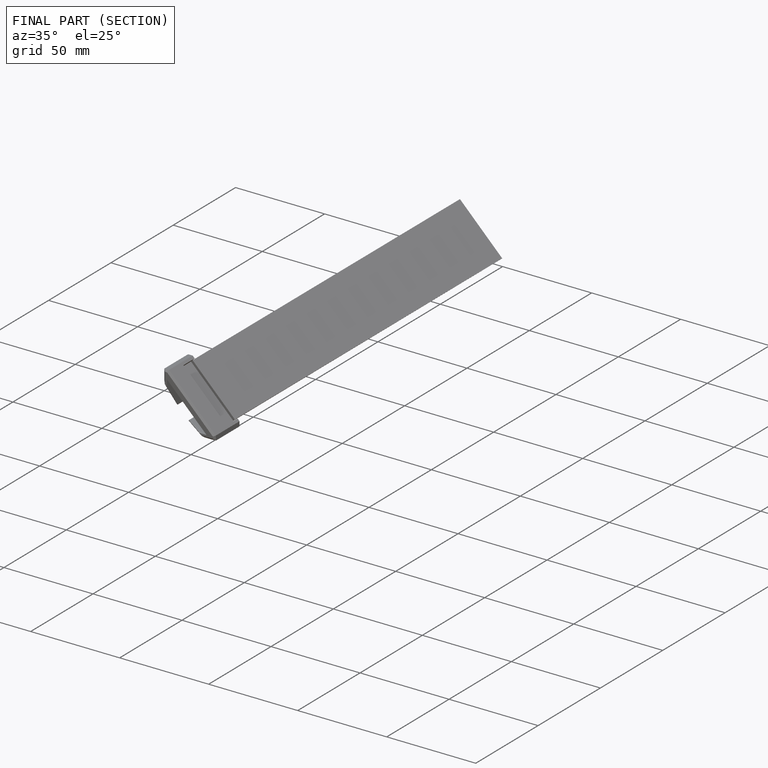
[diagram: finished part — half-section view (interior)]
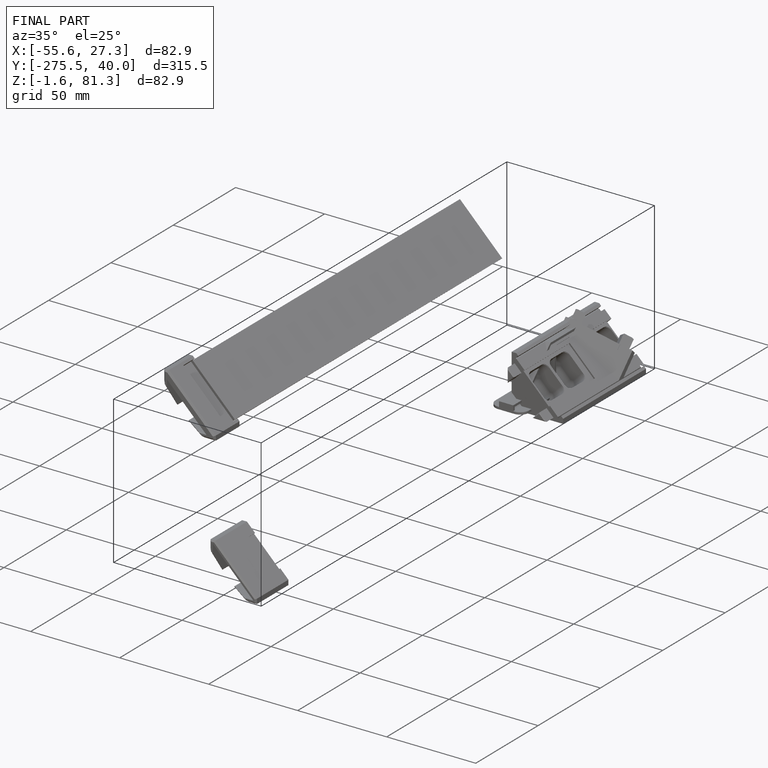
[diagram: finished part — iso view with bounding-box wireframe]
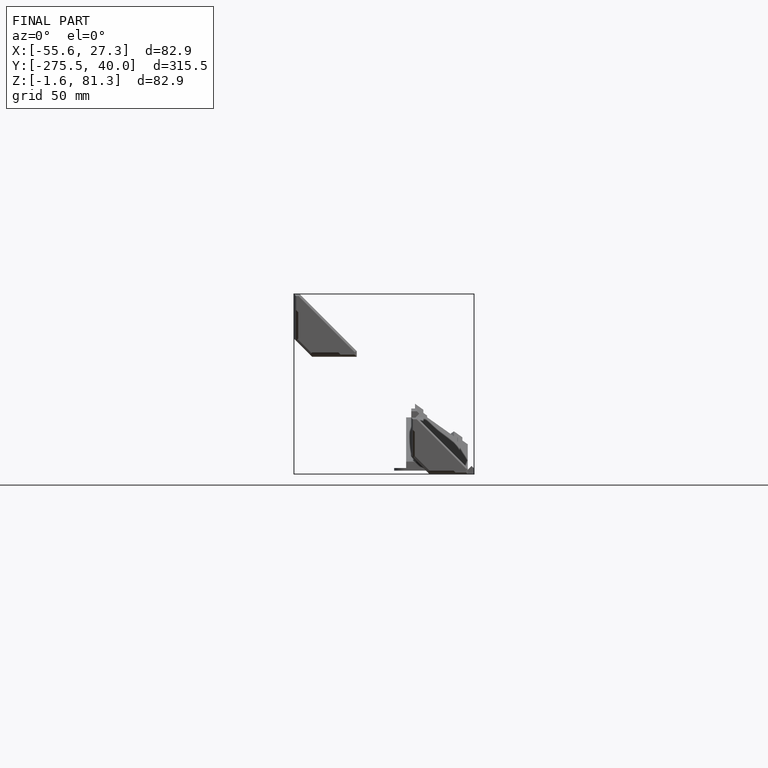
[diagram: finished part — front view with bounding-box wireframe]
